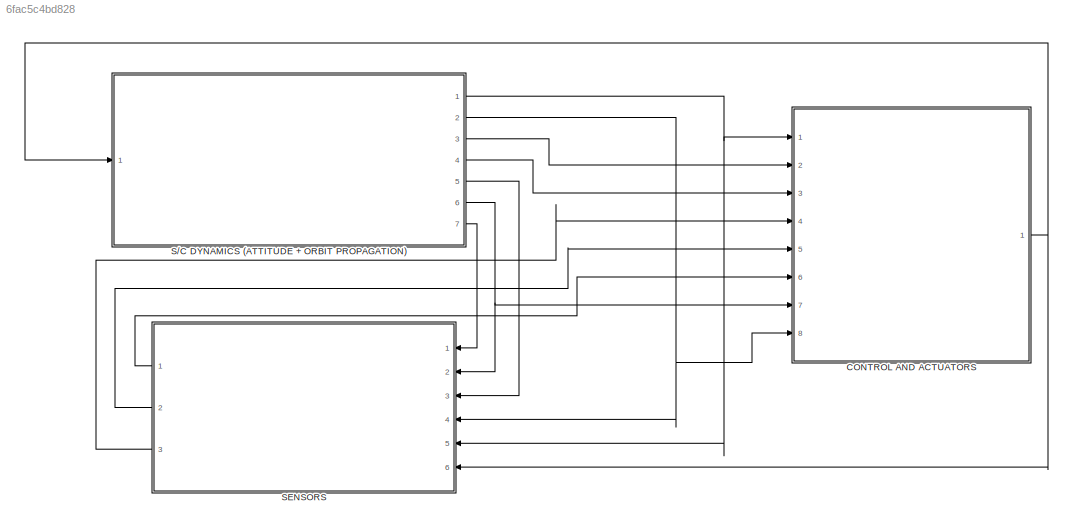
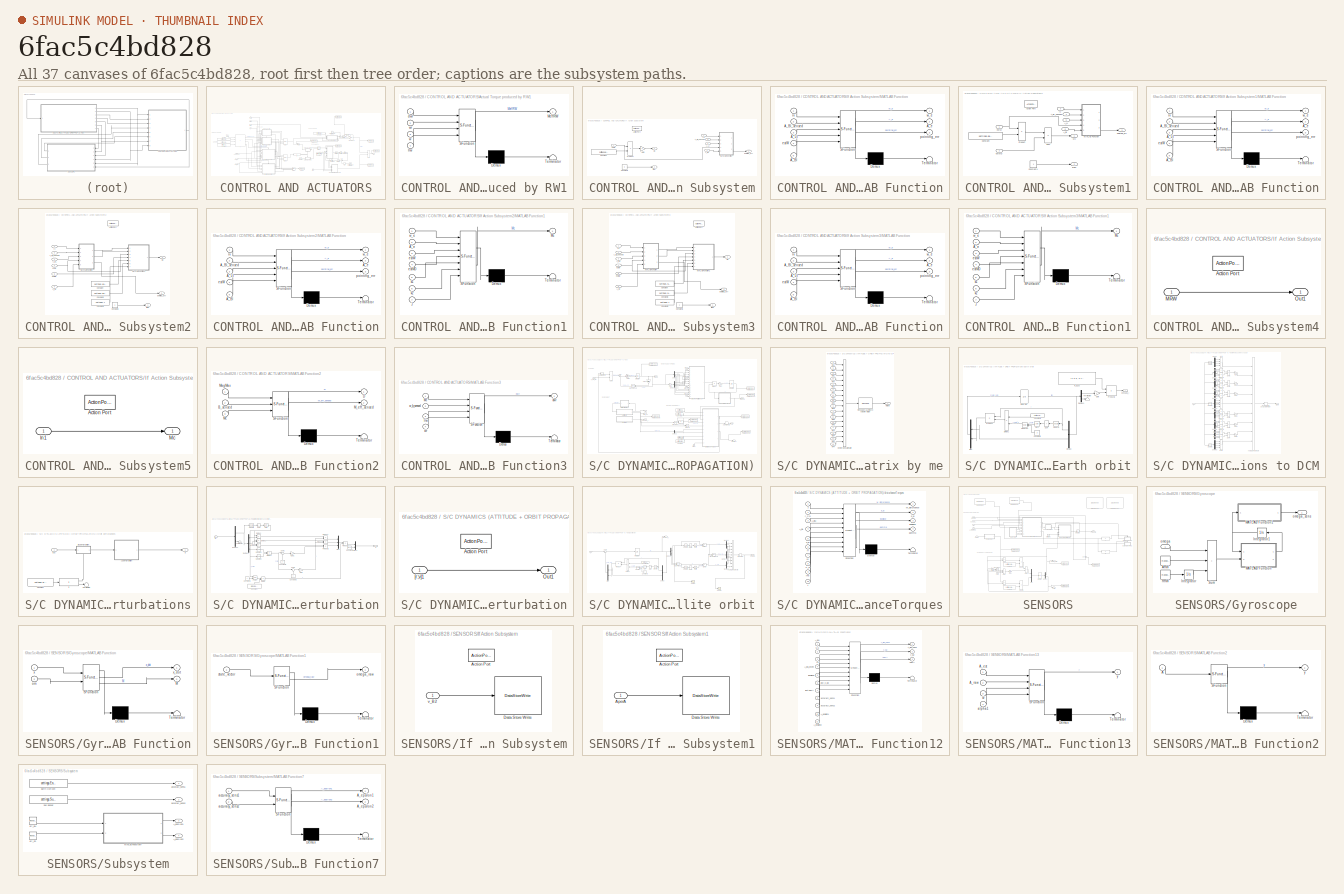
[diagram: thumbnail index - all 37 canvases of the model, root first then tree order]
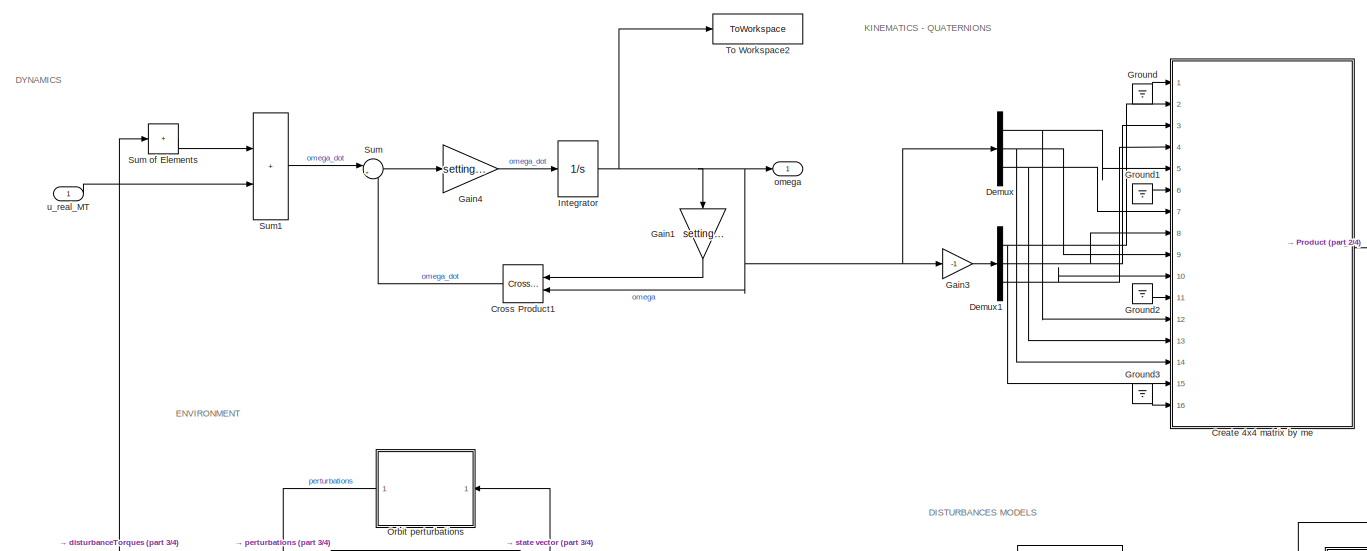
[diagram: S/C DYNAMICS (ATTITUDE + ORBIT PROPAGATION) - part 1/4, top center region]
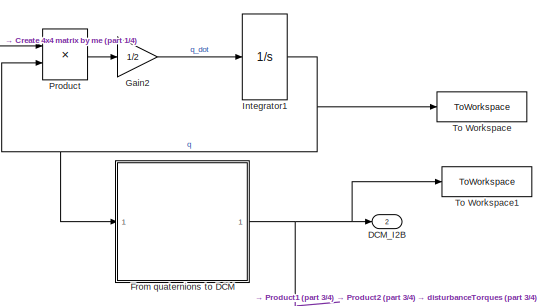
[diagram: S/C DYNAMICS (ATTITUDE + ORBIT PROPAGATION) - part 2/4, middle right region]
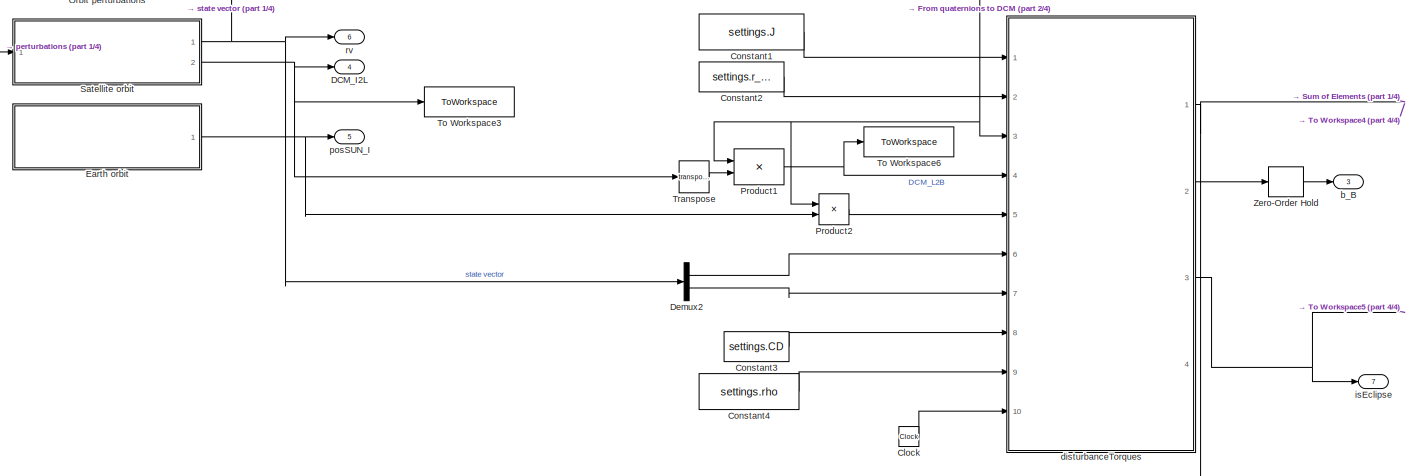
[diagram: S/C DYNAMICS (ATTITUDE + ORBIT PROPAGATION) - part 3/4, bottom center region]
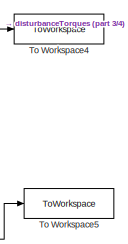
[diagram: S/C DYNAMICS (ATTITUDE + ORBIT PROPAGATION) - part 4/4, bottom right region]
MODEL slx_6fac5c4bd828
KIND model
CONFIG AbsTol = 1e-6
CONFIG EnableMultiTasking = off
CONFIG FixedStep = 0.1
CONFIG MaxStep = auto
CONFIG MinStep = auto
CONFIG RelTol = 1e-6
CONFIG SampleTimeConstraint = Unconstrained
CONFIG Solver = ode23s
CONFIG SolverName = ode23s
CONFIG StartTime = 0.0
CONFIG StopTime = settings.Tsim
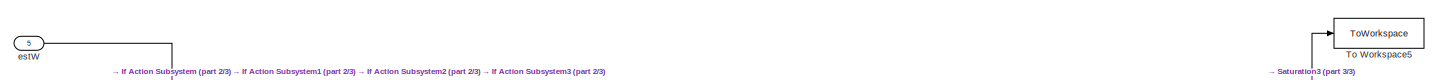
[diagram: CONTROL AND ACTUATORS - part 1/3, top center region]
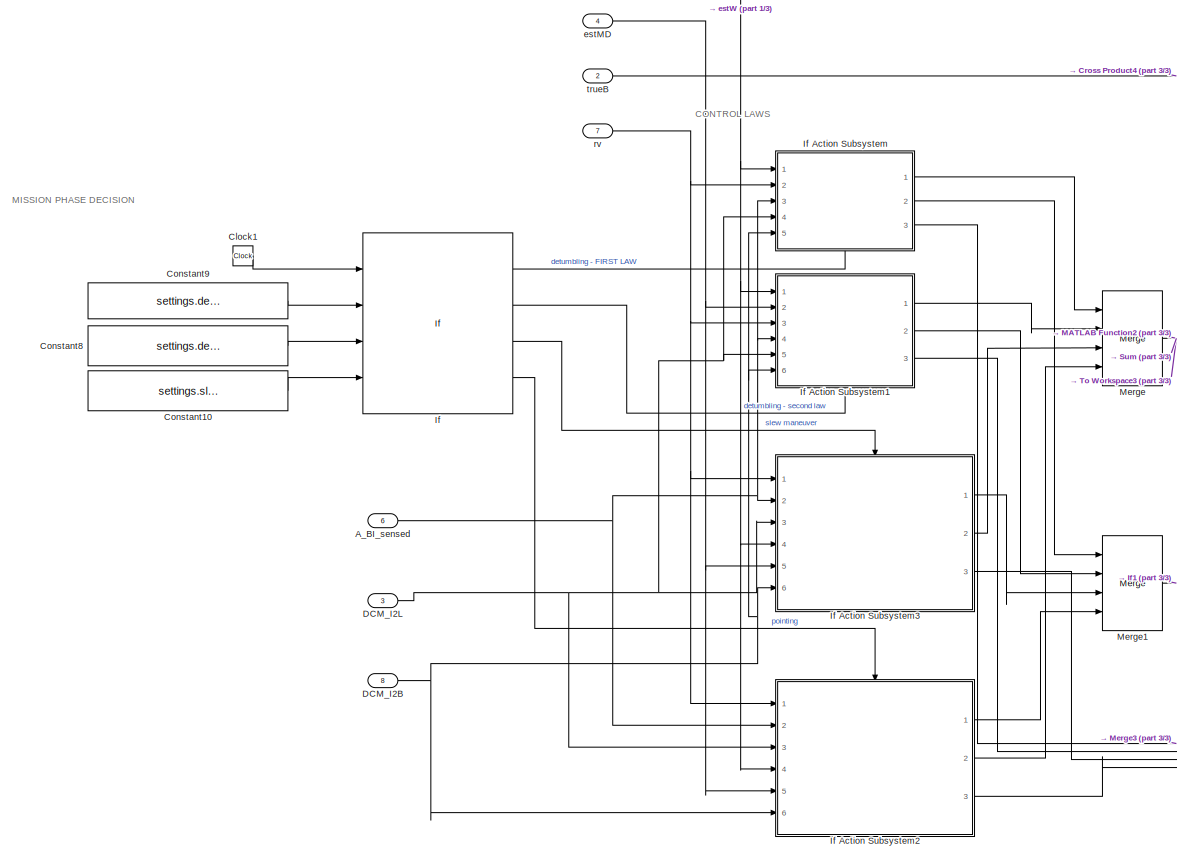
[diagram: CONTROL AND ACTUATORS - part 2/3, left side, full height]
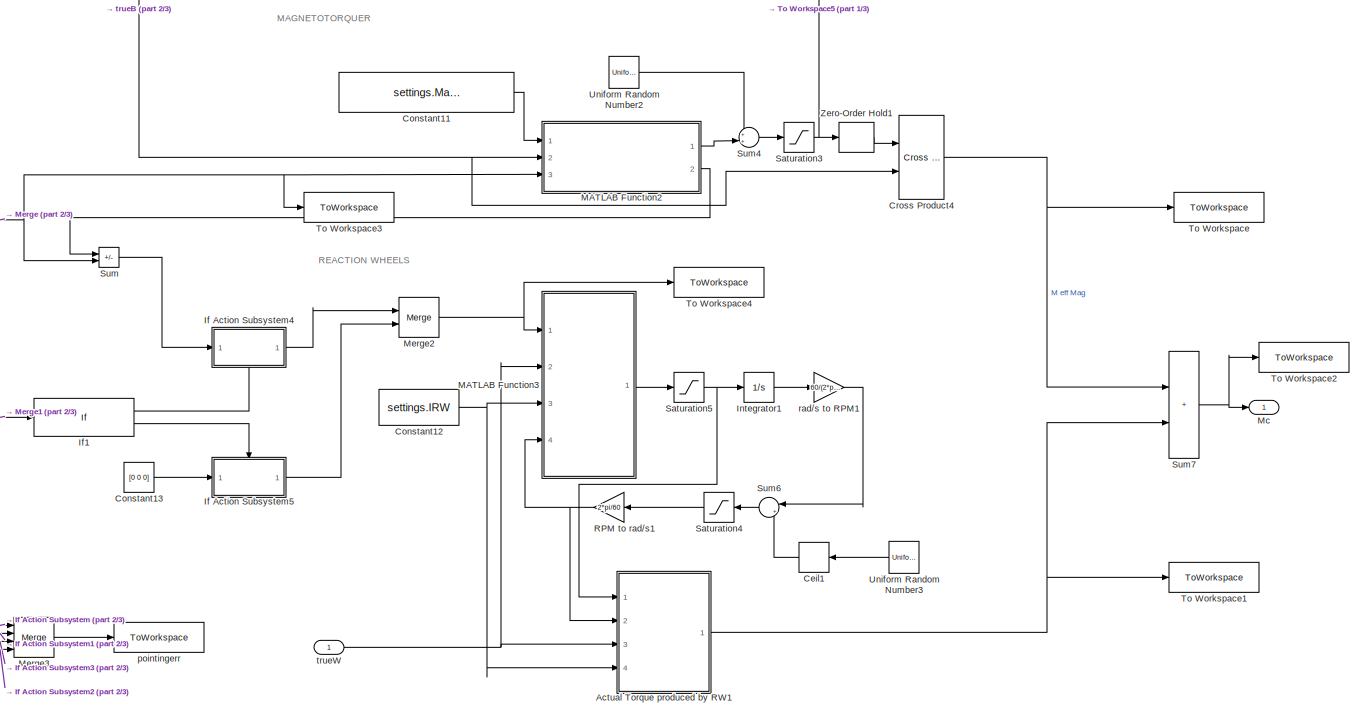
[diagram: CONTROL AND ACTUATORS - part 3/3, right side, full height]
BLOCK [SubSystem] CONTROL AND ACTUATORS
  Ports = [8, 1]
  RequestExecContextInheritance = off
BLOCK [Inport] CONTROL AND ACTUATORS/A_BI_sensed
  Port = 6
BLOCK [SubSystem] CONTROL AND ACTUATORS/Actual Torque produced by RW1
  ErrorFcn = Stateflow.Translate.translate
  PermitHierarchicalResolution = ExplicitOnly
  Ports = [4, 1]
  RequestExecContextInheritance = off
  SFBlockType = MATLAB Function
  TreatAsAtomicUnit = on
BLOCK [Demux] CONTROL AND ACTUATORS/Actual Torque produced by RW1/ Demux 
  Outputs = 1
  Ports = [1, 1]
BLOCK [S-Function] CONTROL AND ACTUATORS/Actual Torque produced by RW1/ SFunction 
  EnableBusSupport = on
  FunctionName = sf_sfun
  PortCounts = [4 2]
  Ports = [4, 2]
  SFcnIsStateOwnerBlock = off
  SFunctionDeploymentMode = off
  Tag = Stateflow S-Function 12
BLOCK [Terminator] CONTROL AND ACTUATORS/Actual Torque produced by RW1/ Terminator 
BLOCK [Inport] CONTROL AND ACTUATORS/Actual Torque produced by RW1/Irw
  Port = 4
BLOCK [Outport] CONTROL AND ACTUATORS/Actual Torque produced by RW1/MeffRW
BLOCK [Inport] CONTROL AND ACTUATORS/Actual Torque produced by RW1/dwr
BLOCK [Inport] CONTROL AND ACTUATORS/Actual Torque produced by RW1/w
  Port = 3
BLOCK [Inport] CONTROL AND ACTUATORS/Actual Torque produced by RW1/wr
  Port = 2
BLOCK [Rounding] CONTROL AND ACTUATORS/Ceil1
  NameLocation = top
  Operator = ceil
BLOCK [Clock] CONTROL AND ACTUATORS/Clock1
BLOCK [Constant] CONTROL AND ACTUATORS/Constant10
  Value = settings.slewManeuverMaxTime
BLOCK [Constant] CONTROL AND ACTUATORS/Constant11
  Value = settings.MagnetoTorquerMaxDipole
BLOCK [Constant] CONTROL AND ACTUATORS/Constant12
  Value = settings.IRW
BLOCK [Constant] CONTROL AND ACTUATORS/Constant13
  Value = [0 0 0]
BLOCK [Constant] CONTROL AND ACTUATORS/Constant8
  Value = settings.detumblingDetumblingMaxTime
BLOCK [Constant] CONTROL AND ACTUATORS/Constant9
  Value = settings.detumblingOnlyMagnMaxTime
BLOCK [Reference] CONTROL AND ACTUATORS/Cross Product4  REF=vrlib/Utilities/Cross Product
  Ports = [2, 1]
  SourceBlock = vrlib/Utilities/Cross Product
  SourceProductBaseCode = SL
  SourceType = Cross Product
BLOCK [Inport] CONTROL AND ACTUATORS/DCM_I2B
  Port = 8
BLOCK [Inport] CONTROL AND ACTUATORS/DCM_I2L
  Port = 3
BLOCK [If] CONTROL AND ACTUATORS/If
  ElseIfExpressions = u1 <= u3 & u1 > u2, u1 <= u4 & u1 > u3
  IfExpression = u1 <= u2
  NumInputs = 4
  Ports = [4, 4]
BLOCK [SubSystem] CONTROL AND ACTUATORS/If Action Subsystem
  NameLocation = top
  Ports = [5, 3, 0, 0, 0, 0, 0, 1]
  RequestExecContextInheritance = off
  TreatAsAtomicUnit = on
BLOCK [Inport] CONTROL AND ACTUATORS/If Action Subsystem/A_BI
  Port = 5
BLOCK [Inport] CONTROL AND ACTUATORS/If Action Subsystem/A_BI_sensed
  Port = 3
BLOCK [Inport] CONTROL AND ACTUATORS/If Action Subsystem/A_LI
  Port = 4
BLOCK [ActionPort] CONTROL AND ACTUATORS/If Action Subsystem/Action Port
  ActionPortLabel = if(u1 <= u2)
BLOCK [Constant] CONTROL AND ACTUATORS/If Action Subsystem/Constant
  Value = settings.detumblingkb
BLOCK [Constant] CONTROL AND ACTUATORS/If Action Subsystem/Constant1
  Value = 0
BLOCK [Gain] CONTROL AND ACTUATORS/If Action Subsystem/Gain
  Gain = -1
BLOCK [SubSystem] CONTROL AND ACTUATORS/If Action Subsystem/MATLAB Function
  ErrorFcn = Stateflow.Translate.translate
  PermitHierarchicalResolution = ExplicitOnly
  Ports = [5, 3]
  RequestExecContextInheritance = off
  SFBlockType = MATLAB Function
  TreatAsAtomicUnit = on
BLOCK [Demux] CONTROL AND ACTUATORS/If Action Subsystem/MATLAB Function/ Demux 
  Outputs = 1
  Ports = [1, 1]
BLOCK [S-Function] CONTROL AND ACTUATORS/If Action Subsystem/MATLAB Function/ SFunction 
  EnableBusSupport = on
  FunctionName = sf_sfun
  PortCounts = [5 4]
  Ports = [5, 4]
  SFcnIsStateOwnerBlock = off
  SFunctionDeploymentMode = off
  Tag = Stateflow S-Function 8
BLOCK [Terminator] CONTROL AND ACTUATORS/If Action Subsystem/MATLAB Function/ Terminator 
BLOCK [Inport] CONTROL AND ACTUATORS/If Action Subsystem/MATLAB Function/A_BI
  Port = 5
BLOCK [Inport] CONTROL AND ACTUATORS/If Action Subsystem/MATLAB Function/A_BI_sensed
  Port = 2
BLOCK [Inport] CONTROL AND ACTUATORS/If Action Subsystem/MATLAB Function/A_LI
  Port = 3
BLOCK [Outport] CONTROL AND ACTUATORS/If Action Subsystem/MATLAB Function/A_e
  Port = 2
BLOCK [Inport] CONTROL AND ACTUATORS/If Action Subsystem/MATLAB Function/estW
  Port = 4
BLOCK [Outport] CONTROL AND ACTUATORS/If Action Subsystem/MATLAB Function/pointing_err
  Port = 3
BLOCK [Inport] CONTROL AND ACTUATORS/If Action Subsystem/MATLAB Function/rv
BLOCK [Outport] CONTROL AND ACTUATORS/If Action Subsystem/MATLAB Function/w_e
BLOCK [Outport] CONTROL AND ACTUATORS/If Action Subsystem/Mc
BLOCK [Product] CONTROL AND ACTUATORS/If Action Subsystem/Product
  Ports = [2, 1]
BLOCK [Inport] CONTROL AND ACTUATORS/If Action Subsystem/estW
BLOCK [Outport] CONTROL AND ACTUATORS/If Action Subsystem/ifRW
  Port = 2
BLOCK [Outport] CONTROL AND ACTUATORS/If Action Subsystem/pointing_err
  Port = 3
BLOCK [Inport] CONTROL AND ACTUATORS/If Action Subsystem/rv
  Port = 2
BLOCK [SubSystem] CONTROL AND ACTUATORS/If Action Subsystem1
  NameLocation = top
  Ports = [6, 3, 0, 0, 0, 0, 0, 1]
  RequestExecContextInheritance = off
  TreatAsAtomicUnit = on
BLOCK [Inport] CONTROL AND ACTUATORS/If Action Subsystem1/A_BI
  Port = 6
BLOCK [Inport] CONTROL AND ACTUATORS/If Action Subsystem1/A_BI_sensed
  Port = 4
BLOCK [Inport] CONTROL AND ACTUATORS/If Action Subsystem1/A_LI
  Port = 5
BLOCK [ActionPort] CONTROL AND ACTUATORS/If Action Subsystem1/Action Port
  ActionPortLabel = elseif(u1 <= u3 & u1 > u2)
BLOCK [Constant] CONTROL AND ACTUATORS/If Action Subsystem1/Constant
  Value = settings.detumblingkp
BLOCK [Constant] CONTROL AND ACTUATORS/If Action Subsystem1/Constant1
BLOCK [SubSystem] CONTROL AND ACTUATORS/If Action Subsystem1/MATLAB Function
  ErrorFcn = Stateflow.Translate.translate
  PermitHierarchicalResolution = ExplicitOnly
  Ports = [5, 3]
  RequestExecContextInheritance = off
  SFBlockType = MATLAB Function
  TreatAsAtomicUnit = on
BLOCK [Demux] CONTROL AND ACTUATORS/If Action Subsystem1/MATLAB Function/ Demux 
  Outputs = 1
  Ports = [1, 1]
BLOCK [S-Function] CONTROL AND ACTUATORS/If Action Subsystem1/MATLAB Function/ SFunction 
  EnableBusSupport = on
  FunctionName = sf_sfun
  PortCounts = [5 4]
  Ports = [5, 4]
  SFcnIsStateOwnerBlock = off
  SFunctionDeploymentMode = off
  Tag = Stateflow S-Function 6
BLOCK [Terminator] CONTROL AND ACTUATORS/If Action Subsystem1/MATLAB Function/ Terminator 
BLOCK [Inport] CONTROL AND ACTUATORS/If Action Subsystem1/MATLAB Function/A_BI
  Port = 5
BLOCK [Inport] CONTROL AND ACTUATORS/If Action Subsystem1/MATLAB Function/A_BI_sensed
  Port = 2
BLOCK [Inport] CONTROL AND ACTUATORS/If Action Subsystem1/MATLAB Function/A_LI
  Port = 3
BLOCK [Outport] CONTROL AND ACTUATORS/If Action Subsystem1/MATLAB Function/A_e
  Port = 2
BLOCK [Inport] CONTROL AND ACTUATORS/If Action Subsystem1/MATLAB Function/estW
  Port = 4
BLOCK [Outport] CONTROL AND ACTUATORS/If Action Subsystem1/MATLAB Function/pointing_err
  Port = 3
BLOCK [Inport] CONTROL AND ACTUATORS/If Action Subsystem1/MATLAB Function/rv
BLOCK [Outport] CONTROL AND ACTUATORS/If Action Subsystem1/MATLAB Function/w_e
BLOCK [Outport] CONTROL AND ACTUATORS/If Action Subsystem1/Mc
BLOCK [Product] CONTROL AND ACTUATORS/If Action Subsystem1/Product
  Ports = [2, 1]
BLOCK [Sum] CONTROL AND ACTUATORS/If Action Subsystem1/Sum
  IconShape = rectangular
  Inputs = --
  Ports = [2, 1]
BLOCK [Inport] CONTROL AND ACTUATORS/If Action Subsystem1/estMD
  Port = 2
BLOCK [Inport] CONTROL AND ACTUATORS/If Action Subsystem1/estW
BLOCK [Outport] CONTROL AND ACTUATORS/If Action Subsystem1/ifRW
  Port = 2
BLOCK [Outport] CONTROL AND ACTUATORS/If Action Subsystem1/pointing_err
  Port = 3
BLOCK [Inport] CONTROL AND ACTUATORS/If Action Subsystem1/rv
  Port = 3
BLOCK [SubSystem] CONTROL AND ACTUATORS/If Action Subsystem2
  Ports = [6, 3, 0, 0, 0, 0, 0, 1]
  RequestExecContextInheritance = off
  TreatAsAtomicUnit = on
BLOCK [Inport] CONTROL AND ACTUATORS/If Action Subsystem2/A_BI
  Port = 6
BLOCK [Inport] CONTROL AND ACTUATORS/If Action Subsystem2/A_BI_sensed
  Port = 2
BLOCK [Inport] CONTROL AND ACTUATORS/If Action Subsystem2/A_I2L
  Port = 3
BLOCK [ActionPort] CONTROL AND ACTUATORS/If Action Subsystem2/Action Port
  ActionPortLabel = else
BLOCK [Constant] CONTROL AND ACTUATORS/If Action Subsystem2/Constant
  Value = settings.earthPointk1
BLOCK [Constant] CONTROL AND ACTUATORS/If Action Subsystem2/Constant1
BLOCK [Constant] CONTROL AND ACTUATORS/If Action Subsystem2/Constant2
  Value = settings.earthPointk2
BLOCK [Constant] CONTROL AND ACTUATORS/If Action Subsystem2/Constant3
  Value = settings.J
BLOCK [SubSystem] CONTROL AND ACTUATORS/If Action Subsystem2/MATLAB Function
  ErrorFcn = Stateflow.Translate.translate
  PermitHierarchicalResolution = ExplicitOnly
  Ports = [5, 3]
  RequestExecContextInheritance = off
  SFBlockType = MATLAB Function
  TreatAsAtomicUnit = on
BLOCK [Demux] CONTROL AND ACTUATORS/If Action Subsystem2/MATLAB Function/ Demux 
  Outputs = 1
  Ports = [1, 1]
BLOCK [S-Function] CONTROL AND ACTUATORS/If Action Subsystem2/MATLAB Function/ SFunction 
  EnableBusSupport = on
  FunctionName = sf_sfun
  PortCounts = [5 4]
  Ports = [5, 4]
  SFcnIsStateOwnerBlock = off
  SFunctionDeploymentMode = off
  Tag = Stateflow S-Function 2
BLOCK [Terminator] CONTROL AND ACTUATORS/If Action Subsystem2/MATLAB Function/ Terminator 
BLOCK [Inport] CONTROL AND ACTUATORS/If Action Subsystem2/MATLAB Function/A_BI
  Port = 5
BLOCK [Inport] CONTROL AND ACTUATORS/If Action Subsystem2/MATLAB Function/A_BI_sensed
  Port = 2
BLOCK [Inport] CONTROL AND ACTUATORS/If Action Subsystem2/MATLAB Function/A_LI
  Port = 3
BLOCK [Outport] CONTROL AND ACTUATORS/If Action Subsystem2/MATLAB Function/A_e
  Port = 2
BLOCK [Inport] CONTROL AND ACTUATORS/If Action Subsystem2/MATLAB Function/estW
  Port = 4
BLOCK [Outport] CONTROL AND ACTUATORS/If Action Subsystem2/MATLAB Function/pointing_err
  Port = 3
BLOCK [Inport] CONTROL AND ACTUATORS/If Action Subsystem2/MATLAB Function/rv
BLOCK [Outport] CONTROL AND ACTUATORS/If Action Subsystem2/MATLAB Function/w_e
BLOCK [SubSystem] CONTROL AND ACTUATORS/If Action Subsystem2/MATLAB Function1
  ErrorFcn = Stateflow.Translate.translate
  PermitHierarchicalResolution = ExplicitOnly
  Ports = [7, 1]
  RequestExecContextInheritance = off
  SFBlockType = MATLAB Function
  TreatAsAtomicUnit = on
BLOCK [Demux] CONTROL AND ACTUATORS/If Action Subsystem2/MATLAB Function1/ Demux 
  Outputs = 1
  Ports = [1, 1]
BLOCK [S-Function] CONTROL AND ACTUATORS/If Action Subsystem2/MATLAB Function1/ SFunction 
  EnableBusSupport = on
  FunctionName = sf_sfun
  PortCounts = [7 2]
  Ports = [7, 2]
  SFcnIsStateOwnerBlock = off
  SFunctionDeploymentMode = off
  Tag = Stateflow S-Function 3
BLOCK [Terminator] CONTROL AND ACTUATORS/If Action Subsystem2/MATLAB Function1/ Terminator 
BLOCK [Inport] CONTROL AND ACTUATORS/If Action Subsystem2/MATLAB Function1/A_e
  Port = 2
BLOCK [Inport] CONTROL AND ACTUATORS/If Action Subsystem2/MATLAB Function1/J
  Port = 7
BLOCK [Outport] CONTROL AND ACTUATORS/If Action Subsystem2/MATLAB Function1/Mc
BLOCK [Inport] CONTROL AND ACTUATORS/If Action Subsystem2/MATLAB Function1/estMD
  Port = 4
BLOCK [Inport] CONTROL AND ACTUATORS/If Action Subsystem2/MATLAB Function1/estW
  Port = 3
BLOCK [Inport] CONTROL AND ACTUATORS/If Action Subsystem2/MATLAB Function1/k1
  Port = 5
BLOCK [Inport] CONTROL AND ACTUATORS/If Action Subsystem2/MATLAB Function1/k2
  Port = 6
BLOCK [Inport] CONTROL AND ACTUATORS/If Action Subsystem2/MATLAB Function1/w_e
BLOCK [Outport] CONTROL AND ACTUATORS/If Action Subsystem2/Mc
  Port = 2
BLOCK [Inport] CONTROL AND ACTUATORS/If Action Subsystem2/estMD
  Port = 5
BLOCK [Inport] CONTROL AND ACTUATORS/If Action Subsystem2/estW
  Port = 4
BLOCK [Outport] CONTROL AND ACTUATORS/If Action Subsystem2/ifRW
BLOCK [Outport] CONTROL AND ACTUATORS/If Action Subsystem2/pointing_err
  Port = 3
BLOCK [Inport] CONTROL AND ACTUATORS/If Action Subsystem2/rv
BLOCK [SubSystem] CONTROL AND ACTUATORS/If Action Subsystem3
  Ports = [6, 3, 0, 0, 0, 0, 0, 1]
  RequestExecContextInheritance = off
  TreatAsAtomicUnit = on
BLOCK [Inport] CONTROL AND ACTUATORS/If Action Subsystem3/A_BI
  Port = 6
BLOCK [Inport] CONTROL AND ACTUATORS/If Action Subsystem3/A_BI_sensed
  Port = 2
BLOCK [Inport] CONTROL AND ACTUATORS/If Action Subsystem3/A_I2L
  Port = 3
BLOCK [ActionPort] CONTROL AND ACTUATORS/If Action Subsystem3/Action Port
  ActionPortLabel = elseif( u1 <= u4 & u1 > u3)
BLOCK [Constant] CONTROL AND ACTUATORS/If Action Subsystem3/Constant
  Value = settings.slewMank1
BLOCK [Constant] CONTROL AND ACTUATORS/If Action Subsystem3/Constant1
BLOCK [Constant] CONTROL AND ACTUATORS/If Action Subsystem3/Constant2
  Value = settings.slewMank2
BLOCK [Constant] CONTROL AND ACTUATORS/If Action Subsystem3/Constant3
  Value = settings.J
BLOCK [SubSystem] CONTROL AND ACTUATORS/If Action Subsystem3/MATLAB Function
  ErrorFcn = Stateflow.Translate.translate
  PermitHierarchicalResolution = ExplicitOnly
  Ports = [5, 3]
  RequestExecContextInheritance = off
  SFBlockType = MATLAB Function
  TreatAsAtomicUnit = on
BLOCK [Demux] CONTROL AND ACTUATORS/If Action Subsystem3/MATLAB Function/ Demux 
  Outputs = 1
  Ports = [1, 1]
BLOCK [S-Function] CONTROL AND ACTUATORS/If Action Subsystem3/MATLAB Function/ SFunction 
  EnableBusSupport = on
  FunctionName = sf_sfun
  PortCounts = [5 4]
  Ports = [5, 4]
  SFcnIsStateOwnerBlock = off
  SFunctionDeploymentMode = off
  Tag = Stateflow S-Function 10
BLOCK [Terminator] CONTROL AND ACTUATORS/If Action Subsystem3/MATLAB Function/ Terminator 
BLOCK [Inport] CONTROL AND ACTUATORS/If Action Subsystem3/MATLAB Function/A_BI
  Port = 5
BLOCK [Inport] CONTROL AND ACTUATORS/If Action Subsystem3/MATLAB Function/A_BI_sensed
  Port = 2
BLOCK [Inport] CONTROL AND ACTUATORS/If Action Subsystem3/MATLAB Function/A_LI
  Port = 3
BLOCK [Outport] CONTROL AND ACTUATORS/If Action Subsystem3/MATLAB Function/A_e
  Port = 2
BLOCK [Inport] CONTROL AND ACTUATORS/If Action Subsystem3/MATLAB Function/estW
  Port = 4
BLOCK [Outport] CONTROL AND ACTUATORS/If Action Subsystem3/MATLAB Function/pointing_err
  Port = 3
BLOCK [Inport] CONTROL AND ACTUATORS/If Action Subsystem3/MATLAB Function/rv
BLOCK [Outport] CONTROL AND ACTUATORS/If Action Subsystem3/MATLAB Function/w_e
BLOCK [SubSystem] CONTROL AND ACTUATORS/If Action Subsystem3/MATLAB Function1
  ErrorFcn = Stateflow.Translate.translate
  PermitHierarchicalResolution = ExplicitOnly
  Ports = [7, 1]
  RequestExecContextInheritance = off
  SFBlockType = MATLAB Function
  TreatAsAtomicUnit = on
BLOCK [Demux] CONTROL AND ACTUATORS/If Action Subsystem3/MATLAB Function1/ Demux 
  Outputs = 1
  Ports = [1, 1]
BLOCK [S-Function] CONTROL AND ACTUATORS/If Action Subsystem3/MATLAB Function1/ SFunction 
  EnableBusSupport = on
  FunctionName = sf_sfun
  PortCounts = [7 2]
  Ports = [7, 2]
  SFcnIsStateOwnerBlock = off
  SFunctionDeploymentMode = off
  Tag = Stateflow S-Function 11
BLOCK [Terminator] CONTROL AND ACTUATORS/If Action Subsystem3/MATLAB Function1/ Terminator 
BLOCK [Inport] CONTROL AND ACTUATORS/If Action Subsystem3/MATLAB Function1/A_e
  Port = 2
BLOCK [Inport] CONTROL AND ACTUATORS/If Action Subsystem3/MATLAB Function1/J
  Port = 7
BLOCK [Outport] CONTROL AND ACTUATORS/If Action Subsystem3/MATLAB Function1/Mc
BLOCK [Inport] CONTROL AND ACTUATORS/If Action Subsystem3/MATLAB Function1/estMD
  Port = 4
BLOCK [Inport] CONTROL AND ACTUATORS/If Action Subsystem3/MATLAB Function1/estW
  Port = 3
BLOCK [Inport] CONTROL AND ACTUATORS/If Action Subsystem3/MATLAB Function1/k1
  Port = 5
BLOCK [Inport] CONTROL AND ACTUATORS/If Action Subsystem3/MATLAB Function1/k2
  Port = 6
BLOCK [Inport] CONTROL AND ACTUATORS/If Action Subsystem3/MATLAB Function1/w_e
BLOCK [Outport] CONTROL AND ACTUATORS/If Action Subsystem3/Mc
  Port = 2
BLOCK [Inport] CONTROL AND ACTUATORS/If Action Subsystem3/estMD
  Port = 5
BLOCK [Inport] CONTROL AND ACTUATORS/If Action Subsystem3/estW
  Port = 4
BLOCK [Outport] CONTROL AND ACTUATORS/If Action Subsystem3/ifRW
BLOCK [Outport] CONTROL AND ACTUATORS/If Action Subsystem3/pointing_err
  Port = 3
BLOCK [Inport] CONTROL AND ACTUATORS/If Action Subsystem3/rv
BLOCK [SubSystem] CONTROL AND ACTUATORS/If Action Subsystem4
  NameLocation = top
  Ports = [1, 1, 0, 0, 0, 0, 0, 1]
  RequestExecContextInheritance = off
  TreatAsAtomicUnit = on
BLOCK [ActionPort] CONTROL AND ACTUATORS/If Action Subsystem4/Action Port
  ActionPortLabel = if(u1 > 0)
BLOCK [Inport] CONTROL AND ACTUATORS/If Action Subsystem4/MRW
BLOCK [Outport] CONTROL AND ACTUATORS/If Action Subsystem4/Out1
BLOCK [SubSystem] CONTROL AND ACTUATORS/If Action Subsystem5
  Ports = [1, 1, 0, 0, 0, 0, 0, 1]
  RequestExecContextInheritance = off
  TreatAsAtomicUnit = on
BLOCK [ActionPort] CONTROL AND ACTUATORS/If Action Subsystem5/Action Port
  ActionPortLabel = else
BLOCK [Inport] CONTROL AND ACTUATORS/If Action Subsystem5/In1
BLOCK [Outport] CONTROL AND ACTUATORS/If Action Subsystem5/Mc
BLOCK [If] CONTROL AND ACTUATORS/If1
  Ports = [1, 2]
BLOCK [Integrator] CONTROL AND ACTUATORS/Integrator1
  InitialCondition = [0;0;0]
  NameLocation = top
  Ports = [1, 1]
BLOCK [SubSystem] CONTROL AND ACTUATORS/MATLAB Function2
  ErrorFcn = Stateflow.Translate.translate
  PermitHierarchicalResolution = ExplicitOnly
  Ports = [3, 2]
  RequestExecContextInheritance = off
  SFBlockType = MATLAB Function
  TreatAsAtomicUnit = on
BLOCK [Demux] CONTROL AND ACTUATORS/MATLAB Function2/ Demux 
  Outputs = 1
  Ports = [1, 1]
BLOCK [S-Function] CONTROL AND ACTUATORS/MATLAB Function2/ SFunction 
  EnableBusSupport = on
  FunctionName = sf_sfun
  PortCounts = [3 3]
  Ports = [3, 3]
  SFcnIsStateOwnerBlock = off
  SFunctionDeploymentMode = off
  Tag = Stateflow S-Function 7
BLOCK [Terminator] CONTROL AND ACTUATORS/MATLAB Function2/ Terminator 
BLOCK [Inport] CONTROL AND ACTUATORS/MATLAB Function2/B_sensed
  Port = 2
BLOCK [Outport] CONTROL AND ACTUATORS/MATLAB Function2/D
BLOCK [Outport] CONTROL AND ACTUATORS/MATLAB Function2/M_eff_sensed
  Port = 2
BLOCK [Inport] CONTROL AND ACTUATORS/MATLAB Function2/MagMax
BLOCK [Inport] CONTROL AND ACTUATORS/MATLAB Function2/Mc
  Port = 3
BLOCK [SubSystem] CONTROL AND ACTUATORS/MATLAB Function3
  ErrorFcn = Stateflow.Translate.translate
  PermitHierarchicalResolution = ExplicitOnly
  Ports = [4, 1]
  RequestExecContextInheritance = off
  SFBlockType = MATLAB Function
  TreatAsAtomicUnit = on
BLOCK [Demux] CONTROL AND ACTUATORS/MATLAB Function3/ Demux 
  Outputs = 1
  Ports = [1, 1]
BLOCK [S-Function] CONTROL AND ACTUATORS/MATLAB Function3/ SFunction 
  EnableBusSupport = on
  FunctionName = sf_sfun
  PortCounts = [4 2]
  Ports = [4, 2]
  SFcnIsStateOwnerBlock = off
  SFunctionDeploymentMode = off
  Tag = Stateflow S-Function 13
BLOCK [Terminator] CONTROL AND ACTUATORS/MATLAB Function3/ Terminator 
BLOCK [Inport] CONTROL AND ACTUATORS/MATLAB Function3/Irw
  Port = 3
BLOCK [Inport] CONTROL AND ACTUATORS/MATLAB Function3/Mc
BLOCK [Outport] CONTROL AND ACTUATORS/MATLAB Function3/dwr
BLOCK [Inport] CONTROL AND ACTUATORS/MATLAB Function3/w_b_sensed
  Port = 2
BLOCK [Inport] CONTROL AND ACTUATORS/MATLAB Function3/wr
  Port = 4
BLOCK [Outport] CONTROL AND ACTUATORS/Mc
BLOCK [Merge] CONTROL AND ACTUATORS/Merge
  Inputs = 4
  Ports = [4, 1]
BLOCK [Merge] CONTROL AND ACTUATORS/Merge1
  Inputs = 4
  Ports = [4, 1]
BLOCK [Merge] CONTROL AND ACTUATORS/Merge2
  Ports = [2, 1]
BLOCK [Merge] CONTROL AND ACTUATORS/Merge3
  Inputs = 4
  Ports = [4, 1]
BLOCK [Gain] CONTROL AND ACTUATORS/RPM to rad//s1
  Gain = 2*pi/60
BLOCK [Saturate] CONTROL AND ACTUATORS/Saturation3
  LowerLimit = -settings.MagnetoTorquerMaxDipole
  UpperLimit = settings.MagnetoTorquerMaxDipole
BLOCK [Saturate] CONTROL AND ACTUATORS/Saturation4
  LinearizeAsGain = off
  LowerLimit = -settings.MaxRPM*[1;1;1]
  UpperLimit = settings.MaxRPM*[1;1;1]
  ZeroCross = off
BLOCK [Saturate] CONTROL AND ACTUATORS/Saturation5
  LowerLimit = -settings.MaxRPM_Rate
  UpperLimit = settings.MaxRPM_Rate
BLOCK [Sum] CONTROL AND ACTUATORS/Sum
  IconShape = rectangular
  Inputs = -+
  Ports = [2, 1]
BLOCK [Sum] CONTROL AND ACTUATORS/Sum4
  Inputs = ++|
  Ports = [2, 1]
BLOCK [Sum] CONTROL AND ACTUATORS/Sum6
  Inputs = |++
  Ports = [2, 1]
BLOCK [Sum] CONTROL AND ACTUATORS/Sum7
  IconShape = rectangular
  Ports = [2, 1]
BLOCK [ToWorkspace] CONTROL AND ACTUATORS/To Workspace
  FixptAsFi = on
  MaxDataPoints = inf
  Ports = [1]
  SampleTime = -1
  SaveFormat = Timeseries
  VariableName = MagnetoM
BLOCK [ToWorkspace] CONTROL AND ACTUATORS/To Workspace1
  FixptAsFi = on
  MaxDataPoints = inf
  Ports = [1]
  SampleTime = -1
  SaveFormat = Timeseries
  VariableName = RWsM
BLOCK [ToWorkspace] CONTROL AND ACTUATORS/To Workspace2
  FixptAsFi = on
  MaxDataPoints = inf
  Ports = [1]
  SampleTime = -1
  SaveFormat = Timeseries
  VariableName = Mtot
BLOCK [ToWorkspace] CONTROL AND ACTUATORS/To Workspace3
  FixptAsFi = on
  MaxDataPoints = inf
  Ports = [1]
  SampleTime = -1
  SaveFormat = Timeseries
  VariableName = Mc_magneto
BLOCK [ToWorkspace] CONTROL AND ACTUATORS/To Workspace4
  FixptAsFi = on
  MaxDataPoints = inf
  Ports = [1]
  SampleTime = -1
  SaveFormat = Timeseries
  VariableName = Mc_RW
BLOCK [ToWorkspace] CONTROL AND ACTUATORS/To Workspace5
  FixptAsFi = on
  MaxDataPoints = inf
  Ports = [1]
  SampleTime = -1
  SaveFormat = Timeseries
  VariableName = Dmagn
BLOCK [UniformRandomNumber] CONTROL AND ACTUATORS/Uniform Random Number2
  Maximum = settings.MagnetoTorquerDipoleError*[1;1;1]
  Minimum = -settings.MagnetoTorquerDipoleError*[1;1;1]
  SampleTime = 1/settings.MagnetoTorquerSampleRate
  Seed = 456156
BLOCK [UniformRandomNumber] CONTROL AND ACTUATORS/Uniform Random Number3
  Maximum = settings.RPMAccuracy*[1;1;1]
  Minimum = -settings.RPMAccuracy*[1;1;1]
  NameLocation = top
  SampleTime = 1/settings.RW_sr
  Seed = 561651
BLOCK [ZeroOrderHold] CONTROL AND ACTUATORS/Zero-Order Hold1
  SampleTime = 1/settings.MagnetoTorquerSampleRate
BLOCK [Inport] CONTROL AND ACTUATORS/estMD
  Port = 4
BLOCK [Inport] CONTROL AND ACTUATORS/estW
  Port = 5
BLOCK [ToWorkspace] CONTROL AND ACTUATORS/pointingerr
  FixptAsFi = on
  MaxDataPoints = inf
  Ports = [1]
  SampleTime = -1
  SaveFormat = Timeseries
  VariableName = pointing_err
BLOCK [Gain] CONTROL AND ACTUATORS/rad//s to RPM1
  Gain = 60/(2*pi)
  NameLocation = top
BLOCK [Inport] CONTROL AND ACTUATORS/rv
  Port = 7
BLOCK [Inport] CONTROL AND ACTUATORS/trueB
  Port = 2
BLOCK [Inport] CONTROL AND ACTUATORS/trueW
BLOCK [SubSystem] S//C DYNAMICS (ATTITUDE + ORBIT PROPAGATION)
  Ports = [1, 7]
  RequestExecContextInheritance = off
BLOCK [Clock] S//C DYNAMICS (ATTITUDE + ORBIT PROPAGATION)/Clock
BLOCK [Constant] S//C DYNAMICS (ATTITUDE + ORBIT PROPAGATION)/Constant1
  Value = settings.J
BLOCK [Constant] S//C DYNAMICS (ATTITUDE + ORBIT PROPAGATION)/Constant2
  Value = settings.r_CG
BLOCK [Constant] S//C DYNAMICS (ATTITUDE + ORBIT PROPAGATION)/Constant3
  Value = settings.CD
BLOCK [Constant] S//C DYNAMICS (ATTITUDE + ORBIT PROPAGATION)/Constant4
  Value = settings.rho
BLOCK [SubSystem] S//C DYNAMICS (ATTITUDE + ORBIT PROPAGATION)/Create 4x4 matrix by me
  Ports = [16, 1]
  RequestExecContextInheritance = off
BLOCK [Inport] S//C DYNAMICS (ATTITUDE + ORBIT PROPAGATION)/Create 4x4 matrix by me/M11
BLOCK [Inport] S//C DYNAMICS (ATTITUDE + ORBIT PROPAGATION)/Create 4x4 matrix by me/M12
  Port = 2
BLOCK [Inport] S//C DYNAMICS (ATTITUDE + ORBIT PROPAGATION)/Create 4x4 matrix by me/M13
  Port = 3
BLOCK [Inport] S//C DYNAMICS (ATTITUDE + ORBIT PROPAGATION)/Create 4x4 matrix by me/M14
  Port = 4
BLOCK [Inport] S//C DYNAMICS (ATTITUDE + ORBIT PROPAGATION)/Create 4x4 matrix by me/M21
  Port = 5
BLOCK [Inport] S//C DYNAMICS (ATTITUDE + ORBIT PROPAGATION)/Create 4x4 matrix by me/M22
  Port = 6
BLOCK [Inport] S//C DYNAMICS (ATTITUDE + ORBIT PROPAGATION)/Create 4x4 matrix by me/M23
  Port = 7
BLOCK [Inport] S//C DYNAMICS (ATTITUDE + ORBIT PROPAGATION)/Create 4x4 matrix by me/M24
  Port = 8
BLOCK [Inport] S//C DYNAMICS (ATTITUDE + ORBIT PROPAGATION)/Create 4x4 matrix by me/M31
  Port = 9
BLOCK [Inport] S//C DYNAMICS (ATTITUDE + ORBIT PROPAGATION)/Create 4x4 matrix by me/M32
  Port = 10
BLOCK [Inport] S//C DYNAMICS (ATTITUDE + ORBIT PROPAGATION)/Create 4x4 matrix by me/M33
  Port = 11
BLOCK [Inport] S//C DYNAMICS (ATTITUDE + ORBIT PROPAGATION)/Create 4x4 matrix by me/M34
  Port = 12
BLOCK [Inport] S//C DYNAMICS (ATTITUDE + ORBIT PROPAGATION)/Create 4x4 matrix by me/M41
  Port = 13
BLOCK [Inport] S//C DYNAMICS (ATTITUDE + ORBIT PROPAGATION)/Create 4x4 matrix by me/M42
  Port = 14
BLOCK [Inport] S//C DYNAMICS (ATTITUDE + ORBIT PROPAGATION)/Create 4x4 matrix by me/M43
  Port = 15
BLOCK [Inport] S//C DYNAMICS (ATTITUDE + ORBIT PROPAGATION)/Create 4x4 matrix by me/M44
  Port = 16
BLOCK [Reshape] S//C DYNAMICS (ATTITUDE + ORBIT PROPAGATION)/Create 4x4 matrix by me/Reshape (16) to [4x4] column-major
  OutputDimensionality = Customize
  OutputDimensions = [4,4]
  Ports = [1, 1]
BLOCK [Concatenate] S//C DYNAMICS (ATTITUDE + ORBIT PROPAGATION)/Create 4x4 matrix by me/Vector Concatenate
  NumInputs = 16
  Ports = [16, 1]
BLOCK [Outport] S//C DYNAMICS (ATTITUDE + ORBIT PROPAGATION)/Create 4x4 matrix by me/matrix
BLOCK [Reference] S//C DYNAMICS (ATTITUDE + ORBIT PROPAGATION)/Cross Product1  REF=vrlib/Utilities/Cross Product
  NameLocation = top
  Ports = [2, 1]
  SourceBlock = vrlib/Utilities/Cross Product
  SourceProductBaseCode = SL
  SourceType = Cross Product
BLOCK [Outport] S//C DYNAMICS (ATTITUDE + ORBIT PROPAGATION)/DCM_I2B
  Port = 2
BLOCK [Outport] S//C DYNAMICS (ATTITUDE + ORBIT PROPAGATION)/DCM_I2L
  Port = 4
BLOCK [Demux] S//C DYNAMICS (ATTITUDE + ORBIT PROPAGATION)/Demux
  Outputs = 3
  Ports = [1, 3]
BLOCK [Demux] S//C DYNAMICS (ATTITUDE + ORBIT PROPAGATION)/Demux1
  Outputs = 3
  Ports = [1, 3]
BLOCK [Demux] S//C DYNAMICS (ATTITUDE + ORBIT PROPAGATION)/Demux2
  Outputs = 2
  Ports = [1, 2]
BLOCK [SubSystem] S//C DYNAMICS (ATTITUDE + ORBIT PROPAGATION)/Earth orbit
  Ports = [0, 1]
  RequestExecContextInheritance = off
BLOCK [Constant] S//C DYNAMICS (ATTITUDE + ORBIT PROPAGATION)/Earth orbit/Constant2
  NameLocation = top
  Value = -settings.muS
BLOCK [Constant] S//C DYNAMICS (ATTITUDE + ORBIT PROPAGATION)/Earth orbit/Constant3
  NameLocation = top
  Value = 3
BLOCK [Demux] S//C DYNAMICS (ATTITUDE + ORBIT PROPAGATION)/Earth orbit/Demux
  NameLocation = top
  Outputs = 2
  Ports = [1, 2]
BLOCK [Demux] S//C DYNAMICS (ATTITUDE + ORBIT PROPAGATION)/Earth orbit/Demux1
  Outputs = 2
  Ports = [1, 2]
BLOCK [Product] S//C DYNAMICS (ATTITUDE + ORBIT PROPAGATION)/Earth orbit/Divide1
  Inputs = */
  NameLocation = top
  Ports = [2, 1]
BLOCK [Gain] S//C DYNAMICS (ATTITUDE + ORBIT PROPAGATION)/Earth orbit/Gain
  Gain = -1
BLOCK [Integrator] S//C DYNAMICS (ATTITUDE + ORBIT PROPAGATION)/Earth orbit/Integrator
  InitialCondition = settings.Y0E
  Ports = [1, 1]
BLOCK [Mux] S//C DYNAMICS (ATTITUDE + ORBIT PROPAGATION)/Earth orbit/Mux
  DisplayOption = bar
  Inputs = 2
  NameLocation = top
  Ports = [2, 1]
BLOCK [Product] S//C DYNAMICS (ATTITUDE + ORBIT PROPAGATION)/Earth orbit/Product
  NameLocation = top
  Ports = [2, 1]
BLOCK [Product] S//C DYNAMICS (ATTITUDE + ORBIT PROPAGATION)/Earth orbit/Product1
  Multiplication = Matrix(*)
  Ports = [2, 1]
BLOCK [Constant] S//C DYNAMICS (ATTITUDE + ORBIT PROPAGATION)/Earth orbit/R_E2CI
  Value = [1 0 0; 0 cosd(23.4) -sind(23.4); 0 sind(23.4) cosd(23.4)]
  VectorParams1D = off
BLOCK [Sqrt] S//C DYNAMICS (ATTITUDE + ORBIT PROPAGATION)/Earth orbit/Sqrt
  NameLocation = top
BLOCK [Math] S//C DYNAMICS (ATTITUDE + ORBIT PROPAGATION)/Earth orbit/Square
  NameLocation = top
  Operator = square
  Ports = [1, 1]
BLOCK [Math] S//C DYNAMICS (ATTITUDE + ORBIT PROPAGATION)/Earth orbit/Square1
  NameLocation = top
  Operator = pow
  Ports = [2, 1]
BLOCK [Sum] S//C DYNAMICS (ATTITUDE + ORBIT PROPAGATION)/Earth orbit/Sum
  IconShape = rectangular
  Inputs = +
  NameLocation = top
  Ports = [1, 1]
BLOCK [Terminator] S//C DYNAMICS (ATTITUDE + ORBIT PROPAGATION)/Earth orbit/Terminator
BLOCK [Outport] S//C DYNAMICS (ATTITUDE + ORBIT PROPAGATION)/Earth orbit/posSUN_I
BLOCK [SubSystem] S//C DYNAMICS (ATTITUDE + ORBIT PROPAGATION)/From quaternions to DCM
  Ports = [1, 1]
  RequestExecContextInheritance = off
BLOCK [Outport] S//C DYNAMICS (ATTITUDE + ORBIT PROPAGATION)/From quaternions to DCM/DCM
BLOCK [Demux] S//C DYNAMICS (ATTITUDE + ORBIT PROPAGATION)/From quaternions to DCM/Demux
  Ports = [1, 4]
BLOCK [Demux] S//C DYNAMICS (ATTITUDE + ORBIT PROPAGATION)/From quaternions to DCM/Demux1
  Ports = [1, 4]
BLOCK [Demux] S//C DYNAMICS (ATTITUDE + ORBIT PROPAGATION)/From quaternions to DCM/Demux2
  Ports = [1, 4]
BLOCK [Demux] S//C DYNAMICS (ATTITUDE + ORBIT PROPAGATION)/From quaternions to DCM/Demux3
  Ports = [1, 4]
BLOCK [Demux] S//C DYNAMICS (ATTITUDE + ORBIT PROPAGATION)/From quaternions to DCM/Demux4
  Ports = [1, 4]
BLOCK [Demux] S//C DYNAMICS (ATTITUDE + ORBIT PROPAGATION)/From quaternions to DCM/Demux5
  Ports = [1, 4]
BLOCK [Demux] S//C DYNAMICS (ATTITUDE + ORBIT PROPAGATION)/From quaternions to DCM/Demux6
  Ports = [1, 4]
BLOCK [Demux] S//C DYNAMICS (ATTITUDE + ORBIT PROPAGATION)/From quaternions to DCM/Demux7
  Ports = [1, 4]
BLOCK [Demux] S//C DYNAMICS (ATTITUDE + ORBIT PROPAGATION)/From quaternions to DCM/Demux8
  Ports = [1, 4]
BLOCK [Gain] S//C DYNAMICS (ATTITUDE + ORBIT PROPAGATION)/From quaternions to DCM/Gain
  Gain = 2
BLOCK [Gain] S//C DYNAMICS (ATTITUDE + ORBIT PROPAGATION)/From quaternions to DCM/Gain1
  Gain = 2
BLOCK [Gain] S//C DYNAMICS (ATTITUDE + ORBIT PROPAGATION)/From quaternions to DCM/Gain2
  Gain = 2
BLOCK [Gain] S//C DYNAMICS (ATTITUDE + ORBIT PROPAGATION)/From quaternions to DCM/Gain3
  Gain = 2
BLOCK [Gain] S//C DYNAMICS (ATTITUDE + ORBIT PROPAGATION)/From quaternions to DCM/Gain4
  Gain = 2
BLOCK [Gain] S//C DYNAMICS (ATTITUDE + ORBIT PROPAGATION)/From quaternions to DCM/Gain5
  Gain = 2
BLOCK [Product] S//C DYNAMICS (ATTITUDE + ORBIT PROPAGATION)/From quaternions to DCM/Product
  Ports = [2, 1]
BLOCK [Product] S//C DYNAMICS (ATTITUDE + ORBIT PROPAGATION)/From quaternions to DCM/Product1
  Ports = [2, 1]
BLOCK [Product] S//C DYNAMICS (ATTITUDE + ORBIT PROPAGATION)/From quaternions to DCM/Product10
  Ports = [2, 1]
BLOCK [Product] S//C DYNAMICS (ATTITUDE + ORBIT PROPAGATION)/From quaternions to DCM/Product11
  Ports = [2, 1]
BLOCK [Product] S//C DYNAMICS (ATTITUDE + ORBIT PROPAGATION)/From quaternions to DCM/Product2
  Ports = [2, 1]
BLOCK [Product] S//C DYNAMICS (ATTITUDE + ORBIT PROPAGATION)/From quaternions to DCM/Product3
  Ports = [2, 1]
BLOCK [Product] S//C DYNAMICS (ATTITUDE + ORBIT PROPAGATION)/From quaternions to DCM/Product4
  Ports = [2, 1]
BLOCK [Product] S//C DYNAMICS (ATTITUDE + ORBIT PROPAGATION)/From quaternions to DCM/Product5
  Ports = [2, 1]
BLOCK [Product] S//C DYNAMICS (ATTITUDE + ORBIT PROPAGATION)/From quaternions to DCM/Product6
  Ports = [2, 1]
BLOCK [Product] S//C DYNAMICS (ATTITUDE + ORBIT PROPAGATION)/From quaternions to DCM/Product7
  Ports = [2, 1]
BLOCK [Product] S//C DYNAMICS (ATTITUDE + ORBIT PROPAGATION)/From quaternions to DCM/Product8
  Ports = [2, 1]
BLOCK [Product] S//C DYNAMICS (ATTITUDE + ORBIT PROPAGATION)/From quaternions to DCM/Product9
  Ports = [2, 1]
BLOCK [Reshape] S//C DYNAMICS (ATTITUDE + ORBIT PROPAGATION)/From quaternions to DCM/Reshape (9) to [3x3] column-major
  OutputDimensionality = Customize
  OutputDimensions = [3,3]
  Ports = [1, 1]
BLOCK [Math] S//C DYNAMICS (ATTITUDE + ORBIT PROPAGATION)/From quaternions to DCM/Square
  Operator = square
  Ports = [1, 1]
BLOCK [Math] S//C DYNAMICS (ATTITUDE + ORBIT PROPAGATION)/From quaternions to DCM/Square1
  Operator = square
  Ports = [1, 1]
BLOCK [Math] S//C DYNAMICS (ATTITUDE + ORBIT PROPAGATION)/From quaternions to DCM/Square2
  Operator = square
  Ports = [1, 1]
BLOCK [Sum] S//C DYNAMICS (ATTITUDE + ORBIT PROPAGATION)/From quaternions to DCM/Sum
  IconShape = rectangular
  Inputs = ++--
  Ports = [4, 1]
BLOCK [Sum] S//C DYNAMICS (ATTITUDE + ORBIT PROPAGATION)/From quaternions to DCM/Sum1
  IconShape = rectangular
  Inputs = +-
  Ports = [2, 1]
BLOCK [Sum] S//C DYNAMICS (ATTITUDE + ORBIT PROPAGATION)/From quaternions to DCM/Sum2
  IconShape = rectangular
  Ports = [2, 1]
BLOCK [Sum] S//C DYNAMICS (ATTITUDE + ORBIT PROPAGATION)/From quaternions to DCM/Sum3
  IconShape = rectangular
  Ports = [2, 1]
BLOCK [Sum] S//C DYNAMICS (ATTITUDE + ORBIT PROPAGATION)/From quaternions to DCM/Sum4
  IconShape = rectangular
  Inputs = +-+-
  Ports = [4, 1]
BLOCK [Sum] S//C DYNAMICS (ATTITUDE + ORBIT PROPAGATION)/From quaternions to DCM/Sum5
  IconShape = rectangular
  Inputs = -+
  Ports = [2, 1]
BLOCK [Sum] S//C DYNAMICS (ATTITUDE + ORBIT PROPAGATION)/From quaternions to DCM/Sum6
  IconShape = rectangular
  Inputs = +-
  Ports = [2, 1]
BLOCK [Sum] S//C DYNAMICS (ATTITUDE + ORBIT PROPAGATION)/From quaternions to DCM/Sum7
  IconShape = rectangular
  Ports = [2, 1]
BLOCK [Sum] S//C DYNAMICS (ATTITUDE + ORBIT PROPAGATION)/From quaternions to DCM/Sum8
  IconShape = rectangular
  Inputs = +--+
  Ports = [4, 1]
BLOCK [Concatenate] S//C DYNAMICS (ATTITUDE + ORBIT PROPAGATION)/From quaternions to DCM/Vector Concatenate
  NumInputs = 9
  Ports = [9, 1]
BLOCK [Inport] S//C DYNAMICS (ATTITUDE + ORBIT PROPAGATION)/From quaternions to DCM/q
BLOCK [Gain] S//C DYNAMICS (ATTITUDE + ORBIT PROPAGATION)/Gain1
  Gain = settings.J
  Multiplication = Matrix(K*u)
  NameLocation = left
BLOCK [Gain] S//C DYNAMICS (ATTITUDE + ORBIT PROPAGATION)/Gain2
  Gain = 1/2
BLOCK [Gain] S//C DYNAMICS (ATTITUDE + ORBIT PROPAGATION)/Gain3
  Gain = -1
BLOCK [Gain] S//C DYNAMICS (ATTITUDE + ORBIT PROPAGATION)/Gain4
  Gain = settings.invJ
  Multiplication = Matrix(K*u)
BLOCK [Ground] S//C DYNAMICS (ATTITUDE + ORBIT PROPAGATION)/Ground
BLOCK [Ground] S//C DYNAMICS (ATTITUDE + ORBIT PROPAGATION)/Ground1
BLOCK [Ground] S//C DYNAMICS (ATTITUDE + ORBIT PROPAGATION)/Ground2
BLOCK [Ground] S//C DYNAMICS (ATTITUDE + ORBIT PROPAGATION)/Ground3
BLOCK [Integrator] S//C DYNAMICS (ATTITUDE + ORBIT PROPAGATION)/Integrator
  InitialCondition = settings.omega0
  Ports = [1, 1]
BLOCK [Integrator] S//C DYNAMICS (ATTITUDE + ORBIT PROPAGATION)/Integrator1
  InitialCondition = settings.q0
  Ports = [1, 1]
BLOCK [SubSystem] S//C DYNAMICS (ATTITUDE + ORBIT PROPAGATION)/Orbit perturbations
  NameLocation = top
  Ports = [1, 1]
  RequestExecContextInheritance = off
BLOCK [Constant] S//C DYNAMICS (ATTITUDE + ORBIT PROPAGATION)/Orbit perturbations/Constant
  Value = settings.orbitPert.J2
BLOCK [If] S//C DYNAMICS (ATTITUDE + ORBIT PROPAGATION)/Orbit perturbations/If
  IfExpression = u1
  Ports = [1, 2]
BLOCK [SubSystem] S//C DYNAMICS (ATTITUDE + ORBIT PROPAGATION)/Orbit perturbations/J2 perturbation
  Ports = [1, 1]
  RequestExecContextInheritance = off
BLOCK [Constant] S//C DYNAMICS (ATTITUDE + ORBIT PROPAGATION)/Orbit perturbations/J2 perturbation/Constant
  NameLocation = right
  Value = (3/2) * (settings.orbitPert.J2value*settings.muE*settings.Re^2)
BLOCK [Constant] S//C DYNAMICS (ATTITUDE + ORBIT PROPAGATION)/Orbit perturbations/J2 perturbation/Constant1
  Value = 4
BLOCK [Constant] S//C DYNAMICS (ATTITUDE + ORBIT PROPAGATION)/Orbit perturbations/J2 perturbation/Constant2
  NameLocation = right
BLOCK [Constant] S//C DYNAMICS (ATTITUDE + ORBIT PROPAGATION)/Orbit perturbations/J2 perturbation/Constant3
  NameLocation = right
  Value = 3
BLOCK [Constant] S//C DYNAMICS (ATTITUDE + ORBIT PROPAGATION)/Orbit perturbations/J2 perturbation/Constant4
  Value = [0 0 0]
BLOCK [Demux] S//C DYNAMICS (ATTITUDE + ORBIT PROPAGATION)/Orbit perturbations/J2 perturbation/Demux1
  Outputs = 3
  Ports = [1, 3]
BLOCK [Demux] S//C DYNAMICS (ATTITUDE + ORBIT PROPAGATION)/Orbit perturbations/J2 perturbation/Demux2
  Outputs = 2
  Ports = [1, 2]
BLOCK [Product] S//C DYNAMICS (ATTITUDE + ORBIT PROPAGATION)/Orbit perturbations/J2 perturbation/Divide
  Inputs = /*
  NameLocation = top
  Ports = [2, 1]
BLOCK [Product] S//C DYNAMICS (ATTITUDE + ORBIT PROPAGATION)/Orbit perturbations/J2 perturbation/Divide1
  Inputs = */
  Ports = [2, 1]
BLOCK [Product] S//C DYNAMICS (ATTITUDE + ORBIT PROPAGATION)/Orbit perturbations/J2 perturbation/Divide2
  Inputs = /*
  Ports = [2, 1]
BLOCK [Product] S//C DYNAMICS (ATTITUDE + ORBIT PROPAGATION)/Orbit perturbations/J2 perturbation/Divide3
  Inputs = /*
  Ports = [2, 1]
BLOCK [Product] S//C DYNAMICS (ATTITUDE + ORBIT PROPAGATION)/Orbit perturbations/J2 perturbation/Divide4
  Inputs = /*
  Ports = [2, 1]
BLOCK [Gain] S//C DYNAMICS (ATTITUDE + ORBIT PROPAGATION)/Orbit perturbations/J2 perturbation/Gain
  Gain = 5
BLOCK [Gain] S//C DYNAMICS (ATTITUDE + ORBIT PROPAGATION)/Orbit perturbations/J2 perturbation/Gain1
  Gain = 5
BLOCK [Mux] S//C DYNAMICS (ATTITUDE + ORBIT PROPAGATION)/Orbit perturbations/J2 perturbation/Mux
  DisplayOption = bar
  Inputs = 3
  Ports = [3, 1]
BLOCK [Mux] S//C DYNAMICS (ATTITUDE + ORBIT PROPAGATION)/Orbit perturbations/J2 perturbation/Mux1
  DisplayOption = bar
  Inputs = 2
  Ports = [2, 1]
BLOCK [Math] S//C DYNAMICS (ATTITUDE + ORBIT PROPAGATION)/Orbit perturbations/J2 perturbation/Power
  Operator = pow
  Ports = [2, 1]
BLOCK [Product] S//C DYNAMICS (ATTITUDE + ORBIT PROPAGATION)/Orbit perturbations/J2 perturbation/Product
  Ports = [2, 1]
BLOCK [Product] S//C DYNAMICS (ATTITUDE + ORBIT PROPAGATION)/Orbit perturbations/J2 perturbation/Product1
  Ports = [2, 1]
BLOCK [Product] S//C DYNAMICS (ATTITUDE + ORBIT PROPAGATION)/Orbit perturbations/J2 perturbation/Product2
  Ports = [2, 1]
BLOCK [Product] S//C DYNAMICS (ATTITUDE + ORBIT PROPAGATION)/Orbit perturbations/J2 perturbation/Product3
  Ports = [2, 1]
BLOCK [Sqrt] S//C DYNAMICS (ATTITUDE + ORBIT PROPAGATION)/Orbit perturbations/J2 perturbation/Sqrt
BLOCK [Math] S//C DYNAMICS (ATTITUDE + ORBIT PROPAGATION)/Orbit perturbations/J2 perturbation/Square
  Operator = square
  Ports = [1, 1]
BLOCK [Math] S//C DYNAMICS (ATTITUDE + ORBIT PROPAGATION)/Orbit perturbations/J2 perturbation/Square1
  Operator = square
  Ports = [1, 1]
BLOCK [Math] S//C DYNAMICS (ATTITUDE + ORBIT PROPAGATION)/Orbit perturbations/J2 perturbation/Square2
  Operator = square
  Ports = [1, 1]
BLOCK [Sum] S//C DYNAMICS (ATTITUDE + ORBIT PROPAGATION)/Orbit perturbations/J2 perturbation/Sum
  IconShape = rectangular
  Inputs = +
  Ports = [1, 1]
BLOCK [Sum] S//C DYNAMICS (ATTITUDE + ORBIT PROPAGATION)/Orbit perturbations/J2 perturbation/Sum1
  Inputs = |+-
  Ports = [2, 1]
BLOCK [Sum] S//C DYNAMICS (ATTITUDE + ORBIT PROPAGATION)/Orbit perturbations/J2 perturbation/Sum2
  Inputs = |++
  Ports = [2, 1]
BLOCK [Terminator] S//C DYNAMICS (ATTITUDE + ORBIT PROPAGATION)/Orbit perturbations/J2 perturbation/Terminator
BLOCK [Inport] S//C DYNAMICS (ATTITUDE + ORBIT PROPAGATION)/Orbit perturbations/J2 perturbation/[r;v]
BLOCK [Outport] S//C DYNAMICS (ATTITUDE + ORBIT PROPAGATION)/Orbit perturbations/J2 perturbation/p
BLOCK [Terminator] S//C DYNAMICS (ATTITUDE + ORBIT PROPAGATION)/Orbit perturbations/Terminator
BLOCK [Inport] S//C DYNAMICS (ATTITUDE + ORBIT PROPAGATION)/Orbit perturbations/[r;v]
BLOCK [SubSystem] S//C DYNAMICS (ATTITUDE + ORBIT PROPAGATION)/Orbit perturbations/if J2 perturbation
  NameLocation = top
  Ports = [1, 1, 0, 0, 0, 0, 0, 1]
  RequestExecContextInheritance = off
  TreatAsAtomicUnit = on
BLOCK [ActionPort] S//C DYNAMICS (ATTITUDE + ORBIT PROPAGATION)/Orbit perturbations/if J2 perturbation/Action Port
  ActionPortLabel = if(u1)
BLOCK [Outport] S//C DYNAMICS (ATTITUDE + ORBIT PROPAGATION)/Orbit perturbations/if J2 perturbation/Out1
BLOCK [Inport] S//C DYNAMICS (ATTITUDE + ORBIT PROPAGATION)/Orbit perturbations/if J2 perturbation/[r;v]1
BLOCK [Outport] S//C DYNAMICS (ATTITUDE + ORBIT PROPAGATION)/Orbit perturbations/p
BLOCK [Product] S//C DYNAMICS (ATTITUDE + ORBIT PROPAGATION)/Product
  Multiplication = Matrix(*)
  Ports = [2, 1]
BLOCK [Product] S//C DYNAMICS (ATTITUDE + ORBIT PROPAGATION)/Product1
  Multiplication = Matrix(*)
  Ports = [2, 1]
BLOCK [Product] S//C DYNAMICS (ATTITUDE + ORBIT PROPAGATION)/Product2
  Multiplication = Matrix(*)
  Ports = [2, 1]
BLOCK [SubSystem] S//C DYNAMICS (ATTITUDE + ORBIT PROPAGATION)/Satellite orbit
  Ports = [1, 2]
  RequestExecContextInheritance = off
BLOCK [Constant] S//C DYNAMICS (ATTITUDE + ORBIT PROPAGATION)/Satellite orbit/Constant2
  NameLocation = top
  Value = -settings.muE
BLOCK [Constant] S//C DYNAMICS (ATTITUDE + ORBIT PROPAGATION)/Satellite orbit/Constant3
  NameLocation = top
  Value = 3
BLOCK [Reference] S//C DYNAMICS (ATTITUDE + ORBIT PROPAGATION)/Satellite orbit/Cross Product  REF=vrlib/Utilities/Cross Product
  Ports = [2, 1]
  SourceBlock = vrlib/Utilities/Cross Product
  SourceProductBaseCode = SL
  SourceType = Cross Product
BLOCK [Reference] S//C DYNAMICS (ATTITUDE + ORBIT PROPAGATION)/Satellite orbit/Cross Product1  REF=vrlib/Utilities/Cross Product
  Ports = [2, 1]
  SourceBlock = vrlib/Utilities/Cross Product
  SourceProductBaseCode = SL
  SourceType = Cross Product
BLOCK [Outport] S//C DYNAMICS (ATTITUDE + ORBIT PROPAGATION)/Satellite orbit/DCM_I2L
  Port = 2
BLOCK [Demux] S//C DYNAMICS (ATTITUDE + ORBIT PROPAGATION)/Satellite orbit/Demux
  NameLocation = top
  Outputs = 2
  Ports = [1, 2]
BLOCK [Demux] S//C DYNAMICS (ATTITUDE + ORBIT PROPAGATION)/Satellite orbit/Demux1
  Outputs = 2
  Ports = [1, 2]
BLOCK [Demux] S//C DYNAMICS (ATTITUDE + ORBIT PROPAGATION)/Satellite orbit/Demux2
  Outputs = 3
  Ports = [1, 3]
BLOCK [Demux] S//C DYNAMICS (ATTITUDE + ORBIT PROPAGATION)/Satellite orbit/Demux3
  Outputs = 3
  Ports = [1, 3]
BLOCK [Demux] S//C DYNAMICS (ATTITUDE + ORBIT PROPAGATION)/Satellite orbit/Demux4
  Outputs = 3
  Ports = [1, 3]
BLOCK [Product] S//C DYNAMICS (ATTITUDE + ORBIT PROPAGATION)/Satellite orbit/Divide
  Inputs = */
  Ports = [2, 1]
BLOCK [Product] S//C DYNAMICS (ATTITUDE + ORBIT PROPAGATION)/Satellite orbit/Divide1
  Inputs = */
  NameLocation = top
  Ports = [2, 1]
BLOCK [Product] S//C DYNAMICS (ATTITUDE + ORBIT PROPAGATION)/Satellite orbit/Divide2
  Inputs = */
  Ports = [2, 1]
BLOCK [Integrator] S//C DYNAMICS (ATTITUDE + ORBIT PROPAGATION)/Satellite orbit/Integrator
  InitialCondition = settings.Y0
  Ports = [1, 1]
BLOCK [Mux] S//C DYNAMICS (ATTITUDE + ORBIT PROPAGATION)/Satellite orbit/Mux
  DisplayOption = bar
  Inputs = 2
  NameLocation = top
  Ports = [2, 1]
BLOCK [Product] S//C DYNAMICS (ATTITUDE + ORBIT PROPAGATION)/Satellite orbit/Product
  NameLocation = top
  Ports = [2, 1]
BLOCK [Reshape] S//C DYNAMICS (ATTITUDE + ORBIT PROPAGATION)/Satellite orbit/Reshape
  OutputDimensionality = Customize
  OutputDimensions = [3,3]
  Ports = [1, 1]
BLOCK [Scope] S//C DYNAMICS (ATTITUDE + ORBIT PROPAGATION)/Satellite orbit/Scope
  Floating = off
  NumInputPorts = 1
  Ports = [1]
  ScopeSpecificationString = Simulink.scopes.TimeScopeBlockCfg('CurrentConfiguration', extmgr.ConfigurationSet(extmgr.Configuration('Core','General UI',true),extmgr.Configuration('Core','Source UI',true),extmgr.Configuration('Sources','WiredSimulink',true,'DataLoggingVariableName','ScopeData18'),extmgr.Configuration('Visuals','Time Domain',true,'SerializedDisplays',{struct('MinYLimReal','-862.66125','MaxYLimReal','7763.95125'...<+1443ch>
BLOCK [Scope] S//C DYNAMICS (ATTITUDE + ORBIT PROPAGATION)/Satellite orbit/Scope1
  Floating = off
  NumInputPorts = 1
  Ports = [1]
  ScopeSpecificationString = Simulink.scopes.TimeScopeBlockCfg('CurrentConfiguration', extmgr.ConfigurationSet(extmgr.Configuration('Core','General UI',true),extmgr.Configuration('Core','Source UI',true),extmgr.Configuration('Sources','WiredSimulink',true,'DataLoggingVariableName','ScopeData19'),extmgr.Configuration('Visuals','Time Domain',true,'SerializedDisplays',{struct('MinYLimReal','-0.21362','MaxYLimReal','1.13485','YLa...<+1495ch>
BLOCK [Sqrt] S//C DYNAMICS (ATTITUDE + ORBIT PROPAGATION)/Satellite orbit/Sqrt
  NameLocation = top
BLOCK [Sqrt] S//C DYNAMICS (ATTITUDE + ORBIT PROPAGATION)/Satellite orbit/Sqrt1
BLOCK [Sqrt] S//C DYNAMICS (ATTITUDE + ORBIT PROPAGATION)/Satellite orbit/Sqrt2
BLOCK [Math] S//C DYNAMICS (ATTITUDE + ORBIT PROPAGATION)/Satellite orbit/Square
  NameLocation = top
  Operator = square
  Ports = [1, 1]
BLOCK [Math] S//C DYNAMICS (ATTITUDE + ORBIT PROPAGATION)/Satellite orbit/Square1
  NameLocation = top
  Operator = pow
  Ports = [2, 1]
BLOCK [Math] S//C DYNAMICS (ATTITUDE + ORBIT PROPAGATION)/Satellite orbit/Square2
  Operator = square
  Ports = [1, 1]
BLOCK [Math] S//C DYNAMICS (ATTITUDE + ORBIT PROPAGATION)/Satellite orbit/Square3
  Operator = square
  Ports = [1, 1]
BLOCK [Sum] S//C DYNAMICS (ATTITUDE + ORBIT PROPAGATION)/Satellite orbit/Sum
  IconShape = rectangular
  Inputs = +
  NameLocation = top
  Ports = [1, 1]
BLOCK [Sum] S//C DYNAMICS (ATTITUDE + ORBIT PROPAGATION)/Satellite orbit/Sum1
  IconShape = rectangular
  Inputs = +
  Ports = [1, 1]
BLOCK [Sum] S//C DYNAMICS (ATTITUDE + ORBIT PROPAGATION)/Satellite orbit/Sum2
  IconShape = rectangular
  Inputs = +
  Ports = [1, 1]
BLOCK [Sum] S//C DYNAMICS (ATTITUDE + ORBIT PROPAGATION)/Satellite orbit/Sum3
  Inputs = |++
  Ports = [2, 1]
BLOCK [Concatenate] S//C DYNAMICS (ATTITUDE + ORBIT PROPAGATION)/Satellite orbit/Vector Concatenate
  NumInputs = 9
  Ports = [9, 1]
BLOCK [Inport] S//C DYNAMICS (ATTITUDE + ORBIT PROPAGATION)/Satellite orbit/p
BLOCK [Outport] S//C DYNAMICS (ATTITUDE + ORBIT PROPAGATION)/Satellite orbit/posSAT_I
BLOCK [Sum] S//C DYNAMICS (ATTITUDE + ORBIT PROPAGATION)/Sum
  Inputs = |++
  Ports = [2, 1]
BLOCK [Sum] S//C DYNAMICS (ATTITUDE + ORBIT PROPAGATION)/Sum of Elements
  CollapseDim = 2
  CollapseMode = Specified dimension
  IconShape = rectangular
  Inputs = +
  Ports = [1, 1]
BLOCK [Sum] S//C DYNAMICS (ATTITUDE + ORBIT PROPAGATION)/Sum1
  IconShape = rectangular
  Ports = [2, 1]
BLOCK [ToWorkspace] S//C DYNAMICS (ATTITUDE + ORBIT PROPAGATION)/To Workspace
  FixptAsFi = on
  MaxDataPoints = inf
  Ports = [1]
  SampleTime = -1
  SaveFormat = Timeseries
  VariableName = quaternions
BLOCK [ToWorkspace] S//C DYNAMICS (ATTITUDE + ORBIT PROPAGATION)/To Workspace1
  FixptAsFi = on
  MaxDataPoints = inf
  Ports = [1]
  SampleTime = -1
  SaveFormat = Timeseries
  VariableName = DCM_I2B
BLOCK [ToWorkspace] S//C DYNAMICS (ATTITUDE + ORBIT PROPAGATION)/To Workspace2
  FixptAsFi = on
  MaxDataPoints = inf
  Ports = [1]
  SampleTime = -1
  SaveFormat = Timeseries
  VariableName = omegaReal
BLOCK [ToWorkspace] S//C DYNAMICS (ATTITUDE + ORBIT PROPAGATION)/To Workspace3
  FixptAsFi = on
  MaxDataPoints = inf
  Ports = [1]
  SampleTime = -1
  SaveFormat = Timeseries
  VariableName = DCM_I2L
BLOCK [ToWorkspace] S//C DYNAMICS (ATTITUDE + ORBIT PROPAGATION)/To Workspace4
  FixptAsFi = on
  MaxDataPoints = inf
  Ports = [1]
  SampleTime = -1
  SaveFormat = Timeseries
  VariableName = Disturbances
BLOCK [ToWorkspace] S//C DYNAMICS (ATTITUDE + ORBIT PROPAGATION)/To Workspace5
  FixptAsFi = on
  MaxDataPoints = inf
  Ports = [1]
  SampleTime = -1
  SaveFormat = Timeseries
  VariableName = eclipse
BLOCK [ToWorkspace] S//C DYNAMICS (ATTITUDE + ORBIT PROPAGATION)/To Workspace6
  FixptAsFi = on
  MaxDataPoints = inf
  Ports = [1]
  SampleTime = -1
  SaveFormat = Timeseries
  VariableName = DCM_L2B
BLOCK [Math] S//C DYNAMICS (ATTITUDE + ORBIT PROPAGATION)/Transpose
  Operator = transpose
  Ports = [1, 1]
BLOCK [ZeroOrderHold] S//C DYNAMICS (ATTITUDE + ORBIT PROPAGATION)/Zero-Order Hold
  SampleTime = 0.01
BLOCK [Outport] S//C DYNAMICS (ATTITUDE + ORBIT PROPAGATION)/b_B
  Port = 3
BLOCK [SubSystem] S//C DYNAMICS (ATTITUDE + ORBIT PROPAGATION)/disturbanceTorques
  ErrorFcn = Stateflow.Translate.translate
  PermitHierarchicalResolution = ExplicitOnly
  Ports = [10, 4]
  RequestExecContextInheritance = off
  SFBlockType = MATLAB Function
  TreatAsAtomicUnit = on
BLOCK [Demux] S//C DYNAMICS (ATTITUDE + ORBIT PROPAGATION)/disturbanceTorques/ Demux 
  Outputs = 1
  Ports = [1, 1]
BLOCK [S-Function] S//C DYNAMICS (ATTITUDE + ORBIT PROPAGATION)/disturbanceTorques/ SFunction 
  EnableBusSupport = on
  FunctionName = sf_sfun
  PortCounts = [10 5]
  Ports = [10, 5]
  SFcnIsStateOwnerBlock = off
  SFunctionDeploymentMode = off
  Tag = Stateflow S-Function 1
BLOCK [Terminator] S//C DYNAMICS (ATTITUDE + ORBIT PROPAGATION)/disturbanceTorques/ Terminator 
BLOCK [Inport] S//C DYNAMICS (ATTITUDE + ORBIT PROPAGATION)/disturbanceTorques/A_BL
  Port = 4
BLOCK [Inport] S//C DYNAMICS (ATTITUDE + ORBIT PROPAGATION)/disturbanceTorques/A_BN
  Port = 3
BLOCK [Inport] S//C DYNAMICS (ATTITUDE + ORBIT PROPAGATION)/disturbanceTorques/C_D
  Port = 8
BLOCK [Inport] S//C DYNAMICS (ATTITUDE + ORBIT PROPAGATION)/disturbanceTorques/J
BLOCK [Outport] S//C DYNAMICS (ATTITUDE + ORBIT PROPAGATION)/disturbanceTorques/M_disturbance
BLOCK [Inport] S//C DYNAMICS (ATTITUDE + ORBIT PROPAGATION)/disturbanceTorques/S_B
  Port = 5
BLOCK [Outport] S//C DYNAMICS (ATTITUDE + ORBIT PROPAGATION)/disturbanceTorques/b_B
  Port = 2
BLOCK [Outport] S//C DYNAMICS (ATTITUDE + ORBIT PROPAGATION)/disturbanceTorques/gamma
  Port = 4
BLOCK [Outport] S//C DYNAMICS (ATTITUDE + ORBIT PROPAGATION)/disturbanceTorques/isEclipse
  Port = 3
BLOCK [Inport] S//C DYNAMICS (ATTITUDE + ORBIT PROPAGATION)/disturbanceTorques/r_CG
  Port = 2
BLOCK [Inport] S//C DYNAMICS (ATTITUDE + ORBIT PROPAGATION)/disturbanceTorques/rho
  Port = 9
BLOCK [Inport] S//C DYNAMICS (ATTITUDE + ORBIT PROPAGATION)/disturbanceTorques/rr
  Port = 6
BLOCK [Inport] S//C DYNAMICS (ATTITUDE + ORBIT PROPAGATION)/disturbanceTorques/t
  Port = 10
BLOCK [Inport] S//C DYNAMICS (ATTITUDE + ORBIT PROPAGATION)/disturbanceTorques/vv
  Port = 7
BLOCK [Outport] S//C DYNAMICS (ATTITUDE + ORBIT PROPAGATION)/isEclipse
  Port = 7
BLOCK [Outport] S//C DYNAMICS (ATTITUDE + ORBIT PROPAGATION)/omega
BLOCK [Outport] S//C DYNAMICS (ATTITUDE + ORBIT PROPAGATION)/posSUN_I
  Port = 5
BLOCK [Outport] S//C DYNAMICS (ATTITUDE + ORBIT PROPAGATION)/rv
  Port = 6
BLOCK [Inport] S//C DYNAMICS (ATTITUDE + ORBIT PROPAGATION)/u_real_MT
BLOCK [SubSystem] SENSORS
  Ports = [6, 3]
  RequestExecContextInheritance = off
BLOCK [Outport] SENSORS/A_BI_estim
BLOCK [Constant] SENSORS/Constant4
  Value = settings.ObserverLw
BLOCK [Constant] SENSORS/Constant5
  Value = settings.ObserverLd
BLOCK [Reference] SENSORS/Cross Product  REF=vrlib/Utilities/Cross Product
  Ports = [2, 1]
  SourceBlock = vrlib/Utilities/Cross Product
  SourceProductBaseCode = SL
  SourceType = Cross Product
BLOCK [Inport] SENSORS/DCM_I2B
  Port = 4
BLOCK [DataStoreMemory] SENSORS/Data Store Memory
  DataStoreName = val
  Dimensions = 3
  ReadBeforeWriteMsg = warning
  ShowAdditionalParam = off
  VectorParams1D = off
  WriteAfterReadMsg = warning
  WriteAfterWriteMsg = warning
BLOCK [DataStoreMemory] SENSORS/Data Store Memory1
  DataStoreName = val1
  Dimensions = [3,3]
  ReadBeforeWriteMsg = warning
  ShowAdditionalParam = off
  VectorParams1D = off
  WriteAfterReadMsg = warning
  WriteAfterWriteMsg = warning
BLOCK [DataStoreRead] SENSORS/Data Store Read
  DataStoreName = val
  Ports = [0, 1]
BLOCK [DataStoreRead] SENSORS/Data Store Read1
  DataStoreName = val1
  Ports = [0, 1]
BLOCK [Demux] SENSORS/Demux1
  Outputs = 2
  Ports = [1, 2]
BLOCK [Gain] SENSORS/Gain
  Gain = settings.J
  Multiplication = Matrix(K*u)
BLOCK [Gain] SENSORS/Gain1
  Gain = settings.invJ
  Multiplication = Matrix(K*u)
BLOCK [SubSystem] SENSORS/Gyroscope
  Ports = [1, 1]
  RequestExecContextInheritance = off
BLOCK [RandomNumber] SENSORS/Gyroscope/ARW
  SampleTime = 1/settings.GyroscopeSampleRate
  Seed = 1
  Variance = (1/4*deg2rad(settings.GyroscopeARW*[1;1;1]/sqrt(3600))).^2
BLOCK [Integrator] SENSORS/Gyroscope/Integrator
  Ports = [1, 1]
BLOCK [Integrator] SENSORS/Gyroscope/Integrator1
  InitialCondition = [0 0 0 0 0 0]'
  NameLocation = top
  Ports = [1, 1]
BLOCK [SubSystem] SENSORS/Gyroscope/MATLAB Function
  ErrorFcn = Stateflow.Translate.translate
  PermitHierarchicalResolution = ExplicitOnly
  Ports = [2, 2]
  RequestExecContextInheritance = off
  SFBlockType = MATLAB Function
  TreatAsAtomicUnit = on
BLOCK [Demux] SENSORS/Gyroscope/MATLAB Function/ Demux 
  Outputs = 1
  Ports = [1, 1]
BLOCK [S-Function] SENSORS/Gyroscope/MATLAB Function/ SFunction 
  EnableBusSupport = on
  FunctionName = sf_sfun
  PortCounts = [2 3]
  Ports = [2, 3]
  SFcnIsStateOwnerBlock = off
  SFunctionDeploymentMode = off
  Tag = Stateflow S-Function 4
BLOCK [Terminator] SENSORS/Gyroscope/MATLAB Function/ Terminator 
BLOCK [Outport] SENSORS/Gyroscope/MATLAB Function/M
  Port = 2
BLOCK [Inport] SENSORS/Gyroscope/MATLAB Function/om
  Port = 2
BLOCK [Inport] SENSORS/Gyroscope/MATLAB Function/x
BLOCK [Outport] SENSORS/Gyroscope/MATLAB Function/x_dot
BLOCK [SubSystem] SENSORS/Gyroscope/MATLAB Function1
  ErrorFcn = Stateflow.Translate.translate
  PermitHierarchicalResolution = ExplicitOnly
  Ports = [1, 1]
  RequestExecContextInheritance = off
  SFBlockType = MATLAB Function
  TreatAsAtomicUnit = on
BLOCK [Demux] SENSORS/Gyroscope/MATLAB Function1/ Demux 
  Outputs = 1
  Ports = [1, 1]
BLOCK [S-Function] SENSORS/Gyroscope/MATLAB Function1/ SFunction 
  EnableBusSupport = on
  FunctionName = sf_sfun
  PortCounts = [1 2]
  Ports = [1, 2]
  SFcnIsStateOwnerBlock = off
  SFunctionDeploymentMode = off
  Tag = Stateflow S-Function 5
BLOCK [Terminator] SENSORS/Gyroscope/MATLAB Function1/ Terminator 
BLOCK [Outport] SENSORS/Gyroscope/MATLAB Function1/omega_raw
BLOCK [Inport] SENSORS/Gyroscope/MATLAB Function1/state_vector
BLOCK [RandomNumber] SENSORS/Gyroscope/RRW
  SampleTime = 1/settings.GyroscopeSampleRate
  Seed = 2
  Variance = (1/4*deg2rad(settings.GyroscopeRRW*[1;1;1]/3600^3)).^2
BLOCK [Sum] SENSORS/Gyroscope/Sum
  IconShape = rectangular
  Inputs = +++
  Ports = [3, 1]
BLOCK [Inport] SENSORS/Gyroscope/omega
BLOCK [Outport] SENSORS/Gyroscope/omega_sens
BLOCK [If] SENSORS/If
  IfExpression = u1 < 1
  Ports = [1, 1]
  ShowElse = off
BLOCK [SubSystem] SENSORS/If Action Subsystem
  Ports = [1, 0, 0, 0, 0, 0, 0, 1]
  RequestExecContextInheritance = off
  TreatAsAtomicUnit = on
BLOCK [ActionPort] SENSORS/If Action Subsystem/Action Port
  ActionPortLabel = if(u1 < 1)
BLOCK [DataStoreWrite] SENSORS/If Action Subsystem/Data Store Write
  DataStoreName = val
  Ports = [1]
BLOCK [Inport] SENSORS/If Action Subsystem/v_B2
BLOCK [SubSystem] SENSORS/If Action Subsystem1
  Ports = [1, 0, 0, 0, 0, 0, 0, 1]
  RequestExecContextInheritance = off
  TreatAsAtomicUnit = on
BLOCK [ActionPort] SENSORS/If Action Subsystem1/Action Port
  ActionPortLabel = if(u1 < 1)
BLOCK [Inport] SENSORS/If Action Subsystem1/AperA
BLOCK [DataStoreWrite] SENSORS/If Action Subsystem1/Data Store Write
  DataStoreName = val1
  Ports = [1]
BLOCK [If] SENSORS/If1
  IfExpression = u1 < 1
  Ports = [1, 1]
  ShowElse = off
BLOCK [Constant] SENSORS/Inertia666
  Value = -.6
BLOCK [Integrator] SENSORS/Integrator
  InitialCondition = [settings.omega0; settings.ObserverMd0]
  Ports = [1, 1]
BLOCK [Integrator] SENSORS/Integrator6
  InitialCondition = zeros(3,3)
  Ports = [1, 1]
BLOCK [SubSystem] SENSORS/MATLAB Function12
  ErrorFcn = Stateflow.Translate.translate
  NameLocation = top
  PermitHierarchicalResolution = ExplicitOnly
  Ports = [11, 3]
  RequestExecContextInheritance = off
  SFBlockType = MATLAB Function
  TreatAsAtomicUnit = on
BLOCK [Demux] SENSORS/MATLAB Function12/ Demux 
  Outputs = 1
  Ports = [1, 1]
BLOCK [S-Function] SENSORS/MATLAB Function12/ SFunction 
  EnableBusSupport = on
  FunctionName = sf_sfun
  PortCounts = [11 4]
  Ports = [11, 4]
  SFcnIsStateOwnerBlock = off
  SFunctionDeploymentMode = off
  Tag = Stateflow S-Function 15
BLOCK [Terminator] SENSORS/MATLAB Function12/ Terminator 
BLOCK [Inport] SENSORS/MATLAB Function12/A_BN
BLOCK [Inport] SENSORS/MATLAB Function12/A_BN_estim
  Port = 4
BLOCK [Outport] SENSORS/MATLAB Function12/A_BN_sens
BLOCK [Inport] SENSORS/MATLAB Function12/A_epsilon1
  Port = 10
BLOCK [Inport] SENSORS/MATLAB Function12/A_epsilon2
  Port = 11
BLOCK [Outport] SENSORS/MATLAB Function12/AperA
  Port = 3
BLOCK [Inport] SENSORS/MATLAB Function12/S_N
  Port = 2
BLOCK [Inport] SENSORS/MATLAB Function12/accuracy_sens1
  Port = 8
BLOCK [Inport] SENSORS/MATLAB Function12/accuracy_sens2
  Port = 9
BLOCK [Inport] SENSORS/MATLAB Function12/isEclipse
  Port = 5
BLOCK [Inport] SENSORS/MATLAB Function12/lastAperA
  Port = 7
BLOCK [Inport] SENSORS/MATLAB Function12/last_v_B2
  Port = 6
BLOCK [Inport] SENSORS/MATLAB Function12/rv
  Port = 3
BLOCK [Outport] SENSORS/MATLAB Function12/v_B2
  Port = 2
BLOCK [SubSystem] SENSORS/MATLAB Function13
  ErrorFcn = Stateflow.Translate.translate
  PermitHierarchicalResolution = ExplicitOnly
  Ports = [4, 1]
  RequestExecContextInheritance = off
  SFBlockType = MATLAB Function
  TreatAsAtomicUnit = on
BLOCK [Demux] SENSORS/MATLAB Function13/ Demux 
  Outputs = 1
  Ports = [1, 1]
BLOCK [S-Function] SENSORS/MATLAB Function13/ SFunction 
  EnableBusSupport = on
  FunctionName = sf_sfun
  PortCounts = [4 2]
  Ports = [4, 2]
  SFcnIsStateOwnerBlock = off
  SFunctionDeploymentMode = off
  Tag = Stateflow S-Function 17
BLOCK [Terminator] SENSORS/MATLAB Function13/ Terminator 
BLOCK [Inport] SENSORS/MATLAB Function13/A_est
BLOCK [Inport] SENSORS/MATLAB Function13/A_raw
  Port = 2
BLOCK [Inport] SENSORS/MATLAB Function13/alpha1
  Port = 4
BLOCK [Inport] SENSORS/MATLAB Function13/w
  Port = 3
BLOCK [Outport] SENSORS/MATLAB Function13/y
BLOCK [SubSystem] SENSORS/MATLAB Function2
  ErrorFcn = Stateflow.Translate.translate
  NameLocation = top
  PermitHierarchicalResolution = ExplicitOnly
  Ports = [1, 1]
  RequestExecContextInheritance = off
  SFBlockType = MATLAB Function
  TreatAsAtomicUnit = on
BLOCK [Demux] SENSORS/MATLAB Function2/ Demux 
  Outputs = 1
  Ports = [1, 1]
BLOCK [S-Function] SENSORS/MATLAB Function2/ SFunction 
  EnableBusSupport = on
  FunctionName = sf_sfun
  PortCounts = [1 2]
  Ports = [1, 2]
  SFcnIsStateOwnerBlock = off
  SFunctionDeploymentMode = off
  Tag = Stateflow S-Function 20
BLOCK [Terminator] SENSORS/MATLAB Function2/ Terminator 
BLOCK [Inport] SENSORS/MATLAB Function2/A
BLOCK [Outport] SENSORS/MATLAB Function2/y
BLOCK [Mux] SENSORS/Mux
  DisplayOption = bar
  Inputs = 2
  Ports = [2, 1]
BLOCK [Product] SENSORS/Product4
  Ports = [2, 1]
BLOCK [Product] SENSORS/Product5
  Ports = [2, 1]
BLOCK [SubSystem] SENSORS/Subsystem
  Ports = [0, 4]
  RequestExecContextInheritance = off
BLOCK [Outport] SENSORS/Subsystem/A_epsilon1
  Port = 3
BLOCK [Outport] SENSORS/Subsystem/A_epsilon2
  Port = 4
BLOCK [Constant] SENSORS/Subsystem/Earth Horizon
  Value = settings.EarthSensorAccuracy
BLOCK [SubSystem] SENSORS/Subsystem/MATLAB Function7
  ErrorFcn = Stateflow.Translate.translate
  PermitHierarchicalResolution = ExplicitOnly
  Ports = [2, 2]
  RequestExecContextInheritance = off
  SFBlockType = MATLAB Function
  TreatAsAtomicUnit = on
BLOCK [Demux] SENSORS/Subsystem/MATLAB Function7/ Demux 
  Outputs = 1
  Ports = [1, 1]
BLOCK [S-Function] SENSORS/Subsystem/MATLAB Function7/ SFunction 
  EnableBusSupport = on
  FunctionName = sf_sfun
  PortCounts = [2 3]
  Ports = [2, 3]
  SFcnIsStateOwnerBlock = off
  SFunctionDeploymentMode = off
  Tag = Stateflow S-Function 21
BLOCK [Terminator] SENSORS/Subsystem/MATLAB Function7/ Terminator 
BLOCK [Outport] SENSORS/Subsystem/MATLAB Function7/A_epsilon1
BLOCK [Outport] SENSORS/Subsystem/MATLAB Function7/A_epsilon2
  Port = 2
BLOCK [Inport] SENSORS/Subsystem/MATLAB Function7/accuracy_sens1
BLOCK [Inport] SENSORS/Subsystem/MATLAB Function7/accuracy_sens2
  Port = 2
BLOCK [Constant] SENSORS/Subsystem/Sun Sensor
  Value = settings.SunSensorAccuracy
BLOCK [Outport] SENSORS/Subsystem/accuracy_sens1
BLOCK [Outport] SENSORS/Subsystem/accuracy_sens2
  Port = 2
BLOCK [RandomNumber] SENSORS/Subsystem/err_EH
  SampleTime = 1/settings.EarthSensorSampleRate
  Seed = [1 2 3]
  Variance = (1/4*deg2rad(settings.EarthSensorAccuracy*[1 1 1])).^2
BLOCK [RandomNumber] SENSORS/Subsystem/err_SS
  SampleTime = 1/settings.SunSensorSampleRate
  Seed = [4 5 6]
  Variance = (1/4*deg2rad(settings.SunSensorAccuracy*[1 1 1])).^2
BLOCK [Sum] SENSORS/Sum
  Inputs = -+
  Ports = [2, 1]
BLOCK [Sum] SENSORS/Sum4
  IconShape = rectangular
  Inputs = +-
  Ports = [2, 1]
BLOCK [Sum] SENSORS/Sum5
  IconShape = rectangular
  Inputs = +-
  Ports = [2, 1]
BLOCK [Sum] SENSORS/Sum6
  IconShape = rectangular
  Ports = [2, 1]
BLOCK [Sum] SENSORS/Sum7
  IconShape = rectangular
  Inputs = +++
  Ports = [3, 1]
BLOCK [ToWorkspace] SENSORS/To Workspace
  FixptAsFi = on
  MaxDataPoints = inf
  Ports = [1]
  SampleTime = -1
  SaveFormat = Timeseries
  VariableName = omega_estim
BLOCK [ToWorkspace] SENSORS/To Workspace1
  FixptAsFi = on
  MaxDataPoints = inf
  Ports = [1]
  SampleTime = -1
  SaveFormat = Timeseries
  VariableName = attitudeEstimate
BLOCK [ToWorkspace] SENSORS/To Workspace2
  FixptAsFi = on
  MaxDataPoints = inf
  Ports = [1]
  SampleTime = -1
  SaveFormat = Timeseries
  VariableName = estMD
BLOCK [ToWorkspace] SENSORS/To Workspace3
  FixptAsFi = on
  MaxDataPoints = inf
  Ports = [1]
  SampleTime = -1
  SaveFormat = Timeseries
  VariableName = gyro_end
BLOCK [Inport] SENSORS/estMC
  Port = 6
BLOCK [Outport] SENSORS/estMD
  Port = 3
BLOCK [Inport] SENSORS/isEclipse
BLOCK [Inport] SENSORS/omega
  Port = 5
BLOCK [Outport] SENSORS/omega_estim
  Port = 2
BLOCK [Inport] SENSORS/posSUN_I
  Port = 3
BLOCK [Inport] SENSORS/rv
  Port = 2
ANNOTATION CONTROL AND ACTUATORS: CONTROL LAWS
ANNOTATION CONTROL AND ACTUATORS: MAGNETOTORQUER
ANNOTATION CONTROL AND ACTUATORS: MISSION PHASE DECISION
ANNOTATION CONTROL AND ACTUATORS: REACTION WHEELS
ANNOTATION S//C DYNAMICS (ATTITUDE + ORBIT PROPAGATION): DISTURBANCES MODELS
ANNOTATION S//C DYNAMICS (ATTITUDE + ORBIT PROPAGATION): DYNAMICS
ANNOTATION S//C DYNAMICS (ATTITUDE + ORBIT PROPAGATION): ENVIRONMENT
ANNOTATION S//C DYNAMICS (ATTITUDE + ORBIT PROPAGATION): KINEMATICS - QUATERNIONS
ANNOTATION SENSORS: EXTENDED STATE OBSERVER
ANNOTATION SENSORS: GYROSCOPE
ANNOTATION SENSORS: SENSORS - SVD DETERMINATION
NET CONTROL AND ACTUATORS/A_BI_sensed:1 -> CONTROL AND ACTUATORS/If Action Subsystem1:4, CONTROL AND ACTUATORS/If Action Subsystem2:2, CONTROL AND ACTUATORS/If Action Subsystem3:2, CONTROL AND ACTUATORS/If Action Subsystem:3
NET CONTROL AND ACTUATORS/Actual Torque produced by RW1:1 -> CONTROL AND ACTUATORS/Sum7:2, CONTROL AND ACTUATORS/To Workspace1:1
LINE CONTROL AND ACTUATORS/Ceil1:1 -> CONTROL AND ACTUATORS/Sum6:2
LINE CONTROL AND ACTUATORS/Clock1:1 -> CONTROL AND ACTUATORS/If:1
LINE CONTROL AND ACTUATORS/Constant10:1 -> CONTROL AND ACTUATORS/If:4
LINE CONTROL AND ACTUATORS/Constant11:1 -> CONTROL AND ACTUATORS/MATLAB Function2:1
NET CONTROL AND ACTUATORS/Constant12:1 -> CONTROL AND ACTUATORS/Actual Torque produced by RW1:4, CONTROL AND ACTUATORS/MATLAB Function3:3
LINE CONTROL AND ACTUATORS/Constant13:1 -> CONTROL AND ACTUATORS/If Action Subsystem5:1
LINE CONTROL AND ACTUATORS/Constant8:1 -> CONTROL AND ACTUATORS/If:3
LINE CONTROL AND ACTUATORS/Constant9:1 -> CONTROL AND ACTUATORS/If:2
NET CONTROL AND ACTUATORS/Cross Product4:1 -> CONTROL AND ACTUATORS/Sum7:1, CONTROL AND ACTUATORS/To Workspace:1
NET CONTROL AND ACTUATORS/DCM_I2B:1 -> CONTROL AND ACTUATORS/If Action Subsystem1:6, CONTROL AND ACTUATORS/If Action Subsystem2:6, CONTROL AND ACTUATORS/If Action Subsystem3:6, CONTROL AND ACTUATORS/If Action Subsystem:5
NET CONTROL AND ACTUATORS/DCM_I2L:1 -> CONTROL AND ACTUATORS/If Action Subsystem1:5, CONTROL AND ACTUATORS/If Action Subsystem2:3, CONTROL AND ACTUATORS/If Action Subsystem3:3, CONTROL AND ACTUATORS/If Action Subsystem:4
LINE CONTROL AND ACTUATORS/If Action Subsystem/A_BI:1 -> CONTROL AND ACTUATORS/If Action Subsystem/MATLAB Function:5
LINE CONTROL AND ACTUATORS/If Action Subsystem/A_BI_sensed:1 -> CONTROL AND ACTUATORS/If Action Subsystem/MATLAB Function:2
LINE CONTROL AND ACTUATORS/If Action Subsystem/A_LI:1 -> CONTROL AND ACTUATORS/If Action Subsystem/MATLAB Function:3
LINE CONTROL AND ACTUATORS/If Action Subsystem/Constant1:1 -> CONTROL AND ACTUATORS/If Action Subsystem/ifRW:1
LINE CONTROL AND ACTUATORS/If Action Subsystem/Constant:1 -> CONTROL AND ACTUATORS/If Action Subsystem/Product:2
LINE CONTROL AND ACTUATORS/If Action Subsystem/Gain:1 -> CONTROL AND ACTUATORS/If Action Subsystem/Mc:1
LINE CONTROL AND ACTUATORS/If Action Subsystem/MATLAB Function:3 -> CONTROL AND ACTUATORS/If Action Subsystem/pointing_err:1
LINE CONTROL AND ACTUATORS/If Action Subsystem/Product:1 -> CONTROL AND ACTUATORS/If Action Subsystem/Gain:1
NET CONTROL AND ACTUATORS/If Action Subsystem/estW:1 -> CONTROL AND ACTUATORS/If Action Subsystem/MATLAB Function:4, CONTROL AND ACTUATORS/If Action Subsystem/Product:1
LINE CONTROL AND ACTUATORS/If Action Subsystem/rv:1 -> CONTROL AND ACTUATORS/If Action Subsystem/MATLAB Function:1
LINE CONTROL AND ACTUATORS/If Action Subsystem1/A_BI:1 -> CONTROL AND ACTUATORS/If Action Subsystem1/MATLAB Function:5
LINE CONTROL AND ACTUATORS/If Action Subsystem1/A_BI_sensed:1 -> CONTROL AND ACTUATORS/If Action Subsystem1/MATLAB Function:2
LINE CONTROL AND ACTUATORS/If Action Subsystem1/A_LI:1 -> CONTROL AND ACTUATORS/If Action Subsystem1/MATLAB Function:3
LINE CONTROL AND ACTUATORS/If Action Subsystem1/Constant1:1 -> CONTROL AND ACTUATORS/If Action Subsystem1/ifRW:1
LINE CONTROL AND ACTUATORS/If Action Subsystem1/Constant:1 -> CONTROL AND ACTUATORS/If Action Subsystem1/Product:2
LINE CONTROL AND ACTUATORS/If Action Subsystem1/MATLAB Function:3 -> CONTROL AND ACTUATORS/If Action Subsystem1/pointing_err:1
LINE CONTROL AND ACTUATORS/If Action Subsystem1/Product:1 -> CONTROL AND ACTUATORS/If Action Subsystem1/Sum:1
LINE CONTROL AND ACTUATORS/If Action Subsystem1/Sum:1 -> CONTROL AND ACTUATORS/If Action Subsystem1/Mc:1
LINE CONTROL AND ACTUATORS/If Action Subsystem1/estMD:1 -> CONTROL AND ACTUATORS/If Action Subsystem1/Sum:2
NET CONTROL AND ACTUATORS/If Action Subsystem1/estW:1 -> CONTROL AND ACTUATORS/If Action Subsystem1/MATLAB Function:4, CONTROL AND ACTUATORS/If Action Subsystem1/Product:1
LINE CONTROL AND ACTUATORS/If Action Subsystem1/rv:1 -> CONTROL AND ACTUATORS/If Action Subsystem1/MATLAB Function:1
LINE CONTROL AND ACTUATORS/If Action Subsystem1:1 -> CONTROL AND ACTUATORS/Merge:2
LINE CONTROL AND ACTUATORS/If Action Subsystem1:2 -> CONTROL AND ACTUATORS/Merge1:2
LINE CONTROL AND ACTUATORS/If Action Subsystem1:3 -> CONTROL AND ACTUATORS/Merge3:2
LINE CONTROL AND ACTUATORS/If Action Subsystem2/A_BI:1 -> CONTROL AND ACTUATORS/If Action Subsystem2/MATLAB Function:5
LINE CONTROL AND ACTUATORS/If Action Subsystem2/A_BI_sensed:1 -> CONTROL AND ACTUATORS/If Action Subsystem2/MATLAB Function:2
LINE CONTROL AND ACTUATORS/If Action Subsystem2/A_I2L:1 -> CONTROL AND ACTUATORS/If Action Subsystem2/MATLAB Function:3
LINE CONTROL AND ACTUATORS/If Action Subsystem2/Constant1:1 -> CONTROL AND ACTUATORS/If Action Subsystem2/ifRW:1
LINE CONTROL AND ACTUATORS/If Action Subsystem2/Constant2:1 -> CONTROL AND ACTUATORS/If Action Subsystem2/MATLAB Function1:6
LINE CONTROL AND ACTUATORS/If Action Subsystem2/Constant3:1 -> CONTROL AND ACTUATORS/If Action Subsystem2/MATLAB Function1:7
LINE CONTROL AND ACTUATORS/If Action Subsystem2/Constant:1 -> CONTROL AND ACTUATORS/If Action Subsystem2/MATLAB Function1:5
LINE CONTROL AND ACTUATORS/If Action Subsystem2/MATLAB Function1:1 -> CONTROL AND ACTUATORS/If Action Subsystem2/Mc:1
LINE CONTROL AND ACTUATORS/If Action Subsystem2/MATLAB Function:1 -> CONTROL AND ACTUATORS/If Action Subsystem2/MATLAB Function1:1
LINE CONTROL AND ACTUATORS/If Action Subsystem2/MATLAB Function:2 -> CONTROL AND ACTUATORS/If Action Subsystem2/MATLAB Function1:2
LINE CONTROL AND ACTUATORS/If Action Subsystem2/MATLAB Function:3 -> CONTROL AND ACTUATORS/If Action Subsystem2/pointing_err:1
LINE CONTROL AND ACTUATORS/If Action Subsystem2/estMD:1 -> CONTROL AND ACTUATORS/If Action Subsystem2/MATLAB Function1:4
NET CONTROL AND ACTUATORS/If Action Subsystem2/estW:1 -> CONTROL AND ACTUATORS/If Action Subsystem2/MATLAB Function1:3, CONTROL AND ACTUATORS/If Action Subsystem2/MATLAB Function:4
LINE CONTROL AND ACTUATORS/If Action Subsystem2/rv:1 -> CONTROL AND ACTUATORS/If Action Subsystem2/MATLAB Function:1
LINE CONTROL AND ACTUATORS/If Action Subsystem2:1 -> CONTROL AND ACTUATORS/Merge1:4
LINE CONTROL AND ACTUATORS/If Action Subsystem2:2 -> CONTROL AND ACTUATORS/Merge:4
LINE CONTROL AND ACTUATORS/If Action Subsystem2:3 -> CONTROL AND ACTUATORS/Merge3:4
LINE CONTROL AND ACTUATORS/If Action Subsystem3/A_BI:1 -> CONTROL AND ACTUATORS/If Action Subsystem3/MATLAB Function:5
LINE CONTROL AND ACTUATORS/If Action Subsystem3/A_BI_sensed:1 -> CONTROL AND ACTUATORS/If Action Subsystem3/MATLAB Function:2
LINE CONTROL AND ACTUATORS/If Action Subsystem3/A_I2L:1 -> CONTROL AND ACTUATORS/If Action Subsystem3/MATLAB Function:3
LINE CONTROL AND ACTUATORS/If Action Subsystem3/Constant1:1 -> CONTROL AND ACTUATORS/If Action Subsystem3/ifRW:1
LINE CONTROL AND ACTUATORS/If Action Subsystem3/Constant2:1 -> CONTROL AND ACTUATORS/If Action Subsystem3/MATLAB Function1:6
LINE CONTROL AND ACTUATORS/If Action Subsystem3/Constant3:1 -> CONTROL AND ACTUATORS/If Action Subsystem3/MATLAB Function1:7
LINE CONTROL AND ACTUATORS/If Action Subsystem3/Constant:1 -> CONTROL AND ACTUATORS/If Action Subsystem3/MATLAB Function1:5
LINE CONTROL AND ACTUATORS/If Action Subsystem3/MATLAB Function1:1 -> CONTROL AND ACTUATORS/If Action Subsystem3/Mc:1
LINE CONTROL AND ACTUATORS/If Action Subsystem3/MATLAB Function:1 -> CONTROL AND ACTUATORS/If Action Subsystem3/MATLAB Function1:1
LINE CONTROL AND ACTUATORS/If Action Subsystem3/MATLAB Function:2 -> CONTROL AND ACTUATORS/If Action Subsystem3/MATLAB Function1:2
LINE CONTROL AND ACTUATORS/If Action Subsystem3/MATLAB Function:3 -> CONTROL AND ACTUATORS/If Action Subsystem3/pointing_err:1
LINE CONTROL AND ACTUATORS/If Action Subsystem3/estMD:1 -> CONTROL AND ACTUATORS/If Action Subsystem3/MATLAB Function1:4
NET CONTROL AND ACTUATORS/If Action Subsystem3/estW:1 -> CONTROL AND ACTUATORS/If Action Subsystem3/MATLAB Function1:3, CONTROL AND ACTUATORS/If Action Subsystem3/MATLAB Function:4
LINE CONTROL AND ACTUATORS/If Action Subsystem3/rv:1 -> CONTROL AND ACTUATORS/If Action Subsystem3/MATLAB Function:1
LINE CONTROL AND ACTUATORS/If Action Subsystem3:1 -> CONTROL AND ACTUATORS/Merge1:3
LINE CONTROL AND ACTUATORS/If Action Subsystem3:2 -> CONTROL AND ACTUATORS/Merge:3
LINE CONTROL AND ACTUATORS/If Action Subsystem3:3 -> CONTROL AND ACTUATORS/Merge3:3
LINE CONTROL AND ACTUATORS/If Action Subsystem4/MRW:1 -> CONTROL AND ACTUATORS/If Action Subsystem4/Out1:1
LINE CONTROL AND ACTUATORS/If Action Subsystem4:1 -> CONTROL AND ACTUATORS/Merge2:1
LINE CONTROL AND ACTUATORS/If Action Subsystem5/In1:1 -> CONTROL AND ACTUATORS/If Action Subsystem5/Mc:1
LINE CONTROL AND ACTUATORS/If Action Subsystem5:1 -> CONTROL AND ACTUATORS/Merge2:2
LINE CONTROL AND ACTUATORS/If Action Subsystem:1 -> CONTROL AND ACTUATORS/Merge:1
LINE CONTROL AND ACTUATORS/If Action Subsystem:2 -> CONTROL AND ACTUATORS/Merge1:1
LINE CONTROL AND ACTUATORS/If Action Subsystem:3 -> CONTROL AND ACTUATORS/Merge3:1
LINE CONTROL AND ACTUATORS/If1:1 -> CONTROL AND ACTUATORS/If Action Subsystem4:ifaction
LINE CONTROL AND ACTUATORS/If1:2 -> CONTROL AND ACTUATORS/If Action Subsystem5:ifaction
LINE CONTROL AND ACTUATORS/If:1 -> CONTROL AND ACTUATORS/If Action Subsystem:ifaction
LINE CONTROL AND ACTUATORS/If:2 -> CONTROL AND ACTUATORS/If Action Subsystem1:ifaction
LINE CONTROL AND ACTUATORS/If:3 -> CONTROL AND ACTUATORS/If Action Subsystem3:ifaction
LINE CONTROL AND ACTUATORS/If:4 -> CONTROL AND ACTUATORS/If Action Subsystem2:ifaction
LINE CONTROL AND ACTUATORS/Integrator1:1 -> CONTROL AND ACTUATORS/rad//s to RPM1:1
LINE CONTROL AND ACTUATORS/MATLAB Function2:1 -> CONTROL AND ACTUATORS/Sum4:2
LINE CONTROL AND ACTUATORS/MATLAB Function2:2 -> CONTROL AND ACTUATORS/Sum:1
LINE CONTROL AND ACTUATORS/MATLAB Function3:1 -> CONTROL AND ACTUATORS/Saturation5:1
LINE CONTROL AND ACTUATORS/Merge1:1 -> CONTROL AND ACTUATORS/If1:1
NET CONTROL AND ACTUATORS/Merge2:1 -> CONTROL AND ACTUATORS/MATLAB Function3:1, CONTROL AND ACTUATORS/To Workspace4:1
LINE CONTROL AND ACTUATORS/Merge3:1 -> CONTROL AND ACTUATORS/pointingerr:1
NET CONTROL AND ACTUATORS/Merge:1 -> CONTROL AND ACTUATORS/MATLAB Function2:3, CONTROL AND ACTUATORS/Sum:2, CONTROL AND ACTUATORS/To Workspace3:1
NET CONTROL AND ACTUATORS/RPM to rad//s1:1 -> CONTROL AND ACTUATORS/Actual Torque produced by RW1:2, CONTROL AND ACTUATORS/MATLAB Function3:4
NET CONTROL AND ACTUATORS/Saturation3:1 -> CONTROL AND ACTUATORS/To Workspace5:1, CONTROL AND ACTUATORS/Zero-Order Hold1:1
LINE CONTROL AND ACTUATORS/Saturation4:1 -> CONTROL AND ACTUATORS/RPM to rad//s1:1
NET CONTROL AND ACTUATORS/Saturation5:1 -> CONTROL AND ACTUATORS/Actual Torque produced by RW1:1, CONTROL AND ACTUATORS/Integrator1:1
LINE CONTROL AND ACTUATORS/Sum4:1 -> CONTROL AND ACTUATORS/Saturation3:1
LINE CONTROL AND ACTUATORS/Sum6:1 -> CONTROL AND ACTUATORS/Saturation4:1
NET CONTROL AND ACTUATORS/Sum7:1 -> CONTROL AND ACTUATORS/Mc:1, CONTROL AND ACTUATORS/To Workspace2:1
LINE CONTROL AND ACTUATORS/Sum:1 -> CONTROL AND ACTUATORS/If Action Subsystem4:1
LINE CONTROL AND ACTUATORS/Uniform Random Number2:1 -> CONTROL AND ACTUATORS/Sum4:1
LINE CONTROL AND ACTUATORS/Uniform Random Number3:1 -> CONTROL AND ACTUATORS/Ceil1:1
LINE CONTROL AND ACTUATORS/Zero-Order Hold1:1 -> CONTROL AND ACTUATORS/Cross Product4:1
NET CONTROL AND ACTUATORS/estMD:1 -> CONTROL AND ACTUATORS/If Action Subsystem1:2, CONTROL AND ACTUATORS/If Action Subsystem2:5, CONTROL AND ACTUATORS/If Action Subsystem3:5
NET CONTROL AND ACTUATORS/estW:1 -> CONTROL AND ACTUATORS/If Action Subsystem1:1, CONTROL AND ACTUATORS/If Action Subsystem2:4, CONTROL AND ACTUATORS/If Action Subsystem3:4, CONTROL AND ACTUATORS/If Action Subsystem:1
LINE CONTROL AND ACTUATORS/rad//s to RPM1:1 -> CONTROL AND ACTUATORS/Sum6:1
NET CONTROL AND ACTUATORS/rv:1 -> CONTROL AND ACTUATORS/If Action Subsystem1:3, CONTROL AND ACTUATORS/If Action Subsystem2:1, CONTROL AND ACTUATORS/If Action Subsystem3:1, CONTROL AND ACTUATORS/If Action Subsystem:2
NET CONTROL AND ACTUATORS/trueB:1 -> CONTROL AND ACTUATORS/Cross Product4:2, CONTROL AND ACTUATORS/MATLAB Function2:2
NET CONTROL AND ACTUATORS/trueW:1 -> CONTROL AND ACTUATORS/Actual Torque produced by RW1:3, CONTROL AND ACTUATORS/MATLAB Function3:2
NET CONTROL AND ACTUATORS:1 -> S//C DYNAMICS (ATTITUDE + ORBIT PROPAGATION):1, SENSORS:6
LINE S//C DYNAMICS (ATTITUDE + ORBIT PROPAGATION)/Clock:1 -> S//C DYNAMICS (ATTITUDE + ORBIT PROPAGATION)/disturbanceTorques:10
LINE S//C DYNAMICS (ATTITUDE + ORBIT PROPAGATION)/Constant1:1 -> S//C DYNAMICS (ATTITUDE + ORBIT PROPAGATION)/disturbanceTorques:1
LINE S//C DYNAMICS (ATTITUDE + ORBIT PROPAGATION)/Constant2:1 -> S//C DYNAMICS (ATTITUDE + ORBIT PROPAGATION)/disturbanceTorques:2
LINE S//C DYNAMICS (ATTITUDE + ORBIT PROPAGATION)/Constant3:1 -> S//C DYNAMICS (ATTITUDE + ORBIT PROPAGATION)/disturbanceTorques:8
LINE S//C DYNAMICS (ATTITUDE + ORBIT PROPAGATION)/Constant4:1 -> S//C DYNAMICS (ATTITUDE + ORBIT PROPAGATION)/disturbanceTorques:9
LINE S//C DYNAMICS (ATTITUDE + ORBIT PROPAGATION)/Create 4x4 matrix by me/M11:1 -> S//C DYNAMICS (ATTITUDE + ORBIT PROPAGATION)/Create 4x4 matrix by me/Vector Concatenate:1
LINE S//C DYNAMICS (ATTITUDE + ORBIT PROPAGATION)/Create 4x4 matrix by me/M12:1 -> S//C DYNAMICS (ATTITUDE + ORBIT PROPAGATION)/Create 4x4 matrix by me/Vector Concatenate:5
LINE S//C DYNAMICS (ATTITUDE + ORBIT PROPAGATION)/Create 4x4 matrix by me/M13:1 -> S//C DYNAMICS (ATTITUDE + ORBIT PROPAGATION)/Create 4x4 matrix by me/Vector Concatenate:9
LINE S//C DYNAMICS (ATTITUDE + ORBIT PROPAGATION)/Create 4x4 matrix by me/M14:1 -> S//C DYNAMICS (ATTITUDE + ORBIT PROPAGATION)/Create 4x4 matrix by me/Vector Concatenate:13
LINE S//C DYNAMICS (ATTITUDE + ORBIT PROPAGATION)/Create 4x4 matrix by me/M21:1 -> S//C DYNAMICS (ATTITUDE + ORBIT PROPAGATION)/Create 4x4 matrix by me/Vector Concatenate:2
LINE S//C DYNAMICS (ATTITUDE + ORBIT PROPAGATION)/Create 4x4 matrix by me/M22:1 -> S//C DYNAMICS (ATTITUDE + ORBIT PROPAGATION)/Create 4x4 matrix by me/Vector Concatenate:6
LINE S//C DYNAMICS (ATTITUDE + ORBIT PROPAGATION)/Create 4x4 matrix by me/M23:1 -> S//C DYNAMICS (ATTITUDE + ORBIT PROPAGATION)/Create 4x4 matrix by me/Vector Concatenate:10
LINE S//C DYNAMICS (ATTITUDE + ORBIT PROPAGATION)/Create 4x4 matrix by me/M24:1 -> S//C DYNAMICS (ATTITUDE + ORBIT PROPAGATION)/Create 4x4 matrix by me/Vector Concatenate:14
LINE S//C DYNAMICS (ATTITUDE + ORBIT PROPAGATION)/Create 4x4 matrix by me/M31:1 -> S//C DYNAMICS (ATTITUDE + ORBIT PROPAGATION)/Create 4x4 matrix by me/Vector Concatenate:3
LINE S//C DYNAMICS (ATTITUDE + ORBIT PROPAGATION)/Create 4x4 matrix by me/M32:1 -> S//C DYNAMICS (ATTITUDE + ORBIT PROPAGATION)/Create 4x4 matrix by me/Vector Concatenate:7
LINE S//C DYNAMICS (ATTITUDE + ORBIT PROPAGATION)/Create 4x4 matrix by me/M33:1 -> S//C DYNAMICS (ATTITUDE + ORBIT PROPAGATION)/Create 4x4 matrix by me/Vector Concatenate:11
LINE S//C DYNAMICS (ATTITUDE + ORBIT PROPAGATION)/Create 4x4 matrix by me/M34:1 -> S//C DYNAMICS (ATTITUDE + ORBIT PROPAGATION)/Create 4x4 matrix by me/Vector Concatenate:15
LINE S//C DYNAMICS (ATTITUDE + ORBIT PROPAGATION)/Create 4x4 matrix by me/M41:1 -> S//C DYNAMICS (ATTITUDE + ORBIT PROPAGATION)/Create 4x4 matrix by me/Vector Concatenate:4
LINE S//C DYNAMICS (ATTITUDE + ORBIT PROPAGATION)/Create 4x4 matrix by me/M42:1 -> S//C DYNAMICS (ATTITUDE + ORBIT PROPAGATION)/Create 4x4 matrix by me/Vector Concatenate:8
LINE S//C DYNAMICS (ATTITUDE + ORBIT PROPAGATION)/Create 4x4 matrix by me/M43:1 -> S//C DYNAMICS (ATTITUDE + ORBIT PROPAGATION)/Create 4x4 matrix by me/Vector Concatenate:12
LINE S//C DYNAMICS (ATTITUDE + ORBIT PROPAGATION)/Create 4x4 matrix by me/M44:1 -> S//C DYNAMICS (ATTITUDE + ORBIT PROPAGATION)/Create 4x4 matrix by me/Vector Concatenate:16
LINE S//C DYNAMICS (ATTITUDE + ORBIT PROPAGATION)/Create 4x4 matrix by me/Reshape (16) to [4x4] column-major:1 -> S//C DYNAMICS (ATTITUDE + ORBIT PROPAGATION)/Create 4x4 matrix by me/matrix:1
LINE S//C DYNAMICS (ATTITUDE + ORBIT PROPAGATION)/Create 4x4 matrix by me/Vector Concatenate:1 -> S//C DYNAMICS (ATTITUDE + ORBIT PROPAGATION)/Create 4x4 matrix by me/Reshape (16) to [4x4] column-major:1
LINE S//C DYNAMICS (ATTITUDE + ORBIT PROPAGATION)/Create 4x4 matrix by me:1 -> S//C DYNAMICS (ATTITUDE + ORBIT PROPAGATION)/Product:1
LINE S//C DYNAMICS (ATTITUDE + ORBIT PROPAGATION)/Cross Product1:1 -> S//C DYNAMICS (ATTITUDE + ORBIT PROPAGATION)/Sum:2
NET S//C DYNAMICS (ATTITUDE + ORBIT PROPAGATION)/Demux1:1 -> S//C DYNAMICS (ATTITUDE + ORBIT PROPAGATION)/Create 4x4 matrix by me:15, S//C DYNAMICS (ATTITUDE + ORBIT PROPAGATION)/Create 4x4 matrix by me:2
NET S//C DYNAMICS (ATTITUDE + ORBIT PROPAGATION)/Demux1:2 -> S//C DYNAMICS (ATTITUDE + ORBIT PROPAGATION)/Create 4x4 matrix by me:3, S//C DYNAMICS (ATTITUDE + ORBIT PROPAGATION)/Create 4x4 matrix by me:8
NET S//C DYNAMICS (ATTITUDE + ORBIT PROPAGATION)/Demux1:3 -> S//C DYNAMICS (ATTITUDE + ORBIT PROPAGATION)/Create 4x4 matrix by me:10, S//C DYNAMICS (ATTITUDE + ORBIT PROPAGATION)/Create 4x4 matrix by me:4
LINE S//C DYNAMICS (ATTITUDE + ORBIT PROPAGATION)/Demux2:1 -> S//C DYNAMICS (ATTITUDE + ORBIT PROPAGATION)/disturbanceTorques:6
LINE S//C DYNAMICS (ATTITUDE + ORBIT PROPAGATION)/Demux2:2 -> S//C DYNAMICS (ATTITUDE + ORBIT PROPAGATION)/disturbanceTorques:7
NET S//C DYNAMICS (ATTITUDE + ORBIT PROPAGATION)/Demux:1 -> S//C DYNAMICS (ATTITUDE + ORBIT PROPAGATION)/Create 4x4 matrix by me:12, S//C DYNAMICS (ATTITUDE + ORBIT PROPAGATION)/Create 4x4 matrix by me:5
NET S//C DYNAMICS (ATTITUDE + ORBIT PROPAGATION)/Demux:2 -> S//C DYNAMICS (ATTITUDE + ORBIT PROPAGATION)/Create 4x4 matrix by me:14, S//C DYNAMICS (ATTITUDE + ORBIT PROPAGATION)/Create 4x4 matrix by me:9
NET S//C DYNAMICS (ATTITUDE + ORBIT PROPAGATION)/Demux:3 -> S//C DYNAMICS (ATTITUDE + ORBIT PROPAGATION)/Create 4x4 matrix by me:13, S//C DYNAMICS (ATTITUDE + ORBIT PROPAGATION)/Create 4x4 matrix by me:7
LINE S//C DYNAMICS (ATTITUDE + ORBIT PROPAGATION)/Earth orbit/Constant2:1 -> S//C DYNAMICS (ATTITUDE + ORBIT PROPAGATION)/Earth orbit/Divide1:1
LINE S//C DYNAMICS (ATTITUDE + ORBIT PROPAGATION)/Earth orbit/Constant3:1 -> S//C DYNAMICS (ATTITUDE + ORBIT PROPAGATION)/Earth orbit/Square1:2
LINE S//C DYNAMICS (ATTITUDE + ORBIT PROPAGATION)/Earth orbit/Demux1:1 -> S//C DYNAMICS (ATTITUDE + ORBIT PROPAGATION)/Earth orbit/Gain:1
LINE S//C DYNAMICS (ATTITUDE + ORBIT PROPAGATION)/Earth orbit/Demux1:2 -> S//C DYNAMICS (ATTITUDE + ORBIT PROPAGATION)/Earth orbit/Terminator:1
NET S//C DYNAMICS (ATTITUDE + ORBIT PROPAGATION)/Earth orbit/Demux:1 -> S//C DYNAMICS (ATTITUDE + ORBIT PROPAGATION)/Earth orbit/Product:1, S//C DYNAMICS (ATTITUDE + ORBIT PROPAGATION)/Earth orbit/Square:1
LINE S//C DYNAMICS (ATTITUDE + ORBIT PROPAGATION)/Earth orbit/Demux:2 -> S//C DYNAMICS (ATTITUDE + ORBIT PROPAGATION)/Earth orbit/Mux:1
LINE S//C DYNAMICS (ATTITUDE + ORBIT PROPAGATION)/Earth orbit/Divide1:1 -> S//C DYNAMICS (ATTITUDE + ORBIT PROPAGATION)/Earth orbit/Product:2
LINE S//C DYNAMICS (ATTITUDE + ORBIT PROPAGATION)/Earth orbit/Gain:1 -> S//C DYNAMICS (ATTITUDE + ORBIT PROPAGATION)/Earth orbit/Product1:2
NET S//C DYNAMICS (ATTITUDE + ORBIT PROPAGATION)/Earth orbit/Integrator:1 -> S//C DYNAMICS (ATTITUDE + ORBIT PROPAGATION)/Earth orbit/Demux1:1, S//C DYNAMICS (ATTITUDE + ORBIT PROPAGATION)/Earth orbit/Demux:1
LINE S//C DYNAMICS (ATTITUDE + ORBIT PROPAGATION)/Earth orbit/Mux:1 -> S//C DYNAMICS (ATTITUDE + ORBIT PROPAGATION)/Earth orbit/Integrator:1
LINE S//C DYNAMICS (ATTITUDE + ORBIT PROPAGATION)/Earth orbit/Product1:1 -> S//C DYNAMICS (ATTITUDE + ORBIT PROPAGATION)/Earth orbit/posSUN_I:1
LINE S//C DYNAMICS (ATTITUDE + ORBIT PROPAGATION)/Earth orbit/Product:1 -> S//C DYNAMICS (ATTITUDE + ORBIT PROPAGATION)/Earth orbit/Mux:2
LINE S//C DYNAMICS (ATTITUDE + ORBIT PROPAGATION)/Earth orbit/R_E2CI:1 -> S//C DYNAMICS (ATTITUDE + ORBIT PROPAGATION)/Earth orbit/Product1:1
LINE S//C DYNAMICS (ATTITUDE + ORBIT PROPAGATION)/Earth orbit/Sqrt:1 -> S//C DYNAMICS (ATTITUDE + ORBIT PROPAGATION)/Earth orbit/Square1:1
LINE S//C DYNAMICS (ATTITUDE + ORBIT PROPAGATION)/Earth orbit/Square1:1 -> S//C DYNAMICS (ATTITUDE + ORBIT PROPAGATION)/Earth orbit/Divide1:2
LINE S//C DYNAMICS (ATTITUDE + ORBIT PROPAGATION)/Earth orbit/Square:1 -> S//C DYNAMICS (ATTITUDE + ORBIT PROPAGATION)/Earth orbit/Sum:1
LINE S//C DYNAMICS (ATTITUDE + ORBIT PROPAGATION)/Earth orbit/Sum:1 -> S//C DYNAMICS (ATTITUDE + ORBIT PROPAGATION)/Earth orbit/Sqrt:1
NET S//C DYNAMICS (ATTITUDE + ORBIT PROPAGATION)/Earth orbit:1 -> S//C DYNAMICS (ATTITUDE + ORBIT PROPAGATION)/Product2:2, S//C DYNAMICS (ATTITUDE + ORBIT PROPAGATION)/posSUN_I:1
LINE S//C DYNAMICS (ATTITUDE + ORBIT PROPAGATION)/From quaternions to DCM/Demux1:1 -> S//C DYNAMICS (ATTITUDE + ORBIT PROPAGATION)/From quaternions to DCM/Product1:1
LINE S//C DYNAMICS (ATTITUDE + ORBIT PROPAGATION)/From quaternions to DCM/Demux1:2 -> S//C DYNAMICS (ATTITUDE + ORBIT PROPAGATION)/From quaternions to DCM/Product:1
LINE S//C DYNAMICS (ATTITUDE + ORBIT PROPAGATION)/From quaternions to DCM/Demux1:3 -> S//C DYNAMICS (ATTITUDE + ORBIT PROPAGATION)/From quaternions to DCM/Product:2
LINE S//C DYNAMICS (ATTITUDE + ORBIT PROPAGATION)/From quaternions to DCM/Demux1:4 -> S//C DYNAMICS (ATTITUDE + ORBIT PROPAGATION)/From quaternions to DCM/Product1:2
LINE S//C DYNAMICS (ATTITUDE + ORBIT PROPAGATION)/From quaternions to DCM/Demux2:1 -> S//C DYNAMICS (ATTITUDE + ORBIT PROPAGATION)/From quaternions to DCM/Product3:1
LINE S//C DYNAMICS (ATTITUDE + ORBIT PROPAGATION)/From quaternions to DCM/Demux2:2 -> S//C DYNAMICS (ATTITUDE + ORBIT PROPAGATION)/From quaternions to DCM/Product2:1
LINE S//C DYNAMICS (ATTITUDE + ORBIT PROPAGATION)/From quaternions to DCM/Demux2:3 -> S//C DYNAMICS (ATTITUDE + ORBIT PROPAGATION)/From quaternions to DCM/Product3:2
LINE S//C DYNAMICS (ATTITUDE + ORBIT PROPAGATION)/From quaternions to DCM/Demux2:4 -> S//C DYNAMICS (ATTITUDE + ORBIT PROPAGATION)/From quaternions to DCM/Product2:2
LINE S//C DYNAMICS (ATTITUDE + ORBIT PROPAGATION)/From quaternions to DCM/Demux3:1 -> S//C DYNAMICS (ATTITUDE + ORBIT PROPAGATION)/From quaternions to DCM/Product5:1
LINE S//C DYNAMICS (ATTITUDE + ORBIT PROPAGATION)/From quaternions to DCM/Demux3:2 -> S//C DYNAMICS (ATTITUDE + ORBIT PROPAGATION)/From quaternions to DCM/Product4:1
LINE S//C DYNAMICS (ATTITUDE + ORBIT PROPAGATION)/From quaternions to DCM/Demux3:3 -> S//C DYNAMICS (ATTITUDE + ORBIT PROPAGATION)/From quaternions to DCM/Product4:2
LINE S//C DYNAMICS (ATTITUDE + ORBIT PROPAGATION)/From quaternions to DCM/Demux3:4 -> S//C DYNAMICS (ATTITUDE + ORBIT PROPAGATION)/From quaternions to DCM/Product5:2
LINE S//C DYNAMICS (ATTITUDE + ORBIT PROPAGATION)/From quaternions to DCM/Demux4:1 -> S//C DYNAMICS (ATTITUDE + ORBIT PROPAGATION)/From quaternions to DCM/Sum4:1
LINE S//C DYNAMICS (ATTITUDE + ORBIT PROPAGATION)/From quaternions to DCM/Demux4:2 -> S//C DYNAMICS (ATTITUDE + ORBIT PROPAGATION)/From quaternions to DCM/Sum4:2
LINE S//C DYNAMICS (ATTITUDE + ORBIT PROPAGATION)/From quaternions to DCM/Demux4:3 -> S//C DYNAMICS (ATTITUDE + ORBIT PROPAGATION)/From quaternions to DCM/Sum4:3
LINE S//C DYNAMICS (ATTITUDE + ORBIT PROPAGATION)/From quaternions to DCM/Demux4:4 -> S//C DYNAMICS (ATTITUDE + ORBIT PROPAGATION)/From quaternions to DCM/Sum4:4
LINE S//C DYNAMICS (ATTITUDE + ORBIT PROPAGATION)/From quaternions to DCM/Demux5:1 -> S//C DYNAMICS (ATTITUDE + ORBIT PROPAGATION)/From quaternions to DCM/Product6:1
LINE S//C DYNAMICS (ATTITUDE + ORBIT PROPAGATION)/From quaternions to DCM/Demux5:2 -> S//C DYNAMICS (ATTITUDE + ORBIT PROPAGATION)/From quaternions to DCM/Product6:2
LINE S//C DYNAMICS (ATTITUDE + ORBIT PROPAGATION)/From quaternions to DCM/Demux5:3 -> S//C DYNAMICS (ATTITUDE + ORBIT PROPAGATION)/From quaternions to DCM/Product7:1
LINE S//C DYNAMICS (ATTITUDE + ORBIT PROPAGATION)/From quaternions to DCM/Demux5:4 -> S//C DYNAMICS (ATTITUDE + ORBIT PROPAGATION)/From quaternions to DCM/Product7:2
LINE S//C DYNAMICS (ATTITUDE + ORBIT PROPAGATION)/From quaternions to DCM/Demux6:1 -> S//C DYNAMICS (ATTITUDE + ORBIT PROPAGATION)/From quaternions to DCM/Product9:1
LINE S//C DYNAMICS (ATTITUDE + ORBIT PROPAGATION)/From quaternions to DCM/Demux6:2 -> S//C DYNAMICS (ATTITUDE + ORBIT PROPAGATION)/From quaternions to DCM/Product8:1
LINE S//C DYNAMICS (ATTITUDE + ORBIT PROPAGATION)/From quaternions to DCM/Demux6:3 -> S//C DYNAMICS (ATTITUDE + ORBIT PROPAGATION)/From quaternions to DCM/Product9:2
LINE S//C DYNAMICS (ATTITUDE + ORBIT PROPAGATION)/From quaternions to DCM/Demux6:4 -> S//C DYNAMICS (ATTITUDE + ORBIT PROPAGATION)/From quaternions to DCM/Product8:2
LINE S//C DYNAMICS (ATTITUDE + ORBIT PROPAGATION)/From quaternions to DCM/Demux7:1 -> S//C DYNAMICS (ATTITUDE + ORBIT PROPAGATION)/From quaternions to DCM/Product10:1
LINE S//C DYNAMICS (ATTITUDE + ORBIT PROPAGATION)/From quaternions to DCM/Demux7:2 -> S//C DYNAMICS (ATTITUDE + ORBIT PROPAGATION)/From quaternions to DCM/Product10:2
LINE S//C DYNAMICS (ATTITUDE + ORBIT PROPAGATION)/From quaternions to DCM/Demux7:3 -> S//C DYNAMICS (ATTITUDE + ORBIT PROPAGATION)/From quaternions to DCM/Product11:1
LINE S//C DYNAMICS (ATTITUDE + ORBIT PROPAGATION)/From quaternions to DCM/Demux7:4 -> S//C DYNAMICS (ATTITUDE + ORBIT PROPAGATION)/From quaternions to DCM/Product11:2
LINE S//C DYNAMICS (ATTITUDE + ORBIT PROPAGATION)/From quaternions to DCM/Demux8:1 -> S//C DYNAMICS (ATTITUDE + ORBIT PROPAGATION)/From quaternions to DCM/Sum8:1
LINE S//C DYNAMICS (ATTITUDE + ORBIT PROPAGATION)/From quaternions to DCM/Demux8:2 -> S//C DYNAMICS (ATTITUDE + ORBIT PROPAGATION)/From quaternions to DCM/Sum8:2
LINE S//C DYNAMICS (ATTITUDE + ORBIT PROPAGATION)/From quaternions to DCM/Demux8:3 -> S//C DYNAMICS (ATTITUDE + ORBIT PROPAGATION)/From quaternions to DCM/Sum8:3
LINE S//C DYNAMICS (ATTITUDE + ORBIT PROPAGATION)/From quaternions to DCM/Demux8:4 -> S//C DYNAMICS (ATTITUDE + ORBIT PROPAGATION)/From quaternions to DCM/Sum8:4
LINE S//C DYNAMICS (ATTITUDE + ORBIT PROPAGATION)/From quaternions to DCM/Demux:1 -> S//C DYNAMICS (ATTITUDE + ORBIT PROPAGATION)/From quaternions to DCM/Sum:1
LINE S//C DYNAMICS (ATTITUDE + ORBIT PROPAGATION)/From quaternions to DCM/Demux:2 -> S//C DYNAMICS (ATTITUDE + ORBIT PROPAGATION)/From quaternions to DCM/Sum:2
LINE S//C DYNAMICS (ATTITUDE + ORBIT PROPAGATION)/From quaternions to DCM/Demux:3 -> S//C DYNAMICS (ATTITUDE + ORBIT PROPAGATION)/From quaternions to DCM/Sum:3
LINE S//C DYNAMICS (ATTITUDE + ORBIT PROPAGATION)/From quaternions to DCM/Demux:4 -> S//C DYNAMICS (ATTITUDE + ORBIT PROPAGATION)/From quaternions to DCM/Sum:4
LINE S//C DYNAMICS (ATTITUDE + ORBIT PROPAGATION)/From quaternions to DCM/Gain1:1 -> S//C DYNAMICS (ATTITUDE + ORBIT PROPAGATION)/From quaternions to DCM/Vector Concatenate:3
LINE S//C DYNAMICS (ATTITUDE + ORBIT PROPAGATION)/From quaternions to DCM/Gain2:1 -> S//C DYNAMICS (ATTITUDE + ORBIT PROPAGATION)/From quaternions to DCM/Vector Concatenate:4
LINE S//C DYNAMICS (ATTITUDE + ORBIT PROPAGATION)/From quaternions to DCM/Gain3:1 -> S//C DYNAMICS (ATTITUDE + ORBIT PROPAGATION)/From quaternions to DCM/Vector Concatenate:6
LINE S//C DYNAMICS (ATTITUDE + ORBIT PROPAGATION)/From quaternions to DCM/Gain4:1 -> S//C DYNAMICS (ATTITUDE + ORBIT PROPAGATION)/From quaternions to DCM/Vector Concatenate:7
LINE S//C DYNAMICS (ATTITUDE + ORBIT PROPAGATION)/From quaternions to DCM/Gain5:1 -> S//C DYNAMICS (ATTITUDE + ORBIT PROPAGATION)/From quaternions to DCM/Vector Concatenate:8
LINE S//C DYNAMICS (ATTITUDE + ORBIT PROPAGATION)/From quaternions to DCM/Gain:1 -> S//C DYNAMICS (ATTITUDE + ORBIT PROPAGATION)/From quaternions to DCM/Vector Concatenate:2
LINE S//C DYNAMICS (ATTITUDE + ORBIT PROPAGATION)/From quaternions to DCM/Product10:1 -> S//C DYNAMICS (ATTITUDE + ORBIT PROPAGATION)/From quaternions to DCM/Sum7:1
LINE S//C DYNAMICS (ATTITUDE + ORBIT PROPAGATION)/From quaternions to DCM/Product11:1 -> S//C DYNAMICS (ATTITUDE + ORBIT PROPAGATION)/From quaternions to DCM/Sum7:2
LINE S//C DYNAMICS (ATTITUDE + ORBIT PROPAGATION)/From quaternions to DCM/Product1:1 -> S//C DYNAMICS (ATTITUDE + ORBIT PROPAGATION)/From quaternions to DCM/Sum1:2
LINE S//C DYNAMICS (ATTITUDE + ORBIT PROPAGATION)/From quaternions to DCM/Product2:1 -> S//C DYNAMICS (ATTITUDE + ORBIT PROPAGATION)/From quaternions to DCM/Sum2:1
LINE S//C DYNAMICS (ATTITUDE + ORBIT PROPAGATION)/From quaternions to DCM/Product3:1 -> S//C DYNAMICS (ATTITUDE + ORBIT PROPAGATION)/From quaternions to DCM/Sum2:2
LINE S//C DYNAMICS (ATTITUDE + ORBIT PROPAGATION)/From quaternions to DCM/Product4:1 -> S//C DYNAMICS (ATTITUDE + ORBIT PROPAGATION)/From quaternions to DCM/Sum3:1
LINE S//C DYNAMICS (ATTITUDE + ORBIT PROPAGATION)/From quaternions to DCM/Product5:1 -> S//C DYNAMICS (ATTITUDE + ORBIT PROPAGATION)/From quaternions to DCM/Sum3:2
LINE S//C DYNAMICS (ATTITUDE + ORBIT PROPAGATION)/From quaternions to DCM/Product6:1 -> S//C DYNAMICS (ATTITUDE + ORBIT PROPAGATION)/From quaternions to DCM/Sum5:1
LINE S//C DYNAMICS (ATTITUDE + ORBIT PROPAGATION)/From quaternions to DCM/Product7:1 -> S//C DYNAMICS (ATTITUDE + ORBIT PROPAGATION)/From quaternions to DCM/Sum5:2
LINE S//C DYNAMICS (ATTITUDE + ORBIT PROPAGATION)/From quaternions to DCM/Product8:1 -> S//C DYNAMICS (ATTITUDE + ORBIT PROPAGATION)/From quaternions to DCM/Sum6:1
LINE S//C DYNAMICS (ATTITUDE + ORBIT PROPAGATION)/From quaternions to DCM/Product9:1 -> S//C DYNAMICS (ATTITUDE + ORBIT PROPAGATION)/From quaternions to DCM/Sum6:2
LINE S//C DYNAMICS (ATTITUDE + ORBIT PROPAGATION)/From quaternions to DCM/Product:1 -> S//C DYNAMICS (ATTITUDE + ORBIT PROPAGATION)/From quaternions to DCM/Sum1:1
LINE S//C DYNAMICS (ATTITUDE + ORBIT PROPAGATION)/From quaternions to DCM/Reshape (9) to [3x3] column-major:1 -> S//C DYNAMICS (ATTITUDE + ORBIT PROPAGATION)/From quaternions to DCM/DCM:1
LINE S//C DYNAMICS (ATTITUDE + ORBIT PROPAGATION)/From quaternions to DCM/Square1:1 -> S//C DYNAMICS (ATTITUDE + ORBIT PROPAGATION)/From quaternions to DCM/Demux4:1
LINE S//C DYNAMICS (ATTITUDE + ORBIT PROPAGATION)/From quaternions to DCM/Square2:1 -> S//C DYNAMICS (ATTITUDE + ORBIT PROPAGATION)/From quaternions to DCM/Demux8:1
LINE S//C DYNAMICS (ATTITUDE + ORBIT PROPAGATION)/From quaternions to DCM/Square:1 -> S//C DYNAMICS (ATTITUDE + ORBIT PROPAGATION)/From quaternions to DCM/Demux:1
LINE S//C DYNAMICS (ATTITUDE + ORBIT PROPAGATION)/From quaternions to DCM/Sum1:1 -> S//C DYNAMICS (ATTITUDE + ORBIT PROPAGATION)/From quaternions to DCM/Gain:1
LINE S//C DYNAMICS (ATTITUDE + ORBIT PROPAGATION)/From quaternions to DCM/Sum2:1 -> S//C DYNAMICS (ATTITUDE + ORBIT PROPAGATION)/From quaternions to DCM/Gain1:1
LINE S//C DYNAMICS (ATTITUDE + ORBIT PROPAGATION)/From quaternions to DCM/Sum3:1 -> S//C DYNAMICS (ATTITUDE + ORBIT PROPAGATION)/From quaternions to DCM/Gain2:1
LINE S//C DYNAMICS (ATTITUDE + ORBIT PROPAGATION)/From quaternions to DCM/Sum4:1 -> S//C DYNAMICS (ATTITUDE + ORBIT PROPAGATION)/From quaternions to DCM/Vector Concatenate:5
LINE S//C DYNAMICS (ATTITUDE + ORBIT PROPAGATION)/From quaternions to DCM/Sum5:1 -> S//C DYNAMICS (ATTITUDE + ORBIT PROPAGATION)/From quaternions to DCM/Gain3:1
LINE S//C DYNAMICS (ATTITUDE + ORBIT PROPAGATION)/From quaternions to DCM/Sum6:1 -> S//C DYNAMICS (ATTITUDE + ORBIT PROPAGATION)/From quaternions to DCM/Gain4:1
LINE S//C DYNAMICS (ATTITUDE + ORBIT PROPAGATION)/From quaternions to DCM/Sum7:1 -> S//C DYNAMICS (ATTITUDE + ORBIT PROPAGATION)/From quaternions to DCM/Gain5:1
LINE S//C DYNAMICS (ATTITUDE + ORBIT PROPAGATION)/From quaternions to DCM/Sum8:1 -> S//C DYNAMICS (ATTITUDE + ORBIT PROPAGATION)/From quaternions to DCM/Vector Concatenate:9
LINE S//C DYNAMICS (ATTITUDE + ORBIT PROPAGATION)/From quaternions to DCM/Sum:1 -> S//C DYNAMICS (ATTITUDE + ORBIT PROPAGATION)/From quaternions to DCM/Vector Concatenate:1
LINE S//C DYNAMICS (ATTITUDE + ORBIT PROPAGATION)/From quaternions to DCM/Vector Concatenate:1 -> S//C DYNAMICS (ATTITUDE + ORBIT PROPAGATION)/From quaternions to DCM/Reshape (9) to [3x3] column-major:1
NET S//C DYNAMICS (ATTITUDE + ORBIT PROPAGATION)/From quaternions to DCM/q:1 -> S//C DYNAMICS (ATTITUDE + ORBIT PROPAGATION)/From quaternions to DCM/Demux1:1, S//C DYNAMICS (ATTITUDE + ORBIT PROPAGATION)/From quaternions to DCM/Demux2:1, S//C DYNAMICS (ATTITUDE + ORBIT PROPAGATION)/From quaternions to DCM/Demux3:1, S//C DYNAMICS (ATTITUDE + ORBIT PROPAGATION)/From quaternions to DCM/Demux5:1, S//C DYNAMICS (ATTITUDE + ORBIT PROPAGATION)/From quaternions to DCM/Demux6:1, S//C DYNAMICS (ATTITUDE + ORBIT PROPAGATION)/From quaternions to DCM/Demux7:1, S//C DYNAMICS (ATTITUDE + ORBIT PROPAGATION)/From quaternions to DCM/Square1:1, S//C DYNAMICS (ATTITUDE + ORBIT PROPAGATION)/From quaternions to DCM/Square2:1, S//C DYNAMICS (ATTITUDE + ORBIT PROPAGATION)/From quaternions to DCM/Square:1
NET S//C DYNAMICS (ATTITUDE + ORBIT PROPAGATION)/From quaternions to DCM:1 -> S//C DYNAMICS (ATTITUDE + ORBIT PROPAGATION)/DCM_I2B:1, S//C DYNAMICS (ATTITUDE + ORBIT PROPAGATION)/Product1:1, S//C DYNAMICS (ATTITUDE + ORBIT PROPAGATION)/Product2:1, S//C DYNAMICS (ATTITUDE + ORBIT PROPAGATION)/To Workspace1:1, S//C DYNAMICS (ATTITUDE + ORBIT PROPAGATION)/disturbanceTorques:3
LINE S//C DYNAMICS (ATTITUDE + ORBIT PROPAGATION)/Gain1:1 -> S//C DYNAMICS (ATTITUDE + ORBIT PROPAGATION)/Cross Product1:1
LINE S//C DYNAMICS (ATTITUDE + ORBIT PROPAGATION)/Gain2:1 -> S//C DYNAMICS (ATTITUDE + ORBIT PROPAGATION)/Integrator1:1
LINE S//C DYNAMICS (ATTITUDE + ORBIT PROPAGATION)/Gain3:1 -> S//C DYNAMICS (ATTITUDE + ORBIT PROPAGATION)/Demux1:1
LINE S//C DYNAMICS (ATTITUDE + ORBIT PROPAGATION)/Gain4:1 -> S//C DYNAMICS (ATTITUDE + ORBIT PROPAGATION)/Integrator:1
LINE S//C DYNAMICS (ATTITUDE + ORBIT PROPAGATION)/Ground1:1 -> S//C DYNAMICS (ATTITUDE + ORBIT PROPAGATION)/Create 4x4 matrix by me:6
LINE S//C DYNAMICS (ATTITUDE + ORBIT PROPAGATION)/Ground2:1 -> S//C DYNAMICS (ATTITUDE + ORBIT PROPAGATION)/Create 4x4 matrix by me:11
LINE S//C DYNAMICS (ATTITUDE + ORBIT PROPAGATION)/Ground3:1 -> S//C DYNAMICS (ATTITUDE + ORBIT PROPAGATION)/Create 4x4 matrix by me:16
LINE S//C DYNAMICS (ATTITUDE + ORBIT PROPAGATION)/Ground:1 -> S//C DYNAMICS (ATTITUDE + ORBIT PROPAGATION)/Create 4x4 matrix by me:1
NET S//C DYNAMICS (ATTITUDE + ORBIT PROPAGATION)/Integrator1:1 -> S//C DYNAMICS (ATTITUDE + ORBIT PROPAGATION)/From quaternions to DCM:1, S//C DYNAMICS (ATTITUDE + ORBIT PROPAGATION)/Product:2, S//C DYNAMICS (ATTITUDE + ORBIT PROPAGATION)/To Workspace:1
NET S//C DYNAMICS (ATTITUDE + ORBIT PROPAGATION)/Integrator:1 -> S//C DYNAMICS (ATTITUDE + ORBIT PROPAGATION)/Cross Product1:2, S//C DYNAMICS (ATTITUDE + ORBIT PROPAGATION)/Demux:1, S//C DYNAMICS (ATTITUDE + ORBIT PROPAGATION)/Gain1:1, S//C DYNAMICS (ATTITUDE + ORBIT PROPAGATION)/Gain3:1, S//C DYNAMICS (ATTITUDE + ORBIT PROPAGATION)/To Workspace2:1, S//C DYNAMICS (ATTITUDE + ORBIT PROPAGATION)/omega:1
LINE S//C DYNAMICS (ATTITUDE + ORBIT PROPAGATION)/Orbit perturbations/Constant:1 -> S//C DYNAMICS (ATTITUDE + ORBIT PROPAGATION)/Orbit perturbations/If:1
LINE S//C DYNAMICS (ATTITUDE + ORBIT PROPAGATION)/Orbit perturbations/If:1 -> S//C DYNAMICS (ATTITUDE + ORBIT PROPAGATION)/Orbit perturbations/if J2 perturbation:ifaction
LINE S//C DYNAMICS (ATTITUDE + ORBIT PROPAGATION)/Orbit perturbations/If:2 -> S//C DYNAMICS (ATTITUDE + ORBIT PROPAGATION)/Orbit perturbations/Terminator:1
LINE S//C DYNAMICS (ATTITUDE + ORBIT PROPAGATION)/Orbit perturbations/J2 perturbation/Constant1:1 -> S//C DYNAMICS (ATTITUDE + ORBIT PROPAGATION)/Orbit perturbations/J2 perturbation/Power:2
LINE S//C DYNAMICS (ATTITUDE + ORBIT PROPAGATION)/Orbit perturbations/J2 perturbation/Constant2:1 -> S//C DYNAMICS (ATTITUDE + ORBIT PROPAGATION)/Orbit perturbations/J2 perturbation/Sum1:2
LINE S//C DYNAMICS (ATTITUDE + ORBIT PROPAGATION)/Orbit perturbations/J2 perturbation/Constant3:1 -> S//C DYNAMICS (ATTITUDE + ORBIT PROPAGATION)/Orbit perturbations/J2 perturbation/Sum2:2
LINE S//C DYNAMICS (ATTITUDE + ORBIT PROPAGATION)/Orbit perturbations/J2 perturbation/Constant4:1 -> S//C DYNAMICS (ATTITUDE + ORBIT PROPAGATION)/Orbit perturbations/J2 perturbation/Mux1:2
LINE S//C DYNAMICS (ATTITUDE + ORBIT PROPAGATION)/Orbit perturbations/J2 perturbation/Constant:1 -> S//C DYNAMICS (ATTITUDE + ORBIT PROPAGATION)/Orbit perturbations/J2 perturbation/Divide:2
LINE S//C DYNAMICS (ATTITUDE + ORBIT PROPAGATION)/Orbit perturbations/J2 perturbation/Demux1:1 -> S//C DYNAMICS (ATTITUDE + ORBIT PROPAGATION)/Orbit perturbations/J2 perturbation/Divide2:2
LINE S//C DYNAMICS (ATTITUDE + ORBIT PROPAGATION)/Orbit perturbations/J2 perturbation/Demux1:2 -> S//C DYNAMICS (ATTITUDE + ORBIT PROPAGATION)/Orbit perturbations/J2 perturbation/Divide3:2
LINE S//C DYNAMICS (ATTITUDE + ORBIT PROPAGATION)/Orbit perturbations/J2 perturbation/Demux1:3 -> S//C DYNAMICS (ATTITUDE + ORBIT PROPAGATION)/Orbit perturbations/J2 perturbation/Square1:1
NET S//C DYNAMICS (ATTITUDE + ORBIT PROPAGATION)/Orbit perturbations/J2 perturbation/Demux2:1 -> S//C DYNAMICS (ATTITUDE + ORBIT PROPAGATION)/Orbit perturbations/J2 perturbation/Demux1:1, S//C DYNAMICS (ATTITUDE + ORBIT PROPAGATION)/Orbit perturbations/J2 perturbation/Square:1
LINE S//C DYNAMICS (ATTITUDE + ORBIT PROPAGATION)/Orbit perturbations/J2 perturbation/Demux2:2 -> S//C DYNAMICS (ATTITUDE + ORBIT PROPAGATION)/Orbit perturbations/J2 perturbation/Terminator:1
NET S//C DYNAMICS (ATTITUDE + ORBIT PROPAGATION)/Orbit perturbations/J2 perturbation/Divide1:1 -> S//C DYNAMICS (ATTITUDE + ORBIT PROPAGATION)/Orbit perturbations/J2 perturbation/Sum1:1, S//C DYNAMICS (ATTITUDE + ORBIT PROPAGATION)/Orbit perturbations/J2 perturbation/Sum2:1
LINE S//C DYNAMICS (ATTITUDE + ORBIT PROPAGATION)/Orbit perturbations/J2 perturbation/Divide2:1 -> S//C DYNAMICS (ATTITUDE + ORBIT PROPAGATION)/Orbit perturbations/J2 perturbation/Product:1
LINE S//C DYNAMICS (ATTITUDE + ORBIT PROPAGATION)/Orbit perturbations/J2 perturbation/Divide3:1 -> S//C DYNAMICS (ATTITUDE + ORBIT PROPAGATION)/Orbit perturbations/J2 perturbation/Product1:1
LINE S//C DYNAMICS (ATTITUDE + ORBIT PROPAGATION)/Orbit perturbations/J2 perturbation/Divide4:1 -> S//C DYNAMICS (ATTITUDE + ORBIT PROPAGATION)/Orbit perturbations/J2 perturbation/Product2:1
LINE S//C DYNAMICS (ATTITUDE + ORBIT PROPAGATION)/Orbit perturbations/J2 perturbation/Divide:1 -> S//C DYNAMICS (ATTITUDE + ORBIT PROPAGATION)/Orbit perturbations/J2 perturbation/Product3:2
LINE S//C DYNAMICS (ATTITUDE + ORBIT PROPAGATION)/Orbit perturbations/J2 perturbation/Gain1:1 -> S//C DYNAMICS (ATTITUDE + ORBIT PROPAGATION)/Orbit perturbations/J2 perturbation/Product2:2
NET S//C DYNAMICS (ATTITUDE + ORBIT PROPAGATION)/Orbit perturbations/J2 perturbation/Gain:1 -> S//C DYNAMICS (ATTITUDE + ORBIT PROPAGATION)/Orbit perturbations/J2 perturbation/Product1:2, S//C DYNAMICS (ATTITUDE + ORBIT PROPAGATION)/Orbit perturbations/J2 perturbation/Product:2
LINE S//C DYNAMICS (ATTITUDE + ORBIT PROPAGATION)/Orbit perturbations/J2 perturbation/Mux1:1 -> S//C DYNAMICS (ATTITUDE + ORBIT PROPAGATION)/Orbit perturbations/J2 perturbation/p:1
LINE S//C DYNAMICS (ATTITUDE + ORBIT PROPAGATION)/Orbit perturbations/J2 perturbation/Mux:1 -> S//C DYNAMICS (ATTITUDE + ORBIT PROPAGATION)/Orbit perturbations/J2 perturbation/Product3:1
LINE S//C DYNAMICS (ATTITUDE + ORBIT PROPAGATION)/Orbit perturbations/J2 perturbation/Power:1 -> S//C DYNAMICS (ATTITUDE + ORBIT PROPAGATION)/Orbit perturbations/J2 perturbation/Divide:1
LINE S//C DYNAMICS (ATTITUDE + ORBIT PROPAGATION)/Orbit perturbations/J2 perturbation/Product1:1 -> S//C DYNAMICS (ATTITUDE + ORBIT PROPAGATION)/Orbit perturbations/J2 perturbation/Mux:2
LINE S//C DYNAMICS (ATTITUDE + ORBIT PROPAGATION)/Orbit perturbations/J2 perturbation/Product2:1 -> S//C DYNAMICS (ATTITUDE + ORBIT PROPAGATION)/Orbit perturbations/J2 perturbation/Mux:3
LINE S//C DYNAMICS (ATTITUDE + ORBIT PROPAGATION)/Orbit perturbations/J2 perturbation/Product3:1 -> S//C DYNAMICS (ATTITUDE + ORBIT PROPAGATION)/Orbit perturbations/J2 perturbation/Mux1:1
LINE S//C DYNAMICS (ATTITUDE + ORBIT PROPAGATION)/Orbit perturbations/J2 perturbation/Product:1 -> S//C DYNAMICS (ATTITUDE + ORBIT PROPAGATION)/Orbit perturbations/J2 perturbation/Mux:1
NET S//C DYNAMICS (ATTITUDE + ORBIT PROPAGATION)/Orbit perturbations/J2 perturbation/Sqrt:1 -> S//C DYNAMICS (ATTITUDE + ORBIT PROPAGATION)/Orbit perturbations/J2 perturbation/Divide2:1, S//C DYNAMICS (ATTITUDE + ORBIT PROPAGATION)/Orbit perturbations/J2 perturbation/Divide3:1, S//C DYNAMICS (ATTITUDE + ORBIT PROPAGATION)/Orbit perturbations/J2 perturbation/Divide4:1, S//C DYNAMICS (ATTITUDE + ORBIT PROPAGATION)/Orbit perturbations/J2 perturbation/Divide4:2, S//C DYNAMICS (ATTITUDE + ORBIT PROPAGATION)/Orbit perturbations/J2 perturbation/Power:1, S//C DYNAMICS (ATTITUDE + ORBIT PROPAGATION)/Orbit perturbations/J2 perturbation/Square2:1
LINE S//C DYNAMICS (ATTITUDE + ORBIT PROPAGATION)/Orbit perturbations/J2 perturbation/Square1:1 -> S//C DYNAMICS (ATTITUDE + ORBIT PROPAGATION)/Orbit perturbations/J2 perturbation/Divide1:1
LINE S//C DYNAMICS (ATTITUDE + ORBIT PROPAGATION)/Orbit perturbations/J2 perturbation/Square2:1 -> S//C DYNAMICS (ATTITUDE + ORBIT PROPAGATION)/Orbit perturbations/J2 perturbation/Divide1:2
LINE S//C DYNAMICS (ATTITUDE + ORBIT PROPAGATION)/Orbit perturbations/J2 perturbation/Square:1 -> S//C DYNAMICS (ATTITUDE + ORBIT PROPAGATION)/Orbit perturbations/J2 perturbation/Sum:1
LINE S//C DYNAMICS (ATTITUDE + ORBIT PROPAGATION)/Orbit perturbations/J2 perturbation/Sum1:1 -> S//C DYNAMICS (ATTITUDE + ORBIT PROPAGATION)/Orbit perturbations/J2 perturbation/Gain:1
LINE S//C DYNAMICS (ATTITUDE + ORBIT PROPAGATION)/Orbit perturbations/J2 perturbation/Sum2:1 -> S//C DYNAMICS (ATTITUDE + ORBIT PROPAGATION)/Orbit perturbations/J2 perturbation/Gain1:1
LINE S//C DYNAMICS (ATTITUDE + ORBIT PROPAGATION)/Orbit perturbations/J2 perturbation/Sum:1 -> S//C DYNAMICS (ATTITUDE + ORBIT PROPAGATION)/Orbit perturbations/J2 perturbation/Sqrt:1
LINE S//C DYNAMICS (ATTITUDE + ORBIT PROPAGATION)/Orbit perturbations/J2 perturbation/[r;v]:1 -> S//C DYNAMICS (ATTITUDE + ORBIT PROPAGATION)/Orbit perturbations/J2 perturbation/Demux2:1
LINE S//C DYNAMICS (ATTITUDE + ORBIT PROPAGATION)/Orbit perturbations/J2 perturbation:1 -> S//C DYNAMICS (ATTITUDE + ORBIT PROPAGATION)/Orbit perturbations/p:1
LINE S//C DYNAMICS (ATTITUDE + ORBIT PROPAGATION)/Orbit perturbations/[r;v]:1 -> S//C DYNAMICS (ATTITUDE + ORBIT PROPAGATION)/Orbit perturbations/if J2 perturbation:1
LINE S//C DYNAMICS (ATTITUDE + ORBIT PROPAGATION)/Orbit perturbations/if J2 perturbation/[r;v]1:1 -> S//C DYNAMICS (ATTITUDE + ORBIT PROPAGATION)/Orbit perturbations/if J2 perturbation/Out1:1
LINE S//C DYNAMICS (ATTITUDE + ORBIT PROPAGATION)/Orbit perturbations/if J2 perturbation:1 -> S//C DYNAMICS (ATTITUDE + ORBIT PROPAGATION)/Orbit perturbations/J2 perturbation:1
LINE S//C DYNAMICS (ATTITUDE + ORBIT PROPAGATION)/Orbit perturbations:1 -> S//C DYNAMICS (ATTITUDE + ORBIT PROPAGATION)/Satellite orbit:1
NET S//C DYNAMICS (ATTITUDE + ORBIT PROPAGATION)/Product1:1 -> S//C DYNAMICS (ATTITUDE + ORBIT PROPAGATION)/To Workspace6:1, S//C DYNAMICS (ATTITUDE + ORBIT PROPAGATION)/disturbanceTorques:4
LINE S//C DYNAMICS (ATTITUDE + ORBIT PROPAGATION)/Product2:1 -> S//C DYNAMICS (ATTITUDE + ORBIT PROPAGATION)/disturbanceTorques:5
LINE S//C DYNAMICS (ATTITUDE + ORBIT PROPAGATION)/Product:1 -> S//C DYNAMICS (ATTITUDE + ORBIT PROPAGATION)/Gain2:1
LINE S//C DYNAMICS (ATTITUDE + ORBIT PROPAGATION)/Satellite orbit/Constant2:1 -> S//C DYNAMICS (ATTITUDE + ORBIT PROPAGATION)/Satellite orbit/Divide1:1
LINE S//C DYNAMICS (ATTITUDE + ORBIT PROPAGATION)/Satellite orbit/Constant3:1 -> S//C DYNAMICS (ATTITUDE + ORBIT PROPAGATION)/Satellite orbit/Square1:2
LINE S//C DYNAMICS (ATTITUDE + ORBIT PROPAGATION)/Satellite orbit/Cross Product1:1 -> S//C DYNAMICS (ATTITUDE + ORBIT PROPAGATION)/Satellite orbit/Demux3:1
NET S//C DYNAMICS (ATTITUDE + ORBIT PROPAGATION)/Satellite orbit/Cross Product:1 -> S//C DYNAMICS (ATTITUDE + ORBIT PROPAGATION)/Satellite orbit/Divide:1, S//C DYNAMICS (ATTITUDE + ORBIT PROPAGATION)/Satellite orbit/Square2:1
NET S//C DYNAMICS (ATTITUDE + ORBIT PROPAGATION)/Satellite orbit/Demux1:1 -> S//C DYNAMICS (ATTITUDE + ORBIT PROPAGATION)/Satellite orbit/Cross Product:1, S//C DYNAMICS (ATTITUDE + ORBIT PROPAGATION)/Satellite orbit/Divide2:1, S//C DYNAMICS (ATTITUDE + ORBIT PROPAGATION)/Satellite orbit/Scope:1, S//C DYNAMICS (ATTITUDE + ORBIT PROPAGATION)/Satellite orbit/Square3:1
LINE S//C DYNAMICS (ATTITUDE + ORBIT PROPAGATION)/Satellite orbit/Demux1:2 -> S//C DYNAMICS (ATTITUDE + ORBIT PROPAGATION)/Satellite orbit/Cross Product:2
LINE S//C DYNAMICS (ATTITUDE + ORBIT PROPAGATION)/Satellite orbit/Demux2:1 -> S//C DYNAMICS (ATTITUDE + ORBIT PROPAGATION)/Satellite orbit/Vector Concatenate:1
LINE S//C DYNAMICS (ATTITUDE + ORBIT PROPAGATION)/Satellite orbit/Demux2:2 -> S//C DYNAMICS (ATTITUDE + ORBIT PROPAGATION)/Satellite orbit/Vector Concatenate:4
LINE S//C DYNAMICS (ATTITUDE + ORBIT PROPAGATION)/Satellite orbit/Demux2:3 -> S//C DYNAMICS (ATTITUDE + ORBIT PROPAGATION)/Satellite orbit/Vector Concatenate:7
LINE S//C DYNAMICS (ATTITUDE + ORBIT PROPAGATION)/Satellite orbit/Demux3:1 -> S//C DYNAMICS (ATTITUDE + ORBIT PROPAGATION)/Satellite orbit/Vector Concatenate:2
LINE S//C DYNAMICS (ATTITUDE + ORBIT PROPAGATION)/Satellite orbit/Demux3:2 -> S//C DYNAMICS (ATTITUDE + ORBIT PROPAGATION)/Satellite orbit/Vector Concatenate:5
LINE S//C DYNAMICS (ATTITUDE + ORBIT PROPAGATION)/Satellite orbit/Demux3:3 -> S//C DYNAMICS (ATTITUDE + ORBIT PROPAGATION)/Satellite orbit/Vector Concatenate:8
LINE S//C DYNAMICS (ATTITUDE + ORBIT PROPAGATION)/Satellite orbit/Demux4:1 -> S//C DYNAMICS (ATTITUDE + ORBIT PROPAGATION)/Satellite orbit/Vector Concatenate:3
LINE S//C DYNAMICS (ATTITUDE + ORBIT PROPAGATION)/Satellite orbit/Demux4:2 -> S//C DYNAMICS (ATTITUDE + ORBIT PROPAGATION)/Satellite orbit/Vector Concatenate:6
LINE S//C DYNAMICS (ATTITUDE + ORBIT PROPAGATION)/Satellite orbit/Demux4:3 -> S//C DYNAMICS (ATTITUDE + ORBIT PROPAGATION)/Satellite orbit/Vector Concatenate:9
NET S//C DYNAMICS (ATTITUDE + ORBIT PROPAGATION)/Satellite orbit/Demux:1 -> S//C DYNAMICS (ATTITUDE + ORBIT PROPAGATION)/Satellite orbit/Product:1, S//C DYNAMICS (ATTITUDE + ORBIT PROPAGATION)/Satellite orbit/Square:1
LINE S//C DYNAMICS (ATTITUDE + ORBIT PROPAGATION)/Satellite orbit/Demux:2 -> S//C DYNAMICS (ATTITUDE + ORBIT PROPAGATION)/Satellite orbit/Mux:1
LINE S//C DYNAMICS (ATTITUDE + ORBIT PROPAGATION)/Satellite orbit/Divide1:1 -> S//C DYNAMICS (ATTITUDE + ORBIT PROPAGATION)/Satellite orbit/Product:2
NET S//C DYNAMICS (ATTITUDE + ORBIT PROPAGATION)/Satellite orbit/Divide2:1 -> S//C DYNAMICS (ATTITUDE + ORBIT PROPAGATION)/Satellite orbit/Cross Product1:2, S//C DYNAMICS (ATTITUDE + ORBIT PROPAGATION)/Satellite orbit/Demux2:1
NET S//C DYNAMICS (ATTITUDE + ORBIT PROPAGATION)/Satellite orbit/Divide:1 -> S//C DYNAMICS (ATTITUDE + ORBIT PROPAGATION)/Satellite orbit/Cross Product1:1, S//C DYNAMICS (ATTITUDE + ORBIT PROPAGATION)/Satellite orbit/Demux4:1
NET S//C DYNAMICS (ATTITUDE + ORBIT PROPAGATION)/Satellite orbit/Integrator:1 -> S//C DYNAMICS (ATTITUDE + ORBIT PROPAGATION)/Satellite orbit/Demux1:1, S//C DYNAMICS (ATTITUDE + ORBIT PROPAGATION)/Satellite orbit/Demux:1, S//C DYNAMICS (ATTITUDE + ORBIT PROPAGATION)/Satellite orbit/posSAT_I:1
LINE S//C DYNAMICS (ATTITUDE + ORBIT PROPAGATION)/Satellite orbit/Mux:1 -> S//C DYNAMICS (ATTITUDE + ORBIT PROPAGATION)/Satellite orbit/Sum3:2
LINE S//C DYNAMICS (ATTITUDE + ORBIT PROPAGATION)/Satellite orbit/Product:1 -> S//C DYNAMICS (ATTITUDE + ORBIT PROPAGATION)/Satellite orbit/Mux:2
NET S//C DYNAMICS (ATTITUDE + ORBIT PROPAGATION)/Satellite orbit/Reshape:1 -> S//C DYNAMICS (ATTITUDE + ORBIT PROPAGATION)/Satellite orbit/DCM_I2L:1, S//C DYNAMICS (ATTITUDE + ORBIT PROPAGATION)/Satellite orbit/Scope1:1
LINE S//C DYNAMICS (ATTITUDE + ORBIT PROPAGATION)/Satellite orbit/Sqrt1:1 -> S//C DYNAMICS (ATTITUDE + ORBIT PROPAGATION)/Satellite orbit/Divide:2
LINE S//C DYNAMICS (ATTITUDE + ORBIT PROPAGATION)/Satellite orbit/Sqrt2:1 -> S//C DYNAMICS (ATTITUDE + ORBIT PROPAGATION)/Satellite orbit/Divide2:2
LINE S//C DYNAMICS (ATTITUDE + ORBIT PROPAGATION)/Satellite orbit/Sqrt:1 -> S//C DYNAMICS (ATTITUDE + ORBIT PROPAGATION)/Satellite orbit/Square1:1
LINE S//C DYNAMICS (ATTITUDE + ORBIT PROPAGATION)/Satellite orbit/Square1:1 -> S//C DYNAMICS (ATTITUDE + ORBIT PROPAGATION)/Satellite orbit/Divide1:2
LINE S//C DYNAMICS (ATTITUDE + ORBIT PROPAGATION)/Satellite orbit/Square2:1 -> S//C DYNAMICS (ATTITUDE + ORBIT PROPAGATION)/Satellite orbit/Sum1:1
LINE S//C DYNAMICS (ATTITUDE + ORBIT PROPAGATION)/Satellite orbit/Square3:1 -> S//C DYNAMICS (ATTITUDE + ORBIT PROPAGATION)/Satellite orbit/Sum2:1
LINE S//C DYNAMICS (ATTITUDE + ORBIT PROPAGATION)/Satellite orbit/Square:1 -> S//C DYNAMICS (ATTITUDE + ORBIT PROPAGATION)/Satellite orbit/Sum:1
LINE S//C DYNAMICS (ATTITUDE + ORBIT PROPAGATION)/Satellite orbit/Sum1:1 -> S//C DYNAMICS (ATTITUDE + ORBIT PROPAGATION)/Satellite orbit/Sqrt1:1
LINE S//C DYNAMICS (ATTITUDE + ORBIT PROPAGATION)/Satellite orbit/Sum2:1 -> S//C DYNAMICS (ATTITUDE + ORBIT PROPAGATION)/Satellite orbit/Sqrt2:1
LINE S//C DYNAMICS (ATTITUDE + ORBIT PROPAGATION)/Satellite orbit/Sum3:1 -> S//C DYNAMICS (ATTITUDE + ORBIT PROPAGATION)/Satellite orbit/Integrator:1
LINE S//C DYNAMICS (ATTITUDE + ORBIT PROPAGATION)/Satellite orbit/Sum:1 -> S//C DYNAMICS (ATTITUDE + ORBIT PROPAGATION)/Satellite orbit/Sqrt:1
LINE S//C DYNAMICS (ATTITUDE + ORBIT PROPAGATION)/Satellite orbit/Vector Concatenate:1 -> S//C DYNAMICS (ATTITUDE + ORBIT PROPAGATION)/Satellite orbit/Reshape:1
LINE S//C DYNAMICS (ATTITUDE + ORBIT PROPAGATION)/Satellite orbit/p:1 -> S//C DYNAMICS (ATTITUDE + ORBIT PROPAGATION)/Satellite orbit/Sum3:1
NET S//C DYNAMICS (ATTITUDE + ORBIT PROPAGATION)/Satellite orbit:1 -> S//C DYNAMICS (ATTITUDE + ORBIT PROPAGATION)/Demux2:1, S//C DYNAMICS (ATTITUDE + ORBIT PROPAGATION)/Orbit perturbations:1, S//C DYNAMICS (ATTITUDE + ORBIT PROPAGATION)/rv:1
NET S//C DYNAMICS (ATTITUDE + ORBIT PROPAGATION)/Satellite orbit:2 -> S//C DYNAMICS (ATTITUDE + ORBIT PROPAGATION)/DCM_I2L:1, S//C DYNAMICS (ATTITUDE + ORBIT PROPAGATION)/To Workspace3:1, S//C DYNAMICS (ATTITUDE + ORBIT PROPAGATION)/Transpose:1
LINE S//C DYNAMICS (ATTITUDE + ORBIT PROPAGATION)/Sum of Elements:1 -> S//C DYNAMICS (ATTITUDE + ORBIT PROPAGATION)/Sum1:1
LINE S//C DYNAMICS (ATTITUDE + ORBIT PROPAGATION)/Sum1:1 -> S//C DYNAMICS (ATTITUDE + ORBIT PROPAGATION)/Sum:1
LINE S//C DYNAMICS (ATTITUDE + ORBIT PROPAGATION)/Sum:1 -> S//C DYNAMICS (ATTITUDE + ORBIT PROPAGATION)/Gain4:1
LINE S//C DYNAMICS (ATTITUDE + ORBIT PROPAGATION)/Transpose:1 -> S//C DYNAMICS (ATTITUDE + ORBIT PROPAGATION)/Product1:2
LINE S//C DYNAMICS (ATTITUDE + ORBIT PROPAGATION)/Zero-Order Hold:1 -> S//C DYNAMICS (ATTITUDE + ORBIT PROPAGATION)/b_B:1
NET S//C DYNAMICS (ATTITUDE + ORBIT PROPAGATION)/disturbanceTorques:1 -> S//C DYNAMICS (ATTITUDE + ORBIT PROPAGATION)/Sum of Elements:1, S//C DYNAMICS (ATTITUDE + ORBIT PROPAGATION)/To Workspace4:1
LINE S//C DYNAMICS (ATTITUDE + ORBIT PROPAGATION)/disturbanceTorques:2 -> S//C DYNAMICS (ATTITUDE + ORBIT PROPAGATION)/Zero-Order Hold:1
NET S//C DYNAMICS (ATTITUDE + ORBIT PROPAGATION)/disturbanceTorques:3 -> S//C DYNAMICS (ATTITUDE + ORBIT PROPAGATION)/To Workspace5:1, S//C DYNAMICS (ATTITUDE + ORBIT PROPAGATION)/isEclipse:1
LINE S//C DYNAMICS (ATTITUDE + ORBIT PROPAGATION)/u_real_MT:1 -> S//C DYNAMICS (ATTITUDE + ORBIT PROPAGATION)/Sum1:2
NET S//C DYNAMICS (ATTITUDE + ORBIT PROPAGATION):1 -> CONTROL AND ACTUATORS:1, SENSORS:5
NET S//C DYNAMICS (ATTITUDE + ORBIT PROPAGATION):2 -> CONTROL AND ACTUATORS:8, SENSORS:4
LINE S//C DYNAMICS (ATTITUDE + ORBIT PROPAGATION):3 -> CONTROL AND ACTUATORS:2
LINE S//C DYNAMICS (ATTITUDE + ORBIT PROPAGATION):4 -> CONTROL AND ACTUATORS:3
LINE S//C DYNAMICS (ATTITUDE + ORBIT PROPAGATION):5 -> SENSORS:3
NET S//C DYNAMICS (ATTITUDE + ORBIT PROPAGATION):6 -> CONTROL AND ACTUATORS:7, SENSORS:2
LINE S//C DYNAMICS (ATTITUDE + ORBIT PROPAGATION):7 -> SENSORS:1
LINE SENSORS/Constant4:1 -> SENSORS/Product4:2
LINE SENSORS/Constant5:1 -> SENSORS/Product5:2
LINE SENSORS/Cross Product:1 -> SENSORS/Sum7:1
NET SENSORS/DCM_I2B:1 -> SENSORS/MATLAB Function12:1, SENSORS/Sum:2
LINE SENSORS/Data Store Read1:1 -> SENSORS/MATLAB Function12:7
LINE SENSORS/Data Store Read:1 -> SENSORS/MATLAB Function12:6
NET SENSORS/Demux1:1 -> SENSORS/Cross Product:2, SENSORS/Gain:1, SENSORS/MATLAB Function13:3, SENSORS/Sum4:2, SENSORS/Sum5:2, SENSORS/To Workspace:1, SENSORS/omega_estim:1
NET SENSORS/Demux1:2 -> SENSORS/Sum7:2, SENSORS/To Workspace2:1, SENSORS/estMD:1
LINE SENSORS/Gain1:1 -> SENSORS/Sum6:2
LINE SENSORS/Gain:1 -> SENSORS/Cross Product:1
LINE SENSORS/Gyroscope/ARW:1 -> SENSORS/Gyroscope/Sum:2
NET SENSORS/Gyroscope/Integrator1:1 -> SENSORS/Gyroscope/MATLAB Function1:1, SENSORS/Gyroscope/MATLAB Function:1
LINE SENSORS/Gyroscope/Integrator:1 -> SENSORS/Gyroscope/Sum:3
LINE SENSORS/Gyroscope/MATLAB Function1:1 -> SENSORS/Gyroscope/omega_sens:1
LINE SENSORS/Gyroscope/MATLAB Function:1 -> SENSORS/Gyroscope/Integrator1:1
LINE SENSORS/Gyroscope/RRW:1 -> SENSORS/Gyroscope/Integrator:1
LINE SENSORS/Gyroscope/Sum:1 -> SENSORS/Gyroscope/MATLAB Function:2
LINE SENSORS/Gyroscope/omega:1 -> SENSORS/Gyroscope/Sum:1
NET SENSORS/Gyroscope:1 -> SENSORS/Sum4:1, SENSORS/Sum5:1, SENSORS/To Workspace3:1
LINE SENSORS/If Action Subsystem/v_B2:1 -> SENSORS/If Action Subsystem/Data Store Write:1
LINE SENSORS/If Action Subsystem1/AperA:1 -> SENSORS/If Action Subsystem1/Data Store Write:1
LINE SENSORS/If1:1 -> SENSORS/If Action Subsystem1:ifaction
LINE SENSORS/If:1 -> SENSORS/If Action Subsystem:ifaction
LINE SENSORS/Inertia666:1 -> SENSORS/MATLAB Function13:4
NET SENSORS/Integrator6:1 -> SENSORS/A_BI_estim:1, SENSORS/MATLAB Function12:4, SENSORS/MATLAB Function13:1, SENSORS/Sum:1
LINE SENSORS/Integrator:1 -> SENSORS/Demux1:1
LINE SENSORS/MATLAB Function12:1 -> SENSORS/MATLAB Function2:1
LINE SENSORS/MATLAB Function12:2 -> SENSORS/If Action Subsystem:1
LINE SENSORS/MATLAB Function12:3 -> SENSORS/If Action Subsystem1:1
LINE SENSORS/MATLAB Function13:1 -> SENSORS/Integrator6:1
LINE SENSORS/MATLAB Function2:1 -> SENSORS/MATLAB Function13:2
LINE SENSORS/Mux:1 -> SENSORS/Integrator:1
LINE SENSORS/Product4:1 -> SENSORS/Sum6:1
LINE SENSORS/Product5:1 -> SENSORS/Mux:2
LINE SENSORS/Subsystem/Earth Horizon:1 -> SENSORS/Subsystem/accuracy_sens1:1
LINE SENSORS/Subsystem/MATLAB Function7:1 -> SENSORS/Subsystem/A_epsilon1:1
LINE SENSORS/Subsystem/MATLAB Function7:2 -> SENSORS/Subsystem/A_epsilon2:1
LINE SENSORS/Subsystem/Sun Sensor:1 -> SENSORS/Subsystem/accuracy_sens2:1
LINE SENSORS/Subsystem/err_EH:1 -> SENSORS/Subsystem/MATLAB Function7:1
LINE SENSORS/Subsystem/err_SS:1 -> SENSORS/Subsystem/MATLAB Function7:2
LINE SENSORS/Subsystem:1 -> SENSORS/MATLAB Function12:8
LINE SENSORS/Subsystem:2 -> SENSORS/MATLAB Function12:9
LINE SENSORS/Subsystem:3 -> SENSORS/MATLAB Function12:10
LINE SENSORS/Subsystem:4 -> SENSORS/MATLAB Function12:11
LINE SENSORS/Sum4:1 -> SENSORS/Product4:1
LINE SENSORS/Sum5:1 -> SENSORS/Product5:1
LINE SENSORS/Sum6:1 -> SENSORS/Mux:1
LINE SENSORS/Sum7:1 -> SENSORS/Gain1:1
LINE SENSORS/Sum:1 -> SENSORS/To Workspace1:1
LINE SENSORS/estMC:1 -> SENSORS/Sum7:3
NET SENSORS/isEclipse:1 -> SENSORS/If1:1, SENSORS/If:1, SENSORS/MATLAB Function12:5
LINE SENSORS/omega:1 -> SENSORS/Gyroscope:1
LINE SENSORS/posSUN_I:1 -> SENSORS/MATLAB Function12:2
LINE SENSORS/rv:1 -> SENSORS/MATLAB Function12:3
LINE SENSORS:1 -> CONTROL AND ACTUATORS:6
LINE SENSORS:2 -> CONTROL AND ACTUATORS:5
LINE SENSORS:3 -> CONTROL AND ACTUATORS:4
note: NET lines group one-source signal fan-out (src -> all destinations, sorted); 1:1 wires keep LINE
CHART CONTROL AND ACTUATORS/MATLAB Function2 states=1 transitions=1
  STATE_LABEL 'eML_blk_kernel()'
  STATE_LABEL 'SCRIPT:\nfunction [D, M_eff_sensed] = fcn(MagMax,B_sensed,Mc)\nD = cross(B_sensed, Mc)/norm(B_sensed);\nif D(1)>MagMax\n    D(1)=MagMax;\nend\nif D(2)>MagMax\n    D(2)=MagMax;\nend\nif D(3)>MagMax\n    D(3)=MagMax;\nend\nif D(1)<-MagMax\n    D(1)=-MagMax;\nend\nif D(2)<-MagMax\n    D(2)=-MagMax;\nend\nif D(3)<-MagMax\n    D(3)=-MagMax;\nend\nM_eff_sensed=cross(D,B_sensed);\n'
CHART CONTROL AND ACTUATORS/If Action
Subsystem/MATLAB Function states=1 transitions=1
  STATE_LABEL 'eML_blk_kernel()'
  STATE_LABEL "SCRIPT:\nfunction [w_e, A_e, pointing_err]  = fcn(rv, A_BI_sensed, A_LI, estW, A_BI)\nr = rv(1:3,1);\nv = rv(4:6,1);\n\n%% Calculating Target Attitude Matrix\nX_B  = A_LI'*[-1;0;0];    % Inertial position of Earth\nh_vers = cross(r,v)/norm(cross(r,v));\nr_vers = r/norm(r);\ntrasversal_velocity_vers = cross(h_vers, r_vers);\nY_B = -trasversal_velocity_vers;\nZ_B = cross(X_B,Y_B);\n\nA_T = [X_B';Y_B';Z_B'];\nA_e ...<+164ch>"  <repeated x4 — deduplicated; at blocks: If Action>
CHART CONTROL AND ACTUATORS/If Action
Subsystem3/MATLAB Function states=1 transitions=1
  STATE_LABEL 'eML_blk_kernel()'
CHART CONTROL AND ACTUATORS/If Action
Subsystem3/MATLAB Function1 states=1 transitions=1
  STATE_LABEL 'eML_blk_kernel()'
  STATE_LABEL "SCRIPT:\nfunction Mc = fcn(w_e, A_e, estW, estMD, k1, k2, J)\n\nAeT_AeV = [A_e(2,3) - A_e(3,2), A_e(3,1) - A_e(1,3), A_e(1,2) - A_e(2,1)]';\n\nMc = -k1*w_e - k2*AeT_AeV + cross(estW, J*estW) - estMD;\n\n\n"
CHART CONTROL AND ACTUATORS/Actual Torque produced by RW1 states=1 transitions=1
  STATE_LABEL 'eML_blk_kernel()'
  STATE_LABEL 'SCRIPT:\nfunction MeffRW = fcn(dwr,wr,w,Irw)\n\nA=[1 0 0; 0 1 0; 0 0 1];\nIrw=Irw*eye(3);\nhr=Irw*wr;\ndhr=Irw*dwr;\nMeffRW=-A*dhr-cross(w,A*hr);'
CHART CONTROL AND ACTUATORS/MATLAB Function3 states=1 transitions=1
  STATE_LABEL 'eML_blk_kernel()'
  STATE_LABEL 'SCRIPT:\nfunction dwr = fcn(Mc,w_b_sensed,Irw,wr)\n\nA=[1 0 0; 0 1 0; 0 0 1];\n\nIrwmat = Irw*eye(3);\nhr = Irwmat*wr;\nF = cross(A*hr,w_b_sensed)-Mc;\nG = A\\F;\ndhr = G(1:3,1);\ndwr = dhr/Irw;'
CHART SENSORS/MATLAB Function12 states=1 transitions=1
  STATE_LABEL 'eML_blk_kernel()'
  STATE_LABEL "SCRIPT:\nfunction [A_BN_sens, v_B2, AperA]  = sensorModel(A_BN, S_N, rv, A_BN_estim, isEclipse, last_v_B2, lastAperA, accuracy_sens1, accuracy_sens2, A_epsilon1, A_epsilon2)\n\nr_N = rv(1:3, 1)/norm(rv(1:3, 1)); % unit vector that identifies S/C's position w.r.t.\n                            % inertial frame centered at Earth\n                            \nS_N = S_N / norm(S_N);  % unit vector that iden...<+698ch>"
CHART SENSORS/MATLAB Function13 states=1 transitions=1
  STATE_LABEL 'eML_blk_kernel()'
  STATE_LABEL 'SCRIPT:\nfunction y = stateObserbver(A_est, A_raw, w, alpha1)\n\n\nW = [0,    -w(3),  w(2);\n     w(3),   0,   -w(1);\n    -w(2),  w(1),   0];\n\n\nA_est_dot = -W * A_est + alpha1*(A_est-A_raw);\n\n\ny = A_est_dot;\n'
CHART SENSORS/MATLAB Function2 states=1 transitions=1
  STATE_LABEL 'eML_blk_kernel()'
  STATE_LABEL "SCRIPT:\nfunction y = orthonorm(A)\n\n% Recall: for a matrix to be orthonormal it is necessary that\n%         det(A)=1  -->  tr(A'A - I) = 0\n\ntol = 1e-7;\nk = 0;\nwhile trace(A'*A - eye(3,3)) > tol\n    k = k+1;\n    A = 3/2 * A - 1/2 * A*A'*A;\nend\n\ny = A;\n"
CHART SENSORS/Subsystem/MATLAB Function7 states=1 transitions=1
  STATE_LABEL 'eML_blk_kernel()'
  STATE_LABEL 'SCRIPT:\nfunction [A_epsilon1, A_epsilon2] = sensor_error(accuracy_sens1, accuracy_sens2)\n\n\npsi_acc = accuracy_sens1(1);\nth_acc  = accuracy_sens1(2);\nphi_acc = accuracy_sens1(3);\nA_epsilon1 = [cos(psi_acc)*cos(th_acc)  (cos(psi_acc)*sin(th_acc)*sin(phi_acc)+sin(psi_acc)*cos(phi_acc)) (-cos(psi_acc)*sin(th_acc)*cos(phi_acc)+sin(psi_acc)*sin(phi_acc));\n                -sin(psi_acc)*cos(th_acc) (-sin(...<+877ch>'
CHART S//C DYNAMICS (ATTITUDE + ORBIT PROPAGATION)/disturbanceTorques states=1 transitions=1
  STATE_LABEL 'eML_blk_kernel()'
  STATE_LABEL 'SCRIPT:\nfunction [M_disturbance, b_B, isEclipse, gamma] = disturbanceTorquesa(J, r_CG, A_BN, A_BL, S_B, rr, vv, C_D, rho, t)\n\n\n\nG = 6.67408e-11;\nm_E = 5.972e+24;\nkep = car2par(rr, vv, 398600);\na = kep(1); e = kep(2); i = kep(3);\nOM = kep(4); om = kep(5); th = kep(6);\nR_equat = 6371e+3; % [m]\np = a*(1-e^2);\nR = p / (1+e*cos(th)) * 1e+3; % [m]\n\n\n\n\n\n% Moments of Inertia [kg*m^2]\n% (12U Cubesat)\nJ1 = ...<+3581ch>'
CHART CONTROL AND ACTUATORS/If Action
Subsystem2/MATLAB Function states=1 transitions=1
  STATE_LABEL 'eML_blk_kernel()'
CHART CONTROL AND ACTUATORS/If Action
Subsystem2/MATLAB Function1 states=1 transitions=1
  STATE_LABEL 'eML_blk_kernel()'
  STATE_LABEL "SCRIPT:\nfunction Mc = fcn(w_e, A_e, estW, estMD, k1, k2, J)\n\nAeT_AeV = [A_e(2,3) - A_e(3,2), A_e(3,1) - A_e(1,3), A_e(1,2) - A_e(2,1)]';\n\nMc = -k1*w_e - k2*AeT_AeV + cross(estW, J*estW) - estMD;\n\n\n"
CHART SENSORS/Gyroscope/MATLAB Function states=1 transitions=1
  STATE_LABEL 'eML_blk_kernel()'
  STATE_LABEL 'SCRIPT:\nfunction [x_dot,M] = GyroModel(x,om)\n%gyro inertia parameters\nIr = 1e-7;\nJz = 2e-7;\n%tuning parameter for visco-elastic reaction torque\nk=10;\n%tuning law for c for fastest convergence\nc_gyro = 2*sqrt(k*Jz);\nom_x = om(1);\nom_y = om(2);\nom_z = om(3);\n%angular velocity of gyro wheel (100 deg/s)\nom_r = 100*pi/180;\n\n\n\n% defining the theta_i and \\dot theta_i\nx_dot = zeros(6,1);\n\n\n\nth_x = x(1);\nt...<+588ch>'
CHART SENSORS/Gyroscope/MATLAB Function1 states=1 transitions=1
  STATE_LABEL 'eML_blk_kernel()'
  STATE_LABEL 'SCRIPT:\nfunction omega_raw = fcn(state_vector)\n\n\n\ntheta_vec = state_vector(1:3);\nIr = 1e-7;\nk = 10;\nom_r = 100*pi/180;\n\n\n\nomega_raw = - k*theta_vec / (Ir*om_r);\n\n\n\nend'
CHART CONTROL AND ACTUATORS/If Action
Subsystem1/MATLAB Function states=1 transitions=1
  STATE_LABEL 'eML_blk_kernel()'
CHART  states=0 transitions=0
CHART  states=0 transitions=0
CHART  states=0 transitions=0
CHART  states=0 transitions=0
CHART  states=0 transitions=0
CHART  states=0 transitions=0
CHART  states=0 transitions=0
CHART  states=0 transitions=0
CHART  states=0 transitions=0
CHART  states=0 transitions=0
CHART  states=0 transitions=0
CHART  states=0 transitions=0
CHART  states=0 transitions=0
CHART  states=0 transitions=0
CHART  states=0 transitions=0
CHART  states=0 transitions=0
